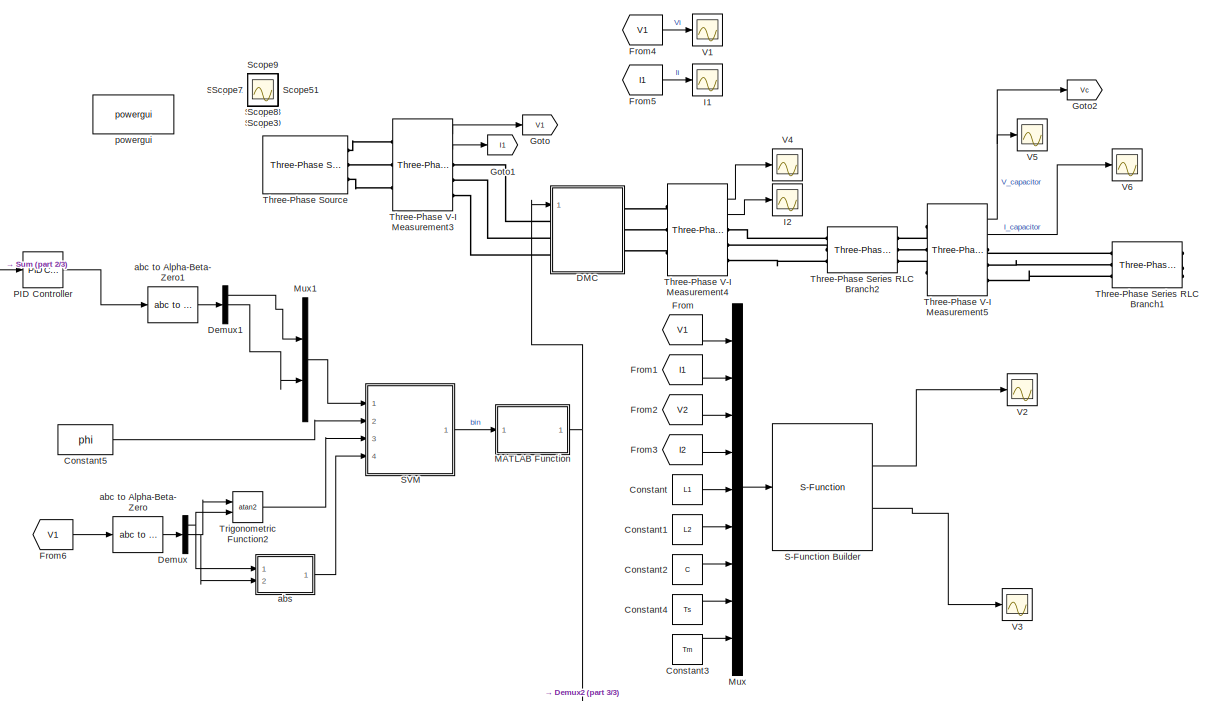
[diagram: root canvas - part 1/3, full width, middle band]
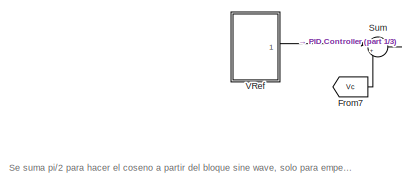
[diagram: root canvas - part 2/3, top left region]
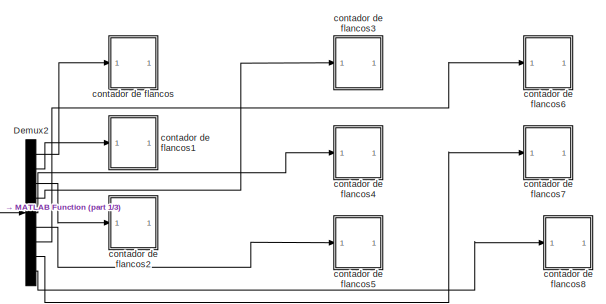
[diagram: root canvas - part 3/3, bottom right region]
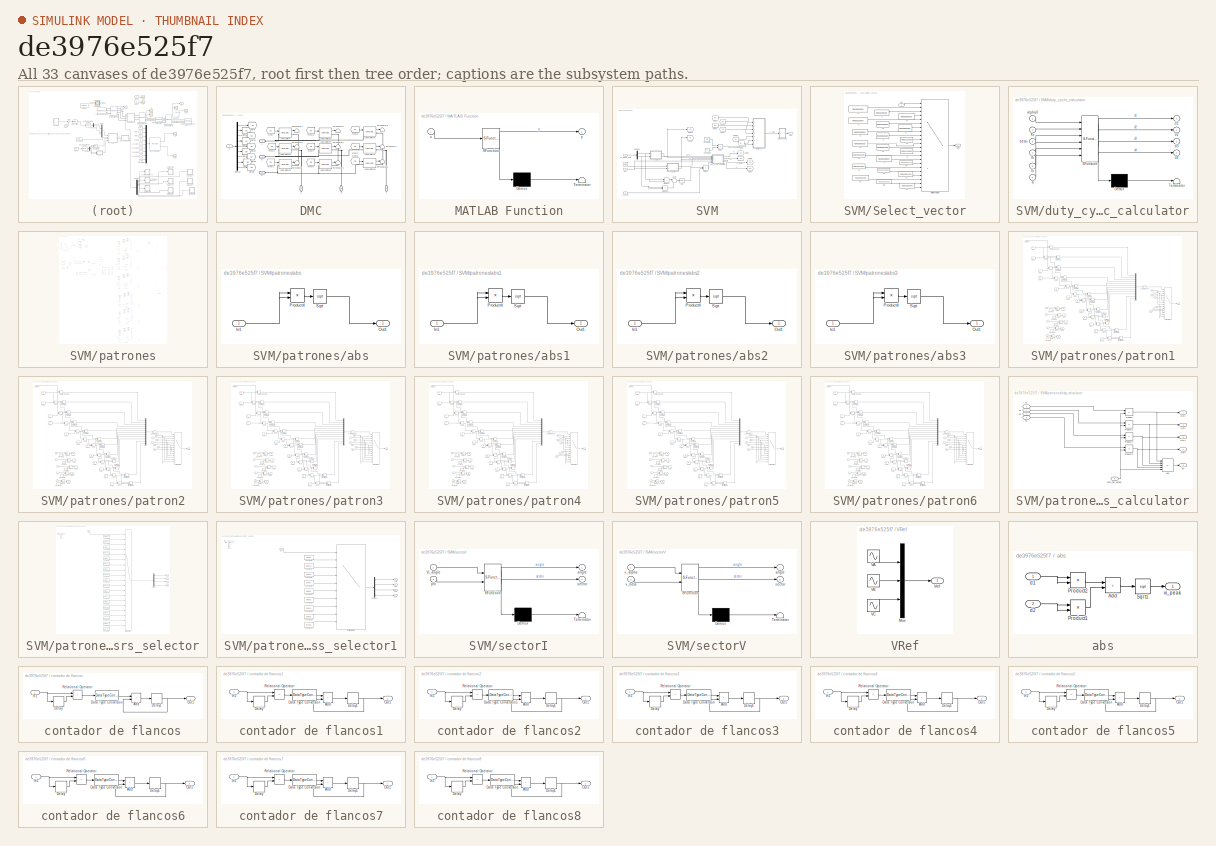
[diagram: thumbnail index - all 33 canvases of the model, root first then tree order]
MODEL slx_de3976e525f7
KIND model
CONFIG AbsTol = auto
CONFIG EnableMultiTasking = off
CONFIG FixedStep = Ts
CONFIG MaxStep = auto
CONFIG MinStep = auto
CONFIG RelTol = 1e-3
CONFIG SampleTimeConstraint = Unconstrained
CONFIG Solver = ode1
CONFIG SolverName = ode1
CONFIG StartTime = 0.0
CONFIG StopTime = t_sim
BLOCK [Constant] Constant
  Commented = on
  Value = L1
BLOCK [Constant] Constant1
  Commented = on
  Value = L2
BLOCK [Constant] Constant2
  Commented = on
  Value = C
BLOCK [Constant] Constant3
  Commented = on
  Value = Tm
BLOCK [Constant] Constant4
  Commented = on
  Value = Ts
BLOCK [Constant] Constant5
  Value = phi
BLOCK [SubSystem] DMC
  Ports = [1, 0, 0, 0, 0, 3, 3]
  RequestExecContextInheritance = off
BLOCK [PMIOPort] DMC/A
  Side = Left
BLOCK [PMIOPort] DMC/B
  Port = 2
  Side = Left
BLOCK [PMIOPort] DMC/C
  Port = 3
  Side = Left
BLOCK [Demux] DMC/Demux
  Outputs = 9
  Ports = [1, 9]
BLOCK [From] DMC/From
  GotoTag = S1
BLOCK [From] DMC/From1
  GotoTag = S2
BLOCK [From] DMC/From2
  GotoTag = S3
BLOCK [From] DMC/From3
  GotoTag = S4
BLOCK [From] DMC/From4
  GotoTag = S5
BLOCK [From] DMC/From5
  GotoTag = S6
BLOCK [From] DMC/From6
  GotoTag = S7
BLOCK [From] DMC/From7
  GotoTag = S8
BLOCK [From] DMC/From8
  GotoTag = S9
BLOCK [Goto] DMC/Goto
  GotoTag = S1
BLOCK [Goto] DMC/Goto1
  GotoTag = S2
BLOCK [Goto] DMC/Goto2
  GotoTag = S3
BLOCK [Goto] DMC/Goto3
  GotoTag = S4
BLOCK [Goto] DMC/Goto4
  GotoTag = S5
BLOCK [Goto] DMC/Goto5
  GotoTag = S6
BLOCK [Goto] DMC/Goto6
  GotoTag = S7
BLOCK [Goto] DMC/Goto7
  GotoTag = S8
BLOCK [Goto] DMC/Goto8
  GotoTag = S9
BLOCK [Reference] DMC/Ideal Switch  REF=powerlib/Power Electronics/Ideal Switch
  Ports = [1, 1, 0, 0, 0, 1, 1]
  SourceBlock = powerlib/Power Electronics/Ideal Switch
  SourceProductBaseCode = PS
  SourceType = Ideal Switch
BLOCK [Reference] DMC/Ideal Switch1  REF=powerlib/Power Electronics/Ideal Switch
  Ports = [1, 1, 0, 0, 0, 1, 1]
  SourceBlock = powerlib/Power Electronics/Ideal Switch
  SourceProductBaseCode = PS
  SourceType = Ideal Switch
BLOCK [Reference] DMC/Ideal Switch2  REF=powerlib/Power Electronics/Ideal Switch
  Ports = [1, 1, 0, 0, 0, 1, 1]
  SourceBlock = powerlib/Power Electronics/Ideal Switch
  SourceProductBaseCode = PS
  SourceType = Ideal Switch
BLOCK [Reference] DMC/Ideal Switch3  REF=powerlib/Power Electronics/Ideal Switch
  Ports = [1, 1, 0, 0, 0, 1, 1]
  SourceBlock = powerlib/Power Electronics/Ideal Switch
  SourceProductBaseCode = PS
  SourceType = Ideal Switch
BLOCK [Reference] DMC/Ideal Switch4  REF=powerlib/Power Electronics/Ideal Switch
  Ports = [1, 1, 0, 0, 0, 1, 1]
  SourceBlock = powerlib/Power Electronics/Ideal Switch
  SourceProductBaseCode = PS
  SourceType = Ideal Switch
BLOCK [Reference] DMC/Ideal Switch5  REF=powerlib/Power Electronics/Ideal Switch
  Ports = [1, 1, 0, 0, 0, 1, 1]
  SourceBlock = powerlib/Power Electronics/Ideal Switch
  SourceProductBaseCode = PS
  SourceType = Ideal Switch
BLOCK [Reference] DMC/Ideal Switch6  REF=powerlib/Power Electronics/Ideal Switch
  Ports = [1, 1, 0, 0, 0, 1, 1]
  SourceBlock = powerlib/Power Electronics/Ideal Switch
  SourceProductBaseCode = PS
  SourceType = Ideal Switch
BLOCK [Reference] DMC/Ideal Switch7  REF=powerlib/Power Electronics/Ideal Switch
  Ports = [1, 1, 0, 0, 0, 1, 1]
  SourceBlock = powerlib/Power Electronics/Ideal Switch
  SourceProductBaseCode = PS
  SourceType = Ideal Switch
BLOCK [Reference] DMC/Ideal Switch8  REF=powerlib/Power Electronics/Ideal Switch
  Ports = [1, 1, 0, 0, 0, 1, 1]
  SourceBlock = powerlib/Power Electronics/Ideal Switch
  SourceProductBaseCode = PS
  SourceType = Ideal Switch
BLOCK [Inport] DMC/S
BLOCK [Terminator] DMC/Terminator
BLOCK [Terminator] DMC/Terminator1
BLOCK [Terminator] DMC/Terminator2
BLOCK [Terminator] DMC/Terminator3
BLOCK [Terminator] DMC/Terminator4
BLOCK [Terminator] DMC/Terminator5
BLOCK [Terminator] DMC/Terminator6
BLOCK [Terminator] DMC/Terminator7
BLOCK [Terminator] DMC/Terminator8
BLOCK [PMIOPort] DMC/a
  Port = 4
  Side = Right
BLOCK [PMIOPort] DMC/b
  Port = 5
  Side = Right
BLOCK [PMIOPort] DMC/c
  Port = 6
  Side = Right
BLOCK [Demux] Demux
  Outputs = 3
  Ports = [1, 3]
BLOCK [Demux] Demux1
  Outputs = 3
  Ports = [1, 3]
BLOCK [Demux] Demux2
  Outputs = 9
  Ports = [1, 9]
BLOCK [From] From
  Commented = on
  GotoTag = V1
BLOCK [From] From1
  Commented = on
  GotoTag = I1
BLOCK [From] From2
  Commented = on
  GotoTag = V2
BLOCK [From] From3
  Commented = on
  GotoTag = I2
BLOCK [From] From4
  GotoTag = V1
BLOCK [From] From5
  GotoTag = I1
BLOCK [From] From6
  GotoTag = V1
BLOCK [From] From7
  GotoTag = Vc
BLOCK [Goto] Goto
  GotoTag = V1
BLOCK [Goto] Goto1
  GotoTag = I1
BLOCK [Goto] Goto2
  GotoTag = Vc
BLOCK [Scope] I1
  Floating = off
  NumInputPorts = 1
  Ports = [1]
  ScopeSpecificationString = Simulink.scopes.TimeScopeBlockCfg('CurrentConfiguration', extmgr.ConfigurationSet(extmgr.Configuration('Core','General UI',true),extmgr.Configuration('Core','Source UI',true),extmgr.Configuration('Sources','WiredSimulink',true,'DataLoggingVariableName','ScopeData2'),extmgr.Configuration('Visuals','Time Domain',true,'SerializedDisplays',{struct('MinYLimReal','-0.07222','MaxYLimReal','0.07546','YLab...<+1481ch>
BLOCK [Scope] I2
  Floating = off
  NumInputPorts = 1
  Ports = [1]
  ScopeSpecificationString = Simulink.scopes.TimeScopeBlockCfg('CurrentConfiguration', extmgr.ConfigurationSet(extmgr.Configuration('Core','General UI',true),extmgr.Configuration('Core','Source UI',true),extmgr.Configuration('Sources','WiredSimulink',true,'DataLoggingVariableName','ScopeData9'),extmgr.Configuration('Visuals','Time Domain',true,'SerializedDisplays',{struct('MinYLimReal','-0.03692','MaxYLimReal','0.03603','YLab...<+1576ch>
BLOCK [SubSystem] MATLAB Function
  ErrorFcn = Stateflow.Translate.translate
  PermitHierarchicalResolution = ExplicitOnly
  Ports = [1, 1]
  RequestExecContextInheritance = off
  SFBlockType = MATLAB Function
  TreatAsAtomicUnit = on
BLOCK [Demux] MATLAB Function/ Demux 
  Outputs = 1
  Ports = [1, 1]
BLOCK [S-Function] MATLAB Function/ SFunction 
  EnableBusSupport = off
  FunctionName = sf_sfun
  PortCounts = [1 2]
  Ports = [1, 2]
  SFcnIsStateOwnerBlock = off
  SFunctionDeploymentMode = off
  Tag = Stateflow S-Function micro2018b 4
BLOCK [Terminator] MATLAB Function/ Terminator 
BLOCK [Inport] MATLAB Function/u
BLOCK [Outport] MATLAB Function/y
BLOCK [Mux] Mux
  Commented = on
  DisplayOption = bar
  Inputs = 9
  Ports = [9, 1]
BLOCK [Mux] Mux1
  DisplayOption = bar
  Inputs = 2
  Ports = [2, 1]
BLOCK [Reference] PID Controller  REF=simulink/Continuous/PID Controller
  Ports = [1, 1]
  SourceBlock = simulink/Continuous/PID Controller
  SourceProductBaseCode = SL
  SourceType = PID 1dof
BLOCK [S-Function] S-Function Builder
  Commented = on
  CopyFcn = set_param(gcbh,'LinkStatus','none')
  EnableBusSupport = off
  FunctionName = control
  OpenFcn = sfunctionwizard(gcbh)
  Ports = [1, 2]
  SFcnIsStateOwnerBlock = off
  SFunctionDeploymentMode = off
  SFunctionModules = control_wrapper
BLOCK [SubSystem] SVM
  Ports = [4, 1]
  RequestExecContextInheritance = off
BLOCK [Constant] SVM/Constant5
  Value = Tm
BLOCK [Constant] SVM/Constant7
  Value = Ts
BLOCK [Demux] SVM/Demux2
  Outputs = 2
  Ports = [1, 2]
BLOCK [Product] SVM/Divide
  Inputs = */
  Ports = [2, 1]
BLOCK [Product] SVM/Divide2
  Inputs = */
  Ports = [2, 1]
BLOCK [From] SVM/From1
  GotoTag = d4
BLOCK [From] SVM/From10
  GotoTag = Kv
BLOCK [From] SVM/From2
  GotoTag = d3
BLOCK [From] SVM/From3
  GotoTag = d2
BLOCK [From] SVM/From4
  GotoTag = d1
BLOCK [From] SVM/From9
  GotoTag = Ki
BLOCK [Goto] SVM/Goto1
  GotoTag = d1
BLOCK [Goto] SVM/Goto10
  GotoTag = Kv
BLOCK [Goto] SVM/Goto2
  GotoTag = d2
BLOCK [Goto] SVM/Goto3
  GotoTag = d3
BLOCK [Goto] SVM/Goto4
  GotoTag = d4
BLOCK [Goto] SVM/Goto9
  GotoTag = Ki
BLOCK [Outport] SVM/Out1
BLOCK [Product] SVM/Product
  Ports = [2, 1]
BLOCK [Product] SVM/Product1
  Ports = [2, 1]
BLOCK [SubSystem] SVM/Select_vector
  Ports = [1, 1]
  RequestExecContextInheritance = off
BLOCK [Constant] SVM/Select_vector/+1
  Value = 0b100010010
BLOCK [Constant] SVM/Select_vector/+2
  Value = 0b010001001
BLOCK [Constant] SVM/Select_vector/+3
  Value = 0b001100100
BLOCK [Constant] SVM/Select_vector/+4
  Value = 0b010100010
BLOCK [Constant] SVM/Select_vector/+5
  Value = 0b001010001
BLOCK [Constant] SVM/Select_vector/+6
  Value = 0b100001100
BLOCK [Constant] SVM/Select_vector/+7
  Value = 0b010010100
BLOCK [Constant] SVM/Select_vector/+8
  Value = 0b001001010
BLOCK [Constant] SVM/Select_vector/+9
  Value = 0b100100001
BLOCK [Constant] SVM/Select_vector/-1
  Value = 0b010100100
BLOCK [Constant] SVM/Select_vector/-2
  Value = 0b001010010
BLOCK [Constant] SVM/Select_vector/-3
  Value = 0b100001001
BLOCK [Constant] SVM/Select_vector/-4
  Value = 0b100010100
BLOCK [Constant] SVM/Select_vector/-5
  Value = 0b010001010
BLOCK [Constant] SVM/Select_vector/-6
  Value = 0b001100001
BLOCK [Constant] SVM/Select_vector/-7
  Value = 0b100100010
BLOCK [Constant] SVM/Select_vector/-8
  Value = 0b010010001
BLOCK [Constant] SVM/Select_vector/-9
  Value = 0b001001100
BLOCK [Constant] SVM/Select_vector/0A
  Value = 0b100100100
BLOCK [Constant] SVM/Select_vector/0B
  Value = 0b010010010
BLOCK [Constant] SVM/Select_vector/0C
  Value = 0b001001001
BLOCK [Inport] SVM/Select_vector/In1
BLOCK [MultiPortSwitch] SVM/Select_vector/Multiport Switch
  DataPortIndices = {1,-1,2,-2,3,-3,4,-4,5,-5,6,-6,7,-7,8,-8,9,-9,19,20,21}
  DataPortOrder = Specify indices
  DiagnosticForDefault = Warning
  InputSameDT = off
  Inputs = 21
  Ports = [22, 1]
  SaturateOnIntegerOverflow = off
BLOCK [Outport] SVM/Select_vector/Out1
BLOCK [Sqrt] SVM/Sqrt
BLOCK [Sum] SVM/Sum1
  Inputs = |++
  Ports = [2, 1]
BLOCK [SubSystem] SVM/duty_cycle_calculator
  ErrorFcn = Stateflow.Translate.translate
  PermitHierarchicalResolution = ExplicitOnly
  Ports = [6, 4]
  RequestExecContextInheritance = off
  SFBlockType = MATLAB Function
  TreatAsAtomicUnit = on
BLOCK [Demux] SVM/duty_cycle_calculator/ Demux 
  Outputs = 1
  Ports = [1, 1]
BLOCK [S-Function] SVM/duty_cycle_calculator/ SFunction 
  EnableBusSupport = off
  FunctionName = sf_sfun
  PortCounts = [6 5]
  Ports = [6, 5]
  SFcnIsStateOwnerBlock = off
  SFunctionDeploymentMode = off
  Tag = Stateflow S-Function micro2018b 3
BLOCK [Terminator] SVM/duty_cycle_calculator/ Terminator 
BLOCK [Inport] SVM/duty_cycle_calculator/Ki
  Port = 4
BLOCK [Inport] SVM/duty_cycle_calculator/Kv
  Port = 2
BLOCK [Inport] SVM/duty_cycle_calculator/alpha0
BLOCK [Inport] SVM/duty_cycle_calculator/betai
  Port = 3
BLOCK [Outport] SVM/duty_cycle_calculator/d1
BLOCK [Outport] SVM/duty_cycle_calculator/d2
  Port = 2
BLOCK [Outport] SVM/duty_cycle_calculator/d3
  Port = 3
BLOCK [Outport] SVM/duty_cycle_calculator/d4
  Port = 4
BLOCK [Inport] SVM/duty_cycle_calculator/fii
  Port = 5
BLOCK [Inport] SVM/duty_cycle_calculator/q
  Port = 6
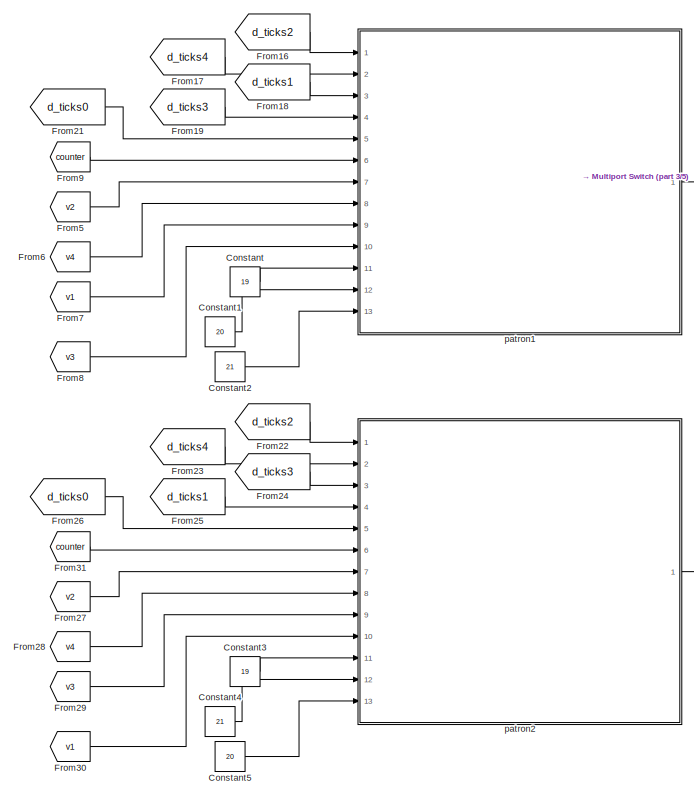
[diagram: SVM/patrones - part 1/5, top center region]
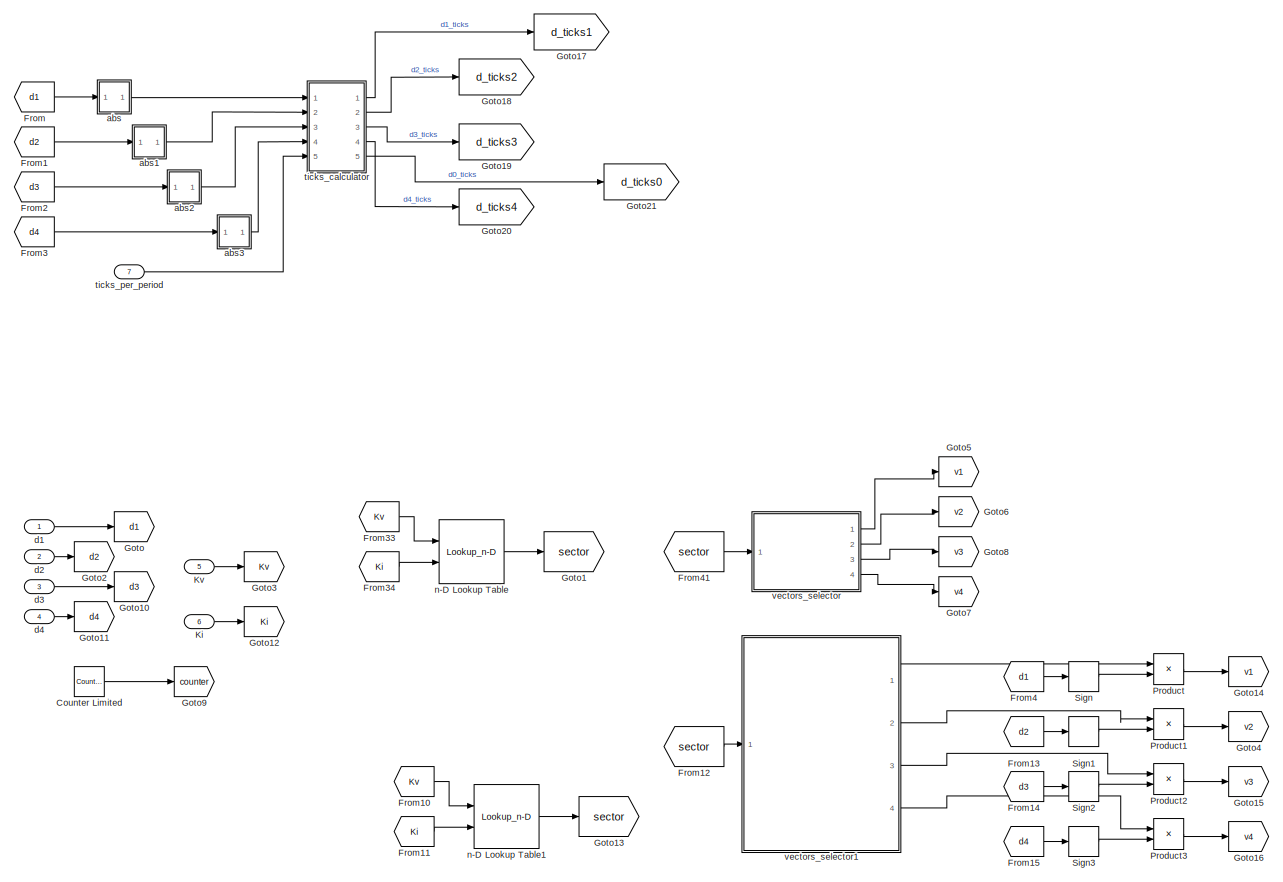
[diagram: SVM/patrones - part 2/5, top left region]
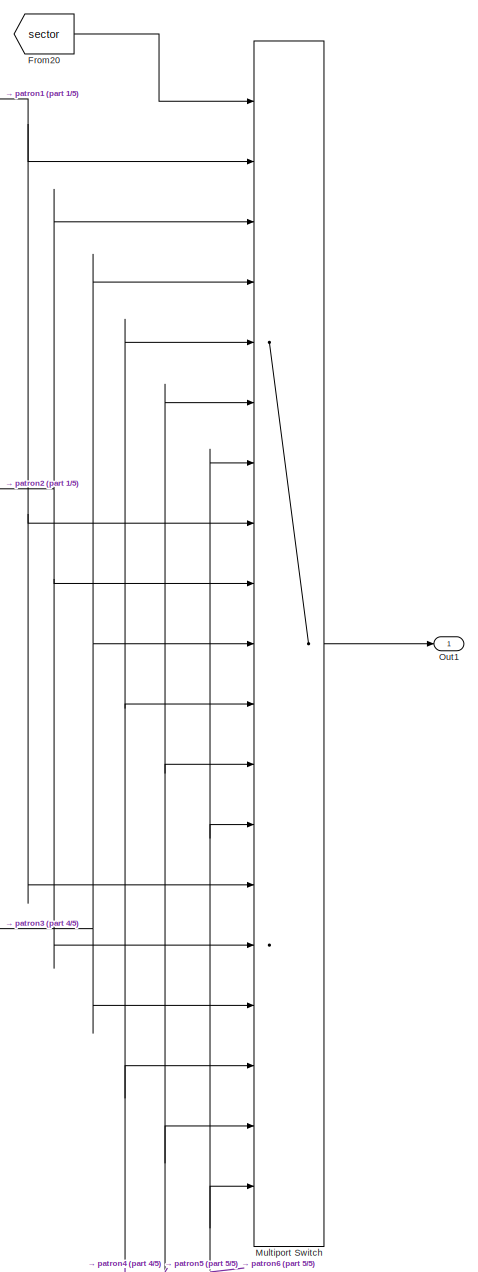
[diagram: SVM/patrones - part 3/5, top right region]
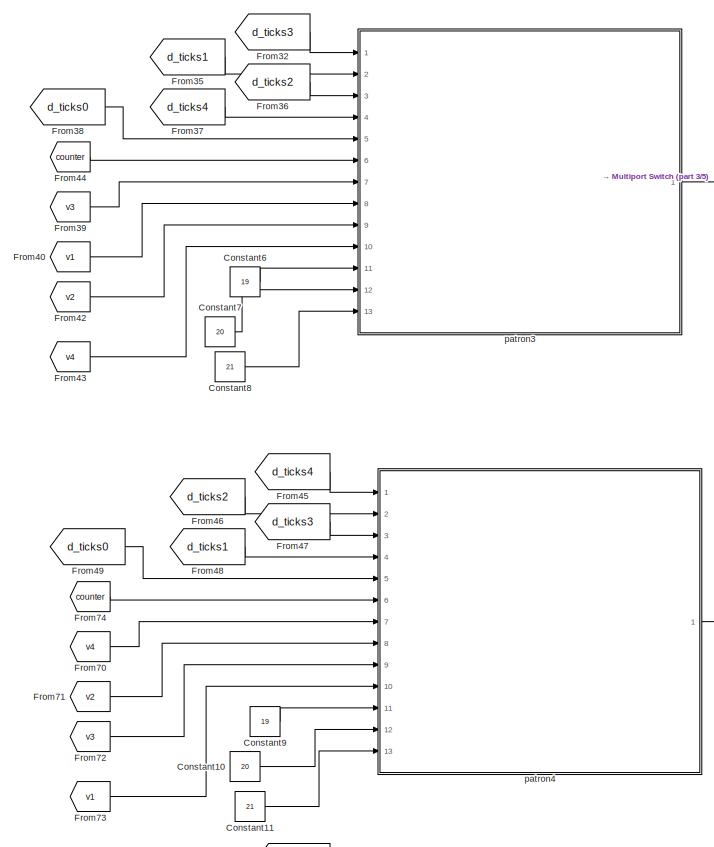
[diagram: SVM/patrones - part 4/5, central region]
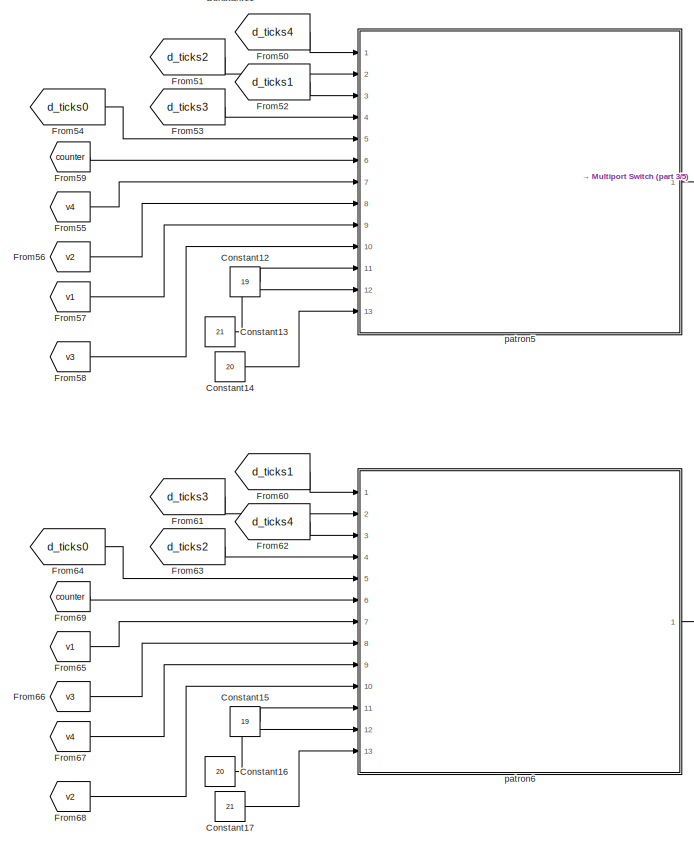
[diagram: SVM/patrones - part 5/5, bottom center region]
BLOCK [SubSystem] SVM/patrones
  Ports = [7, 1]
  RequestExecContextInheritance = off
BLOCK [Constant] SVM/patrones/Constant
  Value = 19
BLOCK [Constant] SVM/patrones/Constant1
  Value = 20
BLOCK [Constant] SVM/patrones/Constant10
  Value = 20
BLOCK [Constant] SVM/patrones/Constant11
  Value = 21
BLOCK [Constant] SVM/patrones/Constant12
  Value = 19
BLOCK [Constant] SVM/patrones/Constant13
  Value = 21
BLOCK [Constant] SVM/patrones/Constant14
  Value = 20
BLOCK [Constant] SVM/patrones/Constant15
  Value = 19
BLOCK [Constant] SVM/patrones/Constant16
  Value = 20
BLOCK [Constant] SVM/patrones/Constant17
  Value = 21
BLOCK [Constant] SVM/patrones/Constant2
  Value = 21
BLOCK [Constant] SVM/patrones/Constant3
  Value = 19
BLOCK [Constant] SVM/patrones/Constant4
  Value = 21
BLOCK [Constant] SVM/patrones/Constant5
  Value = 20
BLOCK [Constant] SVM/patrones/Constant6
  Value = 19
BLOCK [Constant] SVM/patrones/Constant7
  Value = 20
BLOCK [Constant] SVM/patrones/Constant8
  Value = 21
BLOCK [Constant] SVM/patrones/Constant9
  Value = 19
BLOCK [Reference] SVM/patrones/Counter Limited  REF=hdlsllib/Sources/Counter
Limited
  Ports = [0, 1]
  SourceBlock = hdlsllib/Sources/Counter\nLimited
  SourceProductBaseCode = SL
  SourceType = Counter Limited
BLOCK [From] SVM/patrones/From
  GotoTag = d1
BLOCK [From] SVM/patrones/From1
  GotoTag = d2
BLOCK [From] SVM/patrones/From10
  Commented = on
  GotoTag = Kv
BLOCK [From] SVM/patrones/From11
  Commented = on
  GotoTag = Ki
BLOCK [From] SVM/patrones/From12
  Commented = on
  GotoTag = sector
BLOCK [From] SVM/patrones/From13
  Commented = on
  GotoTag = d2
BLOCK [From] SVM/patrones/From14
  Commented = on
  GotoTag = d3
BLOCK [From] SVM/patrones/From15
  Commented = on
  GotoTag = d4
BLOCK [From] SVM/patrones/From16
  GotoTag = d_ticks2
BLOCK [From] SVM/patrones/From17
  GotoTag = d_ticks4
BLOCK [From] SVM/patrones/From18
  GotoTag = d_ticks1
BLOCK [From] SVM/patrones/From19
  GotoTag = d_ticks3
BLOCK [From] SVM/patrones/From2
  GotoTag = d3
BLOCK [From] SVM/patrones/From20
  GotoTag = sector
BLOCK [From] SVM/patrones/From21
  GotoTag = d_ticks0
BLOCK [From] SVM/patrones/From22
  GotoTag = d_ticks2
BLOCK [From] SVM/patrones/From23
  GotoTag = d_ticks4
BLOCK [From] SVM/patrones/From24
  GotoTag = d_ticks3
BLOCK [From] SVM/patrones/From25
  GotoTag = d_ticks1
BLOCK [From] SVM/patrones/From26
  GotoTag = d_ticks0
BLOCK [From] SVM/patrones/From27
  GotoTag = v2
BLOCK [From] SVM/patrones/From28
  GotoTag = v4
BLOCK [From] SVM/patrones/From29
  GotoTag = v3
BLOCK [From] SVM/patrones/From3
  GotoTag = d4
BLOCK [From] SVM/patrones/From30
  GotoTag = v1
BLOCK [From] SVM/patrones/From31
  GotoTag = counter
BLOCK [From] SVM/patrones/From32
  GotoTag = d_ticks3
BLOCK [From] SVM/patrones/From33
  GotoTag = Kv
BLOCK [From] SVM/patrones/From34
  GotoTag = Ki
BLOCK [From] SVM/patrones/From35
  GotoTag = d_ticks1
BLOCK [From] SVM/patrones/From36
  GotoTag = d_ticks2
BLOCK [From] SVM/patrones/From37
  GotoTag = d_ticks4
BLOCK [From] SVM/patrones/From38
  GotoTag = d_ticks0
BLOCK [From] SVM/patrones/From39
  GotoTag = v3
BLOCK [From] SVM/patrones/From4
  Commented = on
  GotoTag = d1
BLOCK [From] SVM/patrones/From40
  GotoTag = v1
BLOCK [From] SVM/patrones/From41
  GotoTag = sector
BLOCK [From] SVM/patrones/From42
  GotoTag = v2
BLOCK [From] SVM/patrones/From43
  GotoTag = v4
BLOCK [From] SVM/patrones/From44
  GotoTag = counter
BLOCK [From] SVM/patrones/From45
  GotoTag = d_ticks4
BLOCK [From] SVM/patrones/From46
  GotoTag = d_ticks2
BLOCK [From] SVM/patrones/From47
  GotoTag = d_ticks3
BLOCK [From] SVM/patrones/From48
  GotoTag = d_ticks1
BLOCK [From] SVM/patrones/From49
  GotoTag = d_ticks0
BLOCK [From] SVM/patrones/From5
  GotoTag = v2
BLOCK [From] SVM/patrones/From50
  GotoTag = d_ticks4
BLOCK [From] SVM/patrones/From51
  GotoTag = d_ticks2
BLOCK [From] SVM/patrones/From52
  GotoTag = d_ticks1
BLOCK [From] SVM/patrones/From53
  GotoTag = d_ticks3
BLOCK [From] SVM/patrones/From54
  GotoTag = d_ticks0
BLOCK [From] SVM/patrones/From55
  GotoTag = v4
BLOCK [From] SVM/patrones/From56
  GotoTag = v2
BLOCK [From] SVM/patrones/From57
  GotoTag = v1
BLOCK [From] SVM/patrones/From58
  GotoTag = v3
BLOCK [From] SVM/patrones/From59
  GotoTag = counter
BLOCK [From] SVM/patrones/From6
  GotoTag = v4
BLOCK [From] SVM/patrones/From60
  GotoTag = d_ticks1
BLOCK [From] SVM/patrones/From61
  GotoTag = d_ticks3
BLOCK [From] SVM/patrones/From62
  GotoTag = d_ticks4
BLOCK [From] SVM/patrones/From63
  GotoTag = d_ticks2
BLOCK [From] SVM/patrones/From64
  GotoTag = d_ticks0
BLOCK [From] SVM/patrones/From65
  GotoTag = v1
BLOCK [From] SVM/patrones/From66
  GotoTag = v3
BLOCK [From] SVM/patrones/From67
  GotoTag = v4
BLOCK [From] SVM/patrones/From68
  GotoTag = v2
BLOCK [From] SVM/patrones/From69
  GotoTag = counter
BLOCK [From] SVM/patrones/From7
  GotoTag = v1
BLOCK [From] SVM/patrones/From70
  GotoTag = v4
BLOCK [From] SVM/patrones/From71
  GotoTag = v2
BLOCK [From] SVM/patrones/From72
  GotoTag = v3
BLOCK [From] SVM/patrones/From73
  GotoTag = v1
BLOCK [From] SVM/patrones/From74
  GotoTag = counter
BLOCK [From] SVM/patrones/From8
  GotoTag = v3
BLOCK [From] SVM/patrones/From9
  GotoTag = counter
BLOCK [Goto] SVM/patrones/Goto
  GotoTag = d1
BLOCK [Goto] SVM/patrones/Goto1
  GotoTag = sector
BLOCK [Goto] SVM/patrones/Goto10
  GotoTag = d3
BLOCK [Goto] SVM/patrones/Goto11
  GotoTag = d4
BLOCK [Goto] SVM/patrones/Goto12
  GotoTag = Ki
BLOCK [Goto] SVM/patrones/Goto13
  Commented = on
  GotoTag = sector
BLOCK [Goto] SVM/patrones/Goto14
  Commented = on
  GotoTag = v1
BLOCK [Goto] SVM/patrones/Goto15
  Commented = on
  GotoTag = v3
BLOCK [Goto] SVM/patrones/Goto16
  Commented = on
  GotoTag = v4
BLOCK [Goto] SVM/patrones/Goto17
  GotoTag = d_ticks1
BLOCK [Goto] SVM/patrones/Goto18
  GotoTag = d_ticks2
BLOCK [Goto] SVM/patrones/Goto19
  GotoTag = d_ticks3
BLOCK [Goto] SVM/patrones/Goto2
  GotoTag = d2
BLOCK [Goto] SVM/patrones/Goto20
  GotoTag = d_ticks4
BLOCK [Goto] SVM/patrones/Goto21
  GotoTag = d_ticks0
BLOCK [Goto] SVM/patrones/Goto3
  GotoTag = Kv
BLOCK [Goto] SVM/patrones/Goto4
  Commented = on
  GotoTag = v2
BLOCK [Goto] SVM/patrones/Goto5
  GotoTag = v1
BLOCK [Goto] SVM/patrones/Goto6
  GotoTag = v2
BLOCK [Goto] SVM/patrones/Goto7
  GotoTag = v4
BLOCK [Goto] SVM/patrones/Goto8
  GotoTag = v3
BLOCK [Goto] SVM/patrones/Goto9
  GotoTag = counter
BLOCK [Inport] SVM/patrones/Ki
  Port = 6
BLOCK [Inport] SVM/patrones/Kv
  Port = 5
BLOCK [MultiPortSwitch] SVM/patrones/Multiport Switch
  InputSameDT = off
  Inputs = 18
  Ports = [19, 1]
  SaturateOnIntegerOverflow = off
BLOCK [Outport] SVM/patrones/Out1
BLOCK [Product] SVM/patrones/Product
  Commented = on
  Ports = [2, 1]
BLOCK [Product] SVM/patrones/Product1
  Commented = on
  Ports = [2, 1]
BLOCK [Product] SVM/patrones/Product2
  Commented = on
  Ports = [2, 1]
BLOCK [Product] SVM/patrones/Product3
  Commented = on
  Ports = [2, 1]
BLOCK [Signum] SVM/patrones/Sign
  Commented = on
BLOCK [Signum] SVM/patrones/Sign1
  Commented = on
BLOCK [Signum] SVM/patrones/Sign2
  Commented = on
BLOCK [Signum] SVM/patrones/Sign3
  Commented = on
BLOCK [SubSystem] SVM/patrones/abs
  Ports = [1, 1]
  RequestExecContextInheritance = off
BLOCK [Inport] SVM/patrones/abs/In1
BLOCK [Outport] SVM/patrones/abs/Out1
BLOCK [Product] SVM/patrones/abs/Product4
  Ports = [2, 1]
BLOCK [Sqrt] SVM/patrones/abs/Sqrt
BLOCK [SubSystem] SVM/patrones/abs1
  Ports = [1, 1]
  RequestExecContextInheritance = off
BLOCK [Inport] SVM/patrones/abs1/In1
BLOCK [Outport] SVM/patrones/abs1/Out1
BLOCK [Product] SVM/patrones/abs1/Product4
  Ports = [2, 1]
BLOCK [Sqrt] SVM/patrones/abs1/Sqrt
BLOCK [SubSystem] SVM/patrones/abs2
  Ports = [1, 1]
  RequestExecContextInheritance = off
BLOCK [Inport] SVM/patrones/abs2/In1
BLOCK [Outport] SVM/patrones/abs2/Out1
BLOCK [Product] SVM/patrones/abs2/Product4
  Ports = [2, 1]
BLOCK [Sqrt] SVM/patrones/abs2/Sqrt
BLOCK [SubSystem] SVM/patrones/abs3
  Ports = [1, 1]
  RequestExecContextInheritance = off
BLOCK [Inport] SVM/patrones/abs3/In1
BLOCK [Outport] SVM/patrones/abs3/Out1
BLOCK [Product] SVM/patrones/abs3/Product4
  Ports = [2, 1]
BLOCK [Sqrt] SVM/patrones/abs3/Sqrt
BLOCK [Inport] SVM/patrones/d1
BLOCK [Inport] SVM/patrones/d2
  Port = 2
BLOCK [Inport] SVM/patrones/d3
  Port = 3
BLOCK [Inport] SVM/patrones/d4
  Port = 4
BLOCK [Lookup_n-D] SVM/patrones/n-D Lookup Table
  BreakpointsForDimension1 = [1;2;3;4;5;6]
  BreakpointsForDimension1FirstPoint = 10
  BreakpointsForDimension1Spacing = 12
  BreakpointsForDimension2 = [1;2;3;4;5;6]
  BreakpointsForDimension2FirstPoint = 10
  BreakpointsForDimension2Spacing = 12
  BreakpointsForDimension3 = [5, 7]
  DiagnosticForOutOfRangeInput = Warning
  IndexSearchMethod = Evenly spaced points
  InternalRulePriority = Speed
  InterpMethod = Flat
  LookupTableObject = ''
  Ports = [2, 1]
  RndMeth = Simplest
  Table = [1 2 3 10 11 12;4 5 6 13 14 15;7 8 9 16 17 18;10 11 12 1 2 3;13 14 15 4 5 6;16 17 18 7 8 9]
BLOCK [Lookup_n-D] SVM/patrones/n-D Lookup Table1
  BreakpointsForDimension1 = [1;2;3;4;5;6]
  BreakpointsForDimension1FirstPoint = 10
  BreakpointsForDimension1Spacing = 12
  BreakpointsForDimension2 = [1;2;3;4;5;6]
  BreakpointsForDimension2FirstPoint = 10
  BreakpointsForDimension2Spacing = 12
  BreakpointsForDimension3 = [5, 7]
  Commented = on
  DiagnosticForOutOfRangeInput = Warning
  IndexSearchMethod = Evenly spaced points
  InternalRulePriority = Speed
  InterpMethod = Flat
  LookupTableObject = ''
  Ports = [2, 1]
  RndMeth = Simplest
  Table = [1 2 3 1 2 3;4 5 6 4 5 6;7 8 9 7 8 9;1 2 3 1 2 3;4 5 6 4 5 6;7 8 9 7 8 9]
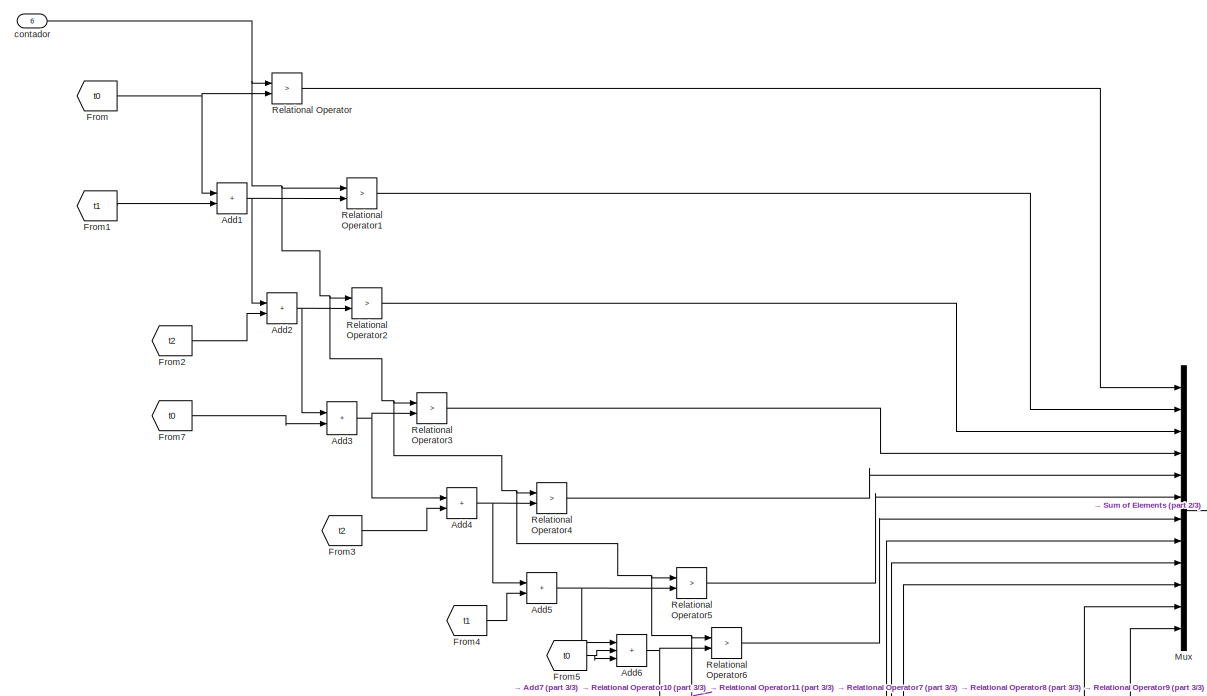
[diagram: SVM/patrones/patron1 - part 1/3, top center region]
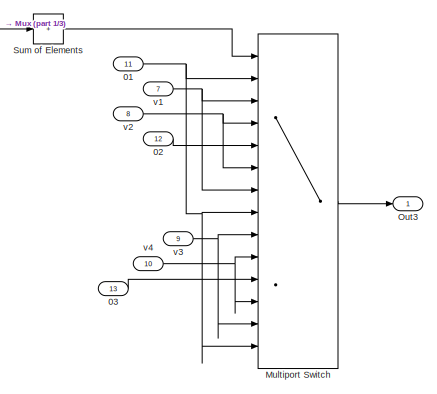
[diagram: SVM/patrones/patron1 - part 2/3, middle right region]
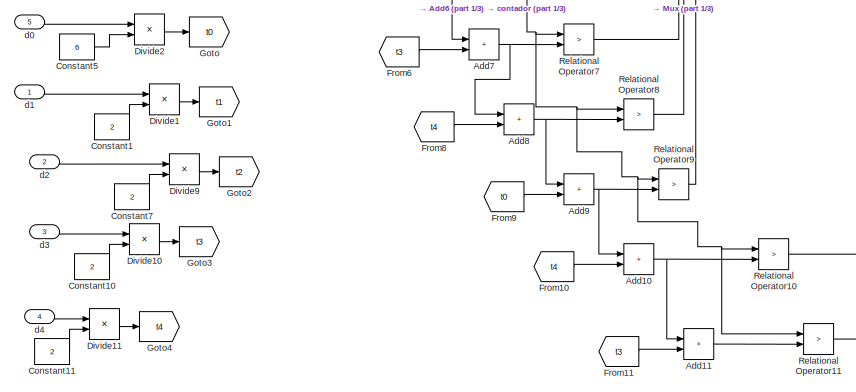
[diagram: SVM/patrones/patron1 - part 3/3, bottom center region]
BLOCK [SubSystem] SVM/patrones/patron1
  Ports = [13, 1]
  RequestExecContextInheritance = off
BLOCK [Inport] SVM/patrones/patron1/01
  Port = 11
BLOCK [Inport] SVM/patrones/patron1/02
  Port = 12
BLOCK [Inport] SVM/patrones/patron1/03
  Port = 13
BLOCK [Sum] SVM/patrones/patron1/Add1
  IconShape = rectangular
  Ports = [2, 1]
BLOCK [Sum] SVM/patrones/patron1/Add10
  IconShape = rectangular
  Ports = [2, 1]
BLOCK [Sum] SVM/patrones/patron1/Add11
  IconShape = rectangular
  Ports = [2, 1]
BLOCK [Sum] SVM/patrones/patron1/Add2
  IconShape = rectangular
  Ports = [2, 1]
BLOCK [Sum] SVM/patrones/patron1/Add3
  IconShape = rectangular
  Ports = [2, 1]
BLOCK [Sum] SVM/patrones/patron1/Add4
  IconShape = rectangular
  Ports = [2, 1]
BLOCK [Sum] SVM/patrones/patron1/Add5
  IconShape = rectangular
  Ports = [2, 1]
BLOCK [Sum] SVM/patrones/patron1/Add6
  IconShape = rectangular
  Inputs = +++
  Ports = [3, 1]
BLOCK [Sum] SVM/patrones/patron1/Add7
  IconShape = rectangular
  Ports = [2, 1]
BLOCK [Sum] SVM/patrones/patron1/Add8
  IconShape = rectangular
  Ports = [2, 1]
BLOCK [Sum] SVM/patrones/patron1/Add9
  IconShape = rectangular
  Ports = [2, 1]
BLOCK [Constant] SVM/patrones/patron1/Constant1
  Value = 2
BLOCK [Constant] SVM/patrones/patron1/Constant10
  Value = 2
BLOCK [Constant] SVM/patrones/patron1/Constant11
  Value = 2
BLOCK [Constant] SVM/patrones/patron1/Constant5
  Value = 6
BLOCK [Constant] SVM/patrones/patron1/Constant7
  Value = 2
BLOCK [Product] SVM/patrones/patron1/Divide1
  Inputs = */
  Ports = [2, 1]
BLOCK [Product] SVM/patrones/patron1/Divide10
  Inputs = */
  Ports = [2, 1]
BLOCK [Product] SVM/patrones/patron1/Divide11
  Inputs = */
  Ports = [2, 1]
BLOCK [Product] SVM/patrones/patron1/Divide2
  Inputs = */
  Ports = [2, 1]
BLOCK [Product] SVM/patrones/patron1/Divide9
  Inputs = */
  Ports = [2, 1]
BLOCK [From] SVM/patrones/patron1/From
  GotoTag = t0
BLOCK [From] SVM/patrones/patron1/From1
  GotoTag = t1
BLOCK [From] SVM/patrones/patron1/From10
  GotoTag = t4
BLOCK [From] SVM/patrones/patron1/From11
  GotoTag = t3
BLOCK [From] SVM/patrones/patron1/From2
  GotoTag = t2
BLOCK [From] SVM/patrones/patron1/From3
  GotoTag = t2
BLOCK [From] SVM/patrones/patron1/From4
  GotoTag = t1
BLOCK [From] SVM/patrones/patron1/From5
  GotoTag = t0
BLOCK [From] SVM/patrones/patron1/From6
  GotoTag = t3
BLOCK [From] SVM/patrones/patron1/From7
  GotoTag = t0
BLOCK [From] SVM/patrones/patron1/From8
  GotoTag = t4
BLOCK [From] SVM/patrones/patron1/From9
  GotoTag = t0
BLOCK [Goto] SVM/patrones/patron1/Goto
  GotoTag = t0
BLOCK [Goto] SVM/patrones/patron1/Goto1
  GotoTag = t1
BLOCK [Goto] SVM/patrones/patron1/Goto2
  GotoTag = t2
BLOCK [Goto] SVM/patrones/patron1/Goto3
  GotoTag = t3
BLOCK [Goto] SVM/patrones/patron1/Goto4
  GotoTag = t4
BLOCK [MultiPortSwitch] SVM/patrones/patron1/Multiport Switch
  DataPortOrder = Zero-based contiguous
  InputSameDT = off
  Inputs = 13
  Ports = [14, 1]
  SaturateOnIntegerOverflow = off
  zeroidx = on
BLOCK [Mux] SVM/patrones/patron1/Mux
  DisplayOption = bar
  Inputs = 12
  Ports = [12, 1]
BLOCK [Outport] SVM/patrones/patron1/Out3
BLOCK [RelationalOperator] SVM/patrones/patron1/Relational Operator
  InputSameDT = off
  Operator = >
  OutDataTypeStr = boolean
  Ports = [2, 1]
  RndMeth = Simplest
BLOCK [RelationalOperator] SVM/patrones/patron1/Relational Operator1
  InputSameDT = off
  Operator = >
  OutDataTypeStr = boolean
  Ports = [2, 1]
  RndMeth = Simplest
BLOCK [RelationalOperator] SVM/patrones/patron1/Relational Operator10
  InputSameDT = off
  Operator = >
  OutDataTypeStr = boolean
  Ports = [2, 1]
  RndMeth = Simplest
BLOCK [RelationalOperator] SVM/patrones/patron1/Relational Operator11
  InputSameDT = off
  Operator = >
  OutDataTypeStr = boolean
  Ports = [2, 1]
  RndMeth = Simplest
BLOCK [RelationalOperator] SVM/patrones/patron1/Relational Operator2
  InputSameDT = off
  Operator = >
  OutDataTypeStr = boolean
  Ports = [2, 1]
  RndMeth = Simplest
BLOCK [RelationalOperator] SVM/patrones/patron1/Relational Operator3
  InputSameDT = off
  Operator = >
  OutDataTypeStr = boolean
  Ports = [2, 1]
  RndMeth = Simplest
BLOCK [RelationalOperator] SVM/patrones/patron1/Relational Operator4
  InputSameDT = off
  Operator = >
  OutDataTypeStr = boolean
  Ports = [2, 1]
  RndMeth = Simplest
BLOCK [RelationalOperator] SVM/patrones/patron1/Relational Operator5
  InputSameDT = off
  Operator = >
  OutDataTypeStr = boolean
  Ports = [2, 1]
  RndMeth = Simplest
BLOCK [RelationalOperator] SVM/patrones/patron1/Relational Operator6
  InputSameDT = off
  Operator = >
  OutDataTypeStr = boolean
  Ports = [2, 1]
  RndMeth = Simplest
BLOCK [RelationalOperator] SVM/patrones/patron1/Relational Operator7
  InputSameDT = off
  Operator = >
  OutDataTypeStr = boolean
  Ports = [2, 1]
  RndMeth = Simplest
BLOCK [RelationalOperator] SVM/patrones/patron1/Relational Operator8
  InputSameDT = off
  Operator = >
  OutDataTypeStr = boolean
  Ports = [2, 1]
  RndMeth = Simplest
BLOCK [RelationalOperator] SVM/patrones/patron1/Relational Operator9
  InputSameDT = off
  Operator = >
  OutDataTypeStr = boolean
  Ports = [2, 1]
  RndMeth = Simplest
BLOCK [Sum] SVM/patrones/patron1/Sum of Elements
  IconShape = rectangular
  Inputs = +
  Ports = [1, 1]
BLOCK [Inport] SVM/patrones/patron1/contador
  Port = 6
BLOCK [Inport] SVM/patrones/patron1/d0
  Port = 5
BLOCK [Inport] SVM/patrones/patron1/d1
BLOCK [Inport] SVM/patrones/patron1/d2
  Port = 2
BLOCK [Inport] SVM/patrones/patron1/d3
  Port = 3
BLOCK [Inport] SVM/patrones/patron1/d4
  Port = 4
BLOCK [Inport] SVM/patrones/patron1/v1
  Port = 7
BLOCK [Inport] SVM/patrones/patron1/v2
  Port = 8
BLOCK [Inport] SVM/patrones/patron1/v3
  Port = 9
BLOCK [Inport] SVM/patrones/patron1/v4
  Port = 10
BLOCK [SubSystem] SVM/patrones/patron2
  Ports = [13, 1]
  RequestExecContextInheritance = off
BLOCK [Inport] SVM/patrones/patron2/01
  Port = 11
BLOCK [Inport] SVM/patrones/patron2/02
  Port = 12
BLOCK [Inport] SVM/patrones/patron2/03
  Port = 13
BLOCK [Sum] SVM/patrones/patron2/Add1
  IconShape = rectangular
  Ports = [2, 1]
BLOCK [Sum] SVM/patrones/patron2/Add10
  IconShape = rectangular
  Ports = [2, 1]
BLOCK [Sum] SVM/patrones/patron2/Add11
  IconShape = rectangular
  Ports = [2, 1]
BLOCK [Sum] SVM/patrones/patron2/Add2
  IconShape = rectangular
  Ports = [2, 1]
BLOCK [Sum] SVM/patrones/patron2/Add3
  IconShape = rectangular
  Ports = [2, 1]
BLOCK [Sum] SVM/patrones/patron2/Add4
  IconShape = rectangular
  Ports = [2, 1]
BLOCK [Sum] SVM/patrones/patron2/Add5
  IconShape = rectangular
  Ports = [2, 1]
BLOCK [Sum] SVM/patrones/patron2/Add6
  IconShape = rectangular
  Inputs = +++
  Ports = [3, 1]
BLOCK [Sum] SVM/patrones/patron2/Add7
  IconShape = rectangular
  Ports = [2, 1]
BLOCK [Sum] SVM/patrones/patron2/Add8
  IconShape = rectangular
  Ports = [2, 1]
BLOCK [Sum] SVM/patrones/patron2/Add9
  IconShape = rectangular
  Ports = [2, 1]
BLOCK [Constant] SVM/patrones/patron2/Constant1
  Value = 2
BLOCK [Constant] SVM/patrones/patron2/Constant10
  Value = 2
BLOCK [Constant] SVM/patrones/patron2/Constant11
  Value = 2
BLOCK [Constant] SVM/patrones/patron2/Constant5
  Value = 6
BLOCK [Constant] SVM/patrones/patron2/Constant7
  Value = 2
BLOCK [Product] SVM/patrones/patron2/Divide1
  Inputs = */
  Ports = [2, 1]
BLOCK [Product] SVM/patrones/patron2/Divide10
  Inputs = */
  Ports = [2, 1]
BLOCK [Product] SVM/patrones/patron2/Divide11
  Inputs = */
  Ports = [2, 1]
BLOCK [Product] SVM/patrones/patron2/Divide2
  Inputs = */
  Ports = [2, 1]
BLOCK [Product] SVM/patrones/patron2/Divide9
  Inputs = */
  Ports = [2, 1]
BLOCK [From] SVM/patrones/patron2/From
  GotoTag = t0
BLOCK [From] SVM/patrones/patron2/From1
  GotoTag = t1
BLOCK [From] SVM/patrones/patron2/From10
  GotoTag = t2
BLOCK [From] SVM/patrones/patron2/From11
  GotoTag = t1
BLOCK [From] SVM/patrones/patron2/From2
  GotoTag = t2
BLOCK [From] SVM/patrones/patron2/From3
  GotoTag = t3
BLOCK [From] SVM/patrones/patron2/From4
  GotoTag = t4
BLOCK [From] SVM/patrones/patron2/From5
  GotoTag = t0
BLOCK [From] SVM/patrones/patron2/From6
  GotoTag = t4
BLOCK [From] SVM/patrones/patron2/From7
  GotoTag = t0
BLOCK [From] SVM/patrones/patron2/From8
  GotoTag = t3
BLOCK [From] SVM/patrones/patron2/From9
  GotoTag = t0
BLOCK [Goto] SVM/patrones/patron2/Goto
  GotoTag = t0
BLOCK [Goto] SVM/patrones/patron2/Goto1
  GotoTag = t1
BLOCK [Goto] SVM/patrones/patron2/Goto2
  GotoTag = t2
BLOCK [Goto] SVM/patrones/patron2/Goto3
  GotoTag = t3
BLOCK [Goto] SVM/patrones/patron2/Goto4
  GotoTag = t4
BLOCK [MultiPortSwitch] SVM/patrones/patron2/Multiport Switch
  DataPortOrder = Zero-based contiguous
  InputSameDT = off
  Inputs = 13
  Ports = [14, 1]
  SaturateOnIntegerOverflow = off
  zeroidx = on
BLOCK [Mux] SVM/patrones/patron2/Mux
  DisplayOption = bar
  Inputs = 12
  Ports = [12, 1]
BLOCK [Outport] SVM/patrones/patron2/Out3
BLOCK [RelationalOperator] SVM/patrones/patron2/Relational Operator
  InputSameDT = off
  Operator = >
  OutDataTypeStr = boolean
  Ports = [2, 1]
  RndMeth = Simplest
BLOCK [RelationalOperator] SVM/patrones/patron2/Relational Operator1
  InputSameDT = off
  Operator = >
  OutDataTypeStr = boolean
  Ports = [2, 1]
  RndMeth = Simplest
BLOCK [RelationalOperator] SVM/patrones/patron2/Relational Operator10
  InputSameDT = off
  Operator = >
  OutDataTypeStr = boolean
  Ports = [2, 1]
  RndMeth = Simplest
BLOCK [RelationalOperator] SVM/patrones/patron2/Relational Operator11
  InputSameDT = off
  Operator = >
  OutDataTypeStr = boolean
  Ports = [2, 1]
  RndMeth = Simplest
BLOCK [RelationalOperator] SVM/patrones/patron2/Relational Operator2
  InputSameDT = off
  Operator = >
  OutDataTypeStr = boolean
  Ports = [2, 1]
  RndMeth = Simplest
BLOCK [RelationalOperator] SVM/patrones/patron2/Relational Operator3
  InputSameDT = off
  Operator = >
  OutDataTypeStr = boolean
  Ports = [2, 1]
  RndMeth = Simplest
BLOCK [RelationalOperator] SVM/patrones/patron2/Relational Operator4
  InputSameDT = off
  Operator = >
  OutDataTypeStr = boolean
  Ports = [2, 1]
  RndMeth = Simplest
BLOCK [RelationalOperator] SVM/patrones/patron2/Relational Operator5
  InputSameDT = off
  Operator = >
  OutDataTypeStr = boolean
  Ports = [2, 1]
  RndMeth = Simplest
BLOCK [RelationalOperator] SVM/patrones/patron2/Relational Operator6
  InputSameDT = off
  Operator = >
  OutDataTypeStr = boolean
  Ports = [2, 1]
  RndMeth = Simplest
BLOCK [RelationalOperator] SVM/patrones/patron2/Relational Operator7
  InputSameDT = off
  Operator = >
  OutDataTypeStr = boolean
  Ports = [2, 1]
  RndMeth = Simplest
BLOCK [RelationalOperator] SVM/patrones/patron2/Relational Operator8
  InputSameDT = off
  Operator = >
  OutDataTypeStr = boolean
  Ports = [2, 1]
  RndMeth = Simplest
BLOCK [RelationalOperator] SVM/patrones/patron2/Relational Operator9
  InputSameDT = off
  Operator = >
  OutDataTypeStr = boolean
  Ports = [2, 1]
  RndMeth = Simplest
BLOCK [Sum] SVM/patrones/patron2/Sum of Elements
  IconShape = rectangular
  Inputs = +
  Ports = [1, 1]
BLOCK [Inport] SVM/patrones/patron2/contador
  Port = 6
BLOCK [Inport] SVM/patrones/patron2/d0
  Port = 5
BLOCK [Inport] SVM/patrones/patron2/d1
BLOCK [Inport] SVM/patrones/patron2/d2
  Port = 2
BLOCK [Inport] SVM/patrones/patron2/d3
  Port = 3
BLOCK [Inport] SVM/patrones/patron2/d4
  Port = 4
BLOCK [Inport] SVM/patrones/patron2/v1
  Port = 7
BLOCK [Inport] SVM/patrones/patron2/v2
  Port = 8
BLOCK [Inport] SVM/patrones/patron2/v3
  Port = 9
BLOCK [Inport] SVM/patrones/patron2/v4
  Port = 10
BLOCK [SubSystem] SVM/patrones/patron3
  Ports = [13, 1]
  RequestExecContextInheritance = off
BLOCK [Inport] SVM/patrones/patron3/01
  Port = 11
BLOCK [Inport] SVM/patrones/patron3/02
  Port = 12
BLOCK [Inport] SVM/patrones/patron3/03
  Port = 13
BLOCK [Sum] SVM/patrones/patron3/Add1
  IconShape = rectangular
  Ports = [2, 1]
BLOCK [Sum] SVM/patrones/patron3/Add10
  IconShape = rectangular
  Ports = [2, 1]
BLOCK [Sum] SVM/patrones/patron3/Add11
  IconShape = rectangular
  Ports = [2, 1]
BLOCK [Sum] SVM/patrones/patron3/Add2
  IconShape = rectangular
  Ports = [2, 1]
BLOCK [Sum] SVM/patrones/patron3/Add3
  IconShape = rectangular
  Ports = [2, 1]
BLOCK [Sum] SVM/patrones/patron3/Add4
  IconShape = rectangular
  Ports = [2, 1]
BLOCK [Sum] SVM/patrones/patron3/Add5
  IconShape = rectangular
  Ports = [2, 1]
BLOCK [Sum] SVM/patrones/patron3/Add6
  IconShape = rectangular
  Inputs = +++
  Ports = [3, 1]
BLOCK [Sum] SVM/patrones/patron3/Add7
  IconShape = rectangular
  Ports = [2, 1]
BLOCK [Sum] SVM/patrones/patron3/Add8
  IconShape = rectangular
  Ports = [2, 1]
BLOCK [Sum] SVM/patrones/patron3/Add9
  IconShape = rectangular
  Ports = [2, 1]
BLOCK [Constant] SVM/patrones/patron3/Constant1
  Value = 2
BLOCK [Constant] SVM/patrones/patron3/Constant10
  Value = 2
BLOCK [Constant] SVM/patrones/patron3/Constant11
  Value = 2
BLOCK [Constant] SVM/patrones/patron3/Constant5
  Value = 6
BLOCK [Constant] SVM/patrones/patron3/Constant7
  Value = 2
BLOCK [Product] SVM/patrones/patron3/Divide1
  Inputs = */
  Ports = [2, 1]
BLOCK [Product] SVM/patrones/patron3/Divide10
  Inputs = */
  Ports = [2, 1]
BLOCK [Product] SVM/patrones/patron3/Divide11
  Inputs = */
  Ports = [2, 1]
BLOCK [Product] SVM/patrones/patron3/Divide2
  Inputs = */
  Ports = [2, 1]
BLOCK [Product] SVM/patrones/patron3/Divide9
  Inputs = */
  Ports = [2, 1]
BLOCK [From] SVM/patrones/patron3/From
  GotoTag = t0
BLOCK [From] SVM/patrones/patron3/From1
  GotoTag = t1
BLOCK [From] SVM/patrones/patron3/From10
  GotoTag = t2
BLOCK [From] SVM/patrones/patron3/From11
  GotoTag = t1
BLOCK [From] SVM/patrones/patron3/From2
  GotoTag = t2
BLOCK [From] SVM/patrones/patron3/From3
  GotoTag = t3
BLOCK [From] SVM/patrones/patron3/From4
  GotoTag = t4
BLOCK [From] SVM/patrones/patron3/From5
  GotoTag = t0
BLOCK [From] SVM/patrones/patron3/From6
  GotoTag = t4
BLOCK [From] SVM/patrones/patron3/From7
  GotoTag = t0
BLOCK [From] SVM/patrones/patron3/From8
  GotoTag = t3
BLOCK [From] SVM/patrones/patron3/From9
  GotoTag = t0
BLOCK [Goto] SVM/patrones/patron3/Goto
  GotoTag = t0
BLOCK [Goto] SVM/patrones/patron3/Goto1
  GotoTag = t1
BLOCK [Goto] SVM/patrones/patron3/Goto2
  GotoTag = t2
BLOCK [Goto] SVM/patrones/patron3/Goto3
  GotoTag = t3
BLOCK [Goto] SVM/patrones/patron3/Goto4
  GotoTag = t4
BLOCK [MultiPortSwitch] SVM/patrones/patron3/Multiport Switch
  DataPortOrder = Zero-based contiguous
  InputSameDT = off
  Inputs = 13
  Ports = [14, 1]
  SaturateOnIntegerOverflow = off
  zeroidx = on
BLOCK [Mux] SVM/patrones/patron3/Mux
  DisplayOption = bar
  Inputs = 12
  Ports = [12, 1]
BLOCK [Outport] SVM/patrones/patron3/Out3
BLOCK [RelationalOperator] SVM/patrones/patron3/Relational Operator
  InputSameDT = off
  Operator = >
  OutDataTypeStr = boolean
  Ports = [2, 1]
  RndMeth = Simplest
BLOCK [RelationalOperator] SVM/patrones/patron3/Relational Operator1
  InputSameDT = off
  Operator = >
  OutDataTypeStr = boolean
  Ports = [2, 1]
  RndMeth = Simplest
BLOCK [RelationalOperator] SVM/patrones/patron3/Relational Operator10
  InputSameDT = off
  Operator = >
  OutDataTypeStr = boolean
  Ports = [2, 1]
  RndMeth = Simplest
BLOCK [RelationalOperator] SVM/patrones/patron3/Relational Operator11
  InputSameDT = off
  Operator = >
  OutDataTypeStr = boolean
  Ports = [2, 1]
  RndMeth = Simplest
BLOCK [RelationalOperator] SVM/patrones/patron3/Relational Operator2
  InputSameDT = off
  Operator = >
  OutDataTypeStr = boolean
  Ports = [2, 1]
  RndMeth = Simplest
BLOCK [RelationalOperator] SVM/patrones/patron3/Relational Operator3
  InputSameDT = off
  Operator = >
  OutDataTypeStr = boolean
  Ports = [2, 1]
  RndMeth = Simplest
BLOCK [RelationalOperator] SVM/patrones/patron3/Relational Operator4
  InputSameDT = off
  Operator = >
  OutDataTypeStr = boolean
  Ports = [2, 1]
  RndMeth = Simplest
BLOCK [RelationalOperator] SVM/patrones/patron3/Relational Operator5
  InputSameDT = off
  Operator = >
  OutDataTypeStr = boolean
  Ports = [2, 1]
  RndMeth = Simplest
BLOCK [RelationalOperator] SVM/patrones/patron3/Relational Operator6
  InputSameDT = off
  Operator = >
  OutDataTypeStr = boolean
  Ports = [2, 1]
  RndMeth = Simplest
BLOCK [RelationalOperator] SVM/patrones/patron3/Relational Operator7
  InputSameDT = off
  Operator = >
  OutDataTypeStr = boolean
  Ports = [2, 1]
  RndMeth = Simplest
BLOCK [RelationalOperator] SVM/patrones/patron3/Relational Operator8
  InputSameDT = off
  Operator = >
  OutDataTypeStr = boolean
  Ports = [2, 1]
  RndMeth = Simplest
BLOCK [RelationalOperator] SVM/patrones/patron3/Relational Operator9
  InputSameDT = off
  Operator = >
  OutDataTypeStr = boolean
  Ports = [2, 1]
  RndMeth = Simplest
BLOCK [Sum] SVM/patrones/patron3/Sum of Elements
  IconShape = rectangular
  Inputs = +
  Ports = [1, 1]
BLOCK [Inport] SVM/patrones/patron3/contador
  Port = 6
BLOCK [Inport] SVM/patrones/patron3/d0
  Port = 5
BLOCK [Inport] SVM/patrones/patron3/d1
BLOCK [Inport] SVM/patrones/patron3/d2
  Port = 2
BLOCK [Inport] SVM/patrones/patron3/d3
  Port = 3
BLOCK [Inport] SVM/patrones/patron3/d4
  Port = 4
BLOCK [Inport] SVM/patrones/patron3/v1
  Port = 7
BLOCK [Inport] SVM/patrones/patron3/v2
  Port = 8
BLOCK [Inport] SVM/patrones/patron3/v3
  Port = 9
BLOCK [Inport] SVM/patrones/patron3/v4
  Port = 10
BLOCK [SubSystem] SVM/patrones/patron4
  Ports = [13, 1]
  RequestExecContextInheritance = off
BLOCK [Inport] SVM/patrones/patron4/01
  Port = 11
BLOCK [Inport] SVM/patrones/patron4/02
  Port = 12
BLOCK [Inport] SVM/patrones/patron4/03
  Port = 13
BLOCK [Sum] SVM/patrones/patron4/Add1
  IconShape = rectangular
  Ports = [2, 1]
BLOCK [Sum] SVM/patrones/patron4/Add10
  IconShape = rectangular
  Ports = [2, 1]
BLOCK [Sum] SVM/patrones/patron4/Add11
  IconShape = rectangular
  Ports = [2, 1]
BLOCK [Sum] SVM/patrones/patron4/Add2
  IconShape = rectangular
  Ports = [2, 1]
BLOCK [Sum] SVM/patrones/patron4/Add3
  IconShape = rectangular
  Ports = [2, 1]
BLOCK [Sum] SVM/patrones/patron4/Add4
  IconShape = rectangular
  Ports = [2, 1]
BLOCK [Sum] SVM/patrones/patron4/Add5
  IconShape = rectangular
  Ports = [2, 1]
BLOCK [Sum] SVM/patrones/patron4/Add6
  IconShape = rectangular
  Inputs = +++
  Ports = [3, 1]
BLOCK [Sum] SVM/patrones/patron4/Add7
  IconShape = rectangular
  Ports = [2, 1]
BLOCK [Sum] SVM/patrones/patron4/Add8
  IconShape = rectangular
  Ports = [2, 1]
BLOCK [Sum] SVM/patrones/patron4/Add9
  IconShape = rectangular
  Ports = [2, 1]
BLOCK [Constant] SVM/patrones/patron4/Constant1
  Value = 2
BLOCK [Constant] SVM/patrones/patron4/Constant10
  Value = 2
BLOCK [Constant] SVM/patrones/patron4/Constant11
  Value = 2
BLOCK [Constant] SVM/patrones/patron4/Constant5
  Value = 6
BLOCK [Constant] SVM/patrones/patron4/Constant7
  Value = 2
BLOCK [Product] SVM/patrones/patron4/Divide1
  Inputs = */
  Ports = [2, 1]
BLOCK [Product] SVM/patrones/patron4/Divide10
  Inputs = */
  Ports = [2, 1]
BLOCK [Product] SVM/patrones/patron4/Divide11
  Inputs = */
  Ports = [2, 1]
BLOCK [Product] SVM/patrones/patron4/Divide2
  Inputs = */
  Ports = [2, 1]
BLOCK [Product] SVM/patrones/patron4/Divide9
  Inputs = */
  Ports = [2, 1]
BLOCK [From] SVM/patrones/patron4/From
  GotoTag = t0
BLOCK [From] SVM/patrones/patron4/From1
  GotoTag = t1
BLOCK [From] SVM/patrones/patron4/From10
  GotoTag = t4
BLOCK [From] SVM/patrones/patron4/From11
  GotoTag = t3
BLOCK [From] SVM/patrones/patron4/From2
  GotoTag = t2
BLOCK [From] SVM/patrones/patron4/From3
  GotoTag = t2
BLOCK [From] SVM/patrones/patron4/From4
  GotoTag = t1
BLOCK [From] SVM/patrones/patron4/From5
  GotoTag = t0
BLOCK [From] SVM/patrones/patron4/From6
  GotoTag = t3
BLOCK [From] SVM/patrones/patron4/From7
  GotoTag = t0
BLOCK [From] SVM/patrones/patron4/From8
  GotoTag = t4
BLOCK [From] SVM/patrones/patron4/From9
  GotoTag = t0
BLOCK [Goto] SVM/patrones/patron4/Goto
  GotoTag = t0
BLOCK [Goto] SVM/patrones/patron4/Goto1
  GotoTag = t1
BLOCK [Goto] SVM/patrones/patron4/Goto2
  GotoTag = t2
BLOCK [Goto] SVM/patrones/patron4/Goto3
  GotoTag = t3
BLOCK [Goto] SVM/patrones/patron4/Goto4
  GotoTag = t4
BLOCK [MultiPortSwitch] SVM/patrones/patron4/Multiport Switch
  DataPortOrder = Zero-based contiguous
  InputSameDT = off
  Inputs = 13
  Ports = [14, 1]
  SaturateOnIntegerOverflow = off
  zeroidx = on
BLOCK [Mux] SVM/patrones/patron4/Mux
  DisplayOption = bar
  Inputs = 12
  Ports = [12, 1]
BLOCK [Outport] SVM/patrones/patron4/Out3
BLOCK [RelationalOperator] SVM/patrones/patron4/Relational Operator
  InputSameDT = off
  Operator = >
  OutDataTypeStr = boolean
  Ports = [2, 1]
  RndMeth = Simplest
BLOCK [RelationalOperator] SVM/patrones/patron4/Relational Operator1
  InputSameDT = off
  Operator = >
  OutDataTypeStr = boolean
  Ports = [2, 1]
  RndMeth = Simplest
BLOCK [RelationalOperator] SVM/patrones/patron4/Relational Operator10
  InputSameDT = off
  Operator = >
  OutDataTypeStr = boolean
  Ports = [2, 1]
  RndMeth = Simplest
BLOCK [RelationalOperator] SVM/patrones/patron4/Relational Operator11
  InputSameDT = off
  Operator = >
  OutDataTypeStr = boolean
  Ports = [2, 1]
  RndMeth = Simplest
BLOCK [RelationalOperator] SVM/patrones/patron4/Relational Operator2
  InputSameDT = off
  Operator = >
  OutDataTypeStr = boolean
  Ports = [2, 1]
  RndMeth = Simplest
BLOCK [RelationalOperator] SVM/patrones/patron4/Relational Operator3
  InputSameDT = off
  Operator = >
  OutDataTypeStr = boolean
  Ports = [2, 1]
  RndMeth = Simplest
BLOCK [RelationalOperator] SVM/patrones/patron4/Relational Operator4
  InputSameDT = off
  Operator = >
  OutDataTypeStr = boolean
  Ports = [2, 1]
  RndMeth = Simplest
BLOCK [RelationalOperator] SVM/patrones/patron4/Relational Operator5
  InputSameDT = off
  Operator = >
  OutDataTypeStr = boolean
  Ports = [2, 1]
  RndMeth = Simplest
BLOCK [RelationalOperator] SVM/patrones/patron4/Relational Operator6
  InputSameDT = off
  Operator = >
  OutDataTypeStr = boolean
  Ports = [2, 1]
  RndMeth = Simplest
BLOCK [RelationalOperator] SVM/patrones/patron4/Relational Operator7
  InputSameDT = off
  Operator = >
  OutDataTypeStr = boolean
  Ports = [2, 1]
  RndMeth = Simplest
BLOCK [RelationalOperator] SVM/patrones/patron4/Relational Operator8
  InputSameDT = off
  Operator = >
  OutDataTypeStr = boolean
  Ports = [2, 1]
  RndMeth = Simplest
BLOCK [RelationalOperator] SVM/patrones/patron4/Relational Operator9
  InputSameDT = off
  Operator = >
  OutDataTypeStr = boolean
  Ports = [2, 1]
  RndMeth = Simplest
BLOCK [Sum] SVM/patrones/patron4/Sum of Elements
  IconShape = rectangular
  Inputs = +
  Ports = [1, 1]
BLOCK [Inport] SVM/patrones/patron4/contador
  Port = 6
BLOCK [Inport] SVM/patrones/patron4/d0
  Port = 5
BLOCK [Inport] SVM/patrones/patron4/d1
BLOCK [Inport] SVM/patrones/patron4/d2
  Port = 2
BLOCK [Inport] SVM/patrones/patron4/d3
  Port = 3
BLOCK [Inport] SVM/patrones/patron4/d4
  Port = 4
BLOCK [Inport] SVM/patrones/patron4/v1
  Port = 7
BLOCK [Inport] SVM/patrones/patron4/v2
  Port = 8
BLOCK [Inport] SVM/patrones/patron4/v3
  Port = 9
BLOCK [Inport] SVM/patrones/patron4/v4
  Port = 10
BLOCK [SubSystem] SVM/patrones/patron5
  Ports = [13, 1]
  RequestExecContextInheritance = off
BLOCK [Inport] SVM/patrones/patron5/01
  Port = 11
BLOCK [Inport] SVM/patrones/patron5/02
  Port = 12
BLOCK [Inport] SVM/patrones/patron5/03
  Port = 13
BLOCK [Sum] SVM/patrones/patron5/Add1
  IconShape = rectangular
  Ports = [2, 1]
BLOCK [Sum] SVM/patrones/patron5/Add10
  IconShape = rectangular
  Ports = [2, 1]
BLOCK [Sum] SVM/patrones/patron5/Add11
  IconShape = rectangular
  Ports = [2, 1]
BLOCK [Sum] SVM/patrones/patron5/Add2
  IconShape = rectangular
  Ports = [2, 1]
BLOCK [Sum] SVM/patrones/patron5/Add3
  IconShape = rectangular
  Ports = [2, 1]
BLOCK [Sum] SVM/patrones/patron5/Add4
  IconShape = rectangular
  Ports = [2, 1]
BLOCK [Sum] SVM/patrones/patron5/Add5
  IconShape = rectangular
  Ports = [2, 1]
BLOCK [Sum] SVM/patrones/patron5/Add6
  IconShape = rectangular
  Inputs = +++
  Ports = [3, 1]
BLOCK [Sum] SVM/patrones/patron5/Add7
  IconShape = rectangular
  Ports = [2, 1]
BLOCK [Sum] SVM/patrones/patron5/Add8
  IconShape = rectangular
  Ports = [2, 1]
BLOCK [Sum] SVM/patrones/patron5/Add9
  IconShape = rectangular
  Ports = [2, 1]
BLOCK [Constant] SVM/patrones/patron5/Constant1
  Value = 2
BLOCK [Constant] SVM/patrones/patron5/Constant10
  Value = 2
BLOCK [Constant] SVM/patrones/patron5/Constant11
  Value = 2
BLOCK [Constant] SVM/patrones/patron5/Constant5
  Value = 6
BLOCK [Constant] SVM/patrones/patron5/Constant7
  Value = 2
BLOCK [Product] SVM/patrones/patron5/Divide1
  Inputs = */
  Ports = [2, 1]
BLOCK [Product] SVM/patrones/patron5/Divide10
  Inputs = */
  Ports = [2, 1]
BLOCK [Product] SVM/patrones/patron5/Divide11
  Inputs = */
  Ports = [2, 1]
BLOCK [Product] SVM/patrones/patron5/Divide2
  Inputs = */
  Ports = [2, 1]
BLOCK [Product] SVM/patrones/patron5/Divide9
  Inputs = */
  Ports = [2, 1]
BLOCK [From] SVM/patrones/patron5/From
  GotoTag = t0
BLOCK [From] SVM/patrones/patron5/From1
  GotoTag = t1
BLOCK [From] SVM/patrones/patron5/From10
  GotoTag = t2
BLOCK [From] SVM/patrones/patron5/From11
  GotoTag = t1
BLOCK [From] SVM/patrones/patron5/From2
  GotoTag = t2
BLOCK [From] SVM/patrones/patron5/From3
  GotoTag = t3
BLOCK [From] SVM/patrones/patron5/From4
  GotoTag = t4
BLOCK [From] SVM/patrones/patron5/From5
  GotoTag = t0
BLOCK [From] SVM/patrones/patron5/From6
  GotoTag = t4
BLOCK [From] SVM/patrones/patron5/From7
  GotoTag = t0
BLOCK [From] SVM/patrones/patron5/From8
  GotoTag = t3
BLOCK [From] SVM/patrones/patron5/From9
  GotoTag = t0
BLOCK [Goto] SVM/patrones/patron5/Goto
  GotoTag = t0
BLOCK [Goto] SVM/patrones/patron5/Goto1
  GotoTag = t1
BLOCK [Goto] SVM/patrones/patron5/Goto2
  GotoTag = t2
BLOCK [Goto] SVM/patrones/patron5/Goto3
  GotoTag = t3
BLOCK [Goto] SVM/patrones/patron5/Goto4
  GotoTag = t4
BLOCK [MultiPortSwitch] SVM/patrones/patron5/Multiport Switch
  DataPortOrder = Zero-based contiguous
  InputSameDT = off
  Inputs = 13
  Ports = [14, 1]
  SaturateOnIntegerOverflow = off
  zeroidx = on
BLOCK [Mux] SVM/patrones/patron5/Mux
  DisplayOption = bar
  Inputs = 12
  Ports = [12, 1]
BLOCK [Outport] SVM/patrones/patron5/Out3
BLOCK [RelationalOperator] SVM/patrones/patron5/Relational Operator
  InputSameDT = off
  Operator = >
  OutDataTypeStr = boolean
  Ports = [2, 1]
  RndMeth = Simplest
BLOCK [RelationalOperator] SVM/patrones/patron5/Relational Operator1
  InputSameDT = off
  Operator = >
  OutDataTypeStr = boolean
  Ports = [2, 1]
  RndMeth = Simplest
BLOCK [RelationalOperator] SVM/patrones/patron5/Relational Operator10
  InputSameDT = off
  Operator = >
  OutDataTypeStr = boolean
  Ports = [2, 1]
  RndMeth = Simplest
BLOCK [RelationalOperator] SVM/patrones/patron5/Relational Operator11
  InputSameDT = off
  Operator = >
  OutDataTypeStr = boolean
  Ports = [2, 1]
  RndMeth = Simplest
BLOCK [RelationalOperator] SVM/patrones/patron5/Relational Operator2
  InputSameDT = off
  Operator = >
  OutDataTypeStr = boolean
  Ports = [2, 1]
  RndMeth = Simplest
BLOCK [RelationalOperator] SVM/patrones/patron5/Relational Operator3
  InputSameDT = off
  Operator = >
  OutDataTypeStr = boolean
  Ports = [2, 1]
  RndMeth = Simplest
BLOCK [RelationalOperator] SVM/patrones/patron5/Relational Operator4
  InputSameDT = off
  Operator = >
  OutDataTypeStr = boolean
  Ports = [2, 1]
  RndMeth = Simplest
BLOCK [RelationalOperator] SVM/patrones/patron5/Relational Operator5
  InputSameDT = off
  Operator = >
  OutDataTypeStr = boolean
  Ports = [2, 1]
  RndMeth = Simplest
BLOCK [RelationalOperator] SVM/patrones/patron5/Relational Operator6
  InputSameDT = off
  Operator = >
  OutDataTypeStr = boolean
  Ports = [2, 1]
  RndMeth = Simplest
BLOCK [RelationalOperator] SVM/patrones/patron5/Relational Operator7
  InputSameDT = off
  Operator = >
  OutDataTypeStr = boolean
  Ports = [2, 1]
  RndMeth = Simplest
BLOCK [RelationalOperator] SVM/patrones/patron5/Relational Operator8
  InputSameDT = off
  Operator = >
  OutDataTypeStr = boolean
  Ports = [2, 1]
  RndMeth = Simplest
BLOCK [RelationalOperator] SVM/patrones/patron5/Relational Operator9
  InputSameDT = off
  Operator = >
  OutDataTypeStr = boolean
  Ports = [2, 1]
  RndMeth = Simplest
BLOCK [Sum] SVM/patrones/patron5/Sum of Elements
  IconShape = rectangular
  Inputs = +
  Ports = [1, 1]
BLOCK [Inport] SVM/patrones/patron5/contador
  Port = 6
BLOCK [Inport] SVM/patrones/patron5/d0
  Port = 5
BLOCK [Inport] SVM/patrones/patron5/d1
BLOCK [Inport] SVM/patrones/patron5/d2
  Port = 2
BLOCK [Inport] SVM/patrones/patron5/d3
  Port = 3
BLOCK [Inport] SVM/patrones/patron5/d4
  Port = 4
BLOCK [Inport] SVM/patrones/patron5/v1
  Port = 7
BLOCK [Inport] SVM/patrones/patron5/v2
  Port = 8
BLOCK [Inport] SVM/patrones/patron5/v3
  Port = 9
BLOCK [Inport] SVM/patrones/patron5/v4
  Port = 10
BLOCK [SubSystem] SVM/patrones/patron6
  Ports = [13, 1]
  RequestExecContextInheritance = off
BLOCK [Inport] SVM/patrones/patron6/01
  Port = 11
BLOCK [Inport] SVM/patrones/patron6/02
  Port = 12
BLOCK [Inport] SVM/patrones/patron6/03
  Port = 13
BLOCK [Sum] SVM/patrones/patron6/Add1
  IconShape = rectangular
  Ports = [2, 1]
BLOCK [Sum] SVM/patrones/patron6/Add10
  IconShape = rectangular
  Ports = [2, 1]
BLOCK [Sum] SVM/patrones/patron6/Add11
  IconShape = rectangular
  Ports = [2, 1]
BLOCK [Sum] SVM/patrones/patron6/Add2
  IconShape = rectangular
  Ports = [2, 1]
BLOCK [Sum] SVM/patrones/patron6/Add3
  IconShape = rectangular
  Ports = [2, 1]
BLOCK [Sum] SVM/patrones/patron6/Add4
  IconShape = rectangular
  Ports = [2, 1]
BLOCK [Sum] SVM/patrones/patron6/Add5
  IconShape = rectangular
  Ports = [2, 1]
BLOCK [Sum] SVM/patrones/patron6/Add6
  IconShape = rectangular
  Inputs = +++
  Ports = [3, 1]
BLOCK [Sum] SVM/patrones/patron6/Add7
  IconShape = rectangular
  Ports = [2, 1]
BLOCK [Sum] SVM/patrones/patron6/Add8
  IconShape = rectangular
  Ports = [2, 1]
BLOCK [Sum] SVM/patrones/patron6/Add9
  IconShape = rectangular
  Ports = [2, 1]
BLOCK [Constant] SVM/patrones/patron6/Constant1
  Value = 2
BLOCK [Constant] SVM/patrones/patron6/Constant10
  Value = 2
BLOCK [Constant] SVM/patrones/patron6/Constant11
  Value = 2
BLOCK [Constant] SVM/patrones/patron6/Constant5
  Value = 6
BLOCK [Constant] SVM/patrones/patron6/Constant7
  Value = 2
BLOCK [Product] SVM/patrones/patron6/Divide1
  Inputs = */
  Ports = [2, 1]
BLOCK [Product] SVM/patrones/patron6/Divide10
  Inputs = */
  Ports = [2, 1]
BLOCK [Product] SVM/patrones/patron6/Divide11
  Inputs = */
  Ports = [2, 1]
BLOCK [Product] SVM/patrones/patron6/Divide2
  Inputs = */
  Ports = [2, 1]
BLOCK [Product] SVM/patrones/patron6/Divide9
  Inputs = */
  Ports = [2, 1]
BLOCK [From] SVM/patrones/patron6/From
  GotoTag = t0
BLOCK [From] SVM/patrones/patron6/From1
  GotoTag = t1
BLOCK [From] SVM/patrones/patron6/From10
  GotoTag = t2
BLOCK [From] SVM/patrones/patron6/From11
  GotoTag = t1
BLOCK [From] SVM/patrones/patron6/From2
  GotoTag = t2
BLOCK [From] SVM/patrones/patron6/From3
  GotoTag = t3
BLOCK [From] SVM/patrones/patron6/From4
  GotoTag = t4
BLOCK [From] SVM/patrones/patron6/From5
  GotoTag = t0
BLOCK [From] SVM/patrones/patron6/From6
  GotoTag = t4
BLOCK [From] SVM/patrones/patron6/From7
  GotoTag = t0
BLOCK [From] SVM/patrones/patron6/From8
  GotoTag = t3
BLOCK [From] SVM/patrones/patron6/From9
  GotoTag = t0
BLOCK [Goto] SVM/patrones/patron6/Goto
  GotoTag = t0
BLOCK [Goto] SVM/patrones/patron6/Goto1
  GotoTag = t1
BLOCK [Goto] SVM/patrones/patron6/Goto2
  GotoTag = t2
BLOCK [Goto] SVM/patrones/patron6/Goto3
  GotoTag = t3
BLOCK [Goto] SVM/patrones/patron6/Goto4
  GotoTag = t4
BLOCK [MultiPortSwitch] SVM/patrones/patron6/Multiport Switch
  DataPortOrder = Zero-based contiguous
  InputSameDT = off
  Inputs = 13
  Ports = [14, 1]
  SaturateOnIntegerOverflow = off
  zeroidx = on
BLOCK [Mux] SVM/patrones/patron6/Mux
  DisplayOption = bar
  Inputs = 12
  Ports = [12, 1]
BLOCK [Outport] SVM/patrones/patron6/Out3
BLOCK [RelationalOperator] SVM/patrones/patron6/Relational Operator
  InputSameDT = off
  Operator = >
  OutDataTypeStr = boolean
  Ports = [2, 1]
  RndMeth = Simplest
BLOCK [RelationalOperator] SVM/patrones/patron6/Relational Operator1
  InputSameDT = off
  Operator = >
  OutDataTypeStr = boolean
  Ports = [2, 1]
  RndMeth = Simplest
BLOCK [RelationalOperator] SVM/patrones/patron6/Relational Operator10
  InputSameDT = off
  Operator = >
  OutDataTypeStr = boolean
  Ports = [2, 1]
  RndMeth = Simplest
BLOCK [RelationalOperator] SVM/patrones/patron6/Relational Operator11
  InputSameDT = off
  Operator = >
  OutDataTypeStr = boolean
  Ports = [2, 1]
  RndMeth = Simplest
BLOCK [RelationalOperator] SVM/patrones/patron6/Relational Operator2
  InputSameDT = off
  Operator = >
  OutDataTypeStr = boolean
  Ports = [2, 1]
  RndMeth = Simplest
BLOCK [RelationalOperator] SVM/patrones/patron6/Relational Operator3
  InputSameDT = off
  Operator = >
  OutDataTypeStr = boolean
  Ports = [2, 1]
  RndMeth = Simplest
BLOCK [RelationalOperator] SVM/patrones/patron6/Relational Operator4
  InputSameDT = off
  Operator = >
  OutDataTypeStr = boolean
  Ports = [2, 1]
  RndMeth = Simplest
BLOCK [RelationalOperator] SVM/patrones/patron6/Relational Operator5
  InputSameDT = off
  Operator = >
  OutDataTypeStr = boolean
  Ports = [2, 1]
  RndMeth = Simplest
BLOCK [RelationalOperator] SVM/patrones/patron6/Relational Operator6
  InputSameDT = off
  Operator = >
  OutDataTypeStr = boolean
  Ports = [2, 1]
  RndMeth = Simplest
BLOCK [RelationalOperator] SVM/patrones/patron6/Relational Operator7
  InputSameDT = off
  Operator = >
  OutDataTypeStr = boolean
  Ports = [2, 1]
  RndMeth = Simplest
BLOCK [RelationalOperator] SVM/patrones/patron6/Relational Operator8
  InputSameDT = off
  Operator = >
  OutDataTypeStr = boolean
  Ports = [2, 1]
  RndMeth = Simplest
BLOCK [RelationalOperator] SVM/patrones/patron6/Relational Operator9
  InputSameDT = off
  Operator = >
  OutDataTypeStr = boolean
  Ports = [2, 1]
  RndMeth = Simplest
BLOCK [Sum] SVM/patrones/patron6/Sum of Elements
  IconShape = rectangular
  Inputs = +
  Ports = [1, 1]
BLOCK [Inport] SVM/patrones/patron6/contador
  Port = 6
BLOCK [Inport] SVM/patrones/patron6/d0
  Port = 5
BLOCK [Inport] SVM/patrones/patron6/d1
BLOCK [Inport] SVM/patrones/patron6/d2
  Port = 2
BLOCK [Inport] SVM/patrones/patron6/d3
  Port = 3
BLOCK [Inport] SVM/patrones/patron6/d4
  Port = 4
BLOCK [Inport] SVM/patrones/patron6/v1
  Port = 7
BLOCK [Inport] SVM/patrones/patron6/v2
  Port = 8
BLOCK [Inport] SVM/patrones/patron6/v3
  Port = 9
BLOCK [Inport] SVM/patrones/patron6/v4
  Port = 10
BLOCK [SubSystem] SVM/patrones/ticks_calculator
  Ports = [5, 5]
  RequestExecContextInheritance = off
BLOCK [Sum] SVM/patrones/ticks_calculator/Add
  IconShape = rectangular
  Inputs = ----+
  Ports = [5, 1]
BLOCK [Outport] SVM/patrones/ticks_calculator/Out1
BLOCK [Outport] SVM/patrones/ticks_calculator/Out2
  Port = 2
BLOCK [Outport] SVM/patrones/ticks_calculator/Out3
  Port = 3
BLOCK [Outport] SVM/patrones/ticks_calculator/Out4
  Port = 4
BLOCK [Product] SVM/patrones/ticks_calculator/Product
  Ports = [2, 1]
BLOCK [Product] SVM/patrones/ticks_calculator/Product1
  Ports = [2, 1]
BLOCK [Product] SVM/patrones/ticks_calculator/Product2
  Ports = [2, 1]
BLOCK [Product] SVM/patrones/ticks_calculator/Product3
  Ports = [2, 1]
BLOCK [Outport] SVM/patrones/ticks_calculator/d0
  Port = 5
BLOCK [Inport] SVM/patrones/ticks_calculator/d1
BLOCK [Inport] SVM/patrones/ticks_calculator/d2
  Port = 2
BLOCK [Inport] SVM/patrones/ticks_calculator/d3
  Port = 3
BLOCK [Inport] SVM/patrones/ticks_calculator/d4
  Port = 4
BLOCK [Inport] SVM/patrones/ticks_calculator/ticks_per_period
  Port = 5
BLOCK [Inport] SVM/patrones/ticks_per_period
  Port = 7
BLOCK [SubSystem] SVM/patrones/vectors_selector
  Ports = [1, 4]
  RequestExecContextInheritance = off
BLOCK [Constant] SVM/patrones/vectors_selector/Constant10
  Value = [-2 +3 +5 -6 ]
  VectorParams1D = off
BLOCK [Constant] SVM/patrones/vectors_selector/Constant11
  Value = [+1 -2 -4 +5]
  VectorParams1D = off
BLOCK [Constant] SVM/patrones/vectors_selector/Constant12
  Value = [-1 +2 +4 -5]
BLOCK [Constant] SVM/patrones/vectors_selector/Constant13
  Value = [-7 +8 +1 -2]
BLOCK [Constant] SVM/patrones/vectors_selector/Constant14
  Value = [+6 -4 -9 +7]
BLOCK [Constant] SVM/patrones/vectors_selector/Constant15
  Value = [-5 +6 +8 -9]
BLOCK [Constant] SVM/patrones/vectors_selector/Constant16
  Value = [+4 -5 -7 +8]
  VectorParams1D = off
BLOCK [Constant] SVM/patrones/vectors_selector/Constant17
  Value = [-3 +1 +6 -4]
  VectorParams1D = off
BLOCK [Constant] SVM/patrones/vectors_selector/Constant18
  Value = [+5 -6 -8 +9]
BLOCK [Constant] SVM/patrones/vectors_selector/Constant19
  Value = [-9 +7 +3 -1]
BLOCK [Constant] SVM/patrones/vectors_selector/Constant20
  Value = [+8 -9 -2 +3]
BLOCK [Constant] SVM/patrones/vectors_selector/Constant21
  Value = [+2 -3 -5 +6]
BLOCK [Constant] SVM/patrones/vectors_selector/Constant22
  Value = [-4 +5 +7 -8]
BLOCK [Constant] SVM/patrones/vectors_selector/Constant23
  Value = [+3 -1 -6 +4]
  VectorParams1D = off
BLOCK [Constant] SVM/patrones/vectors_selector/Constant6
  Value = [+9 -7 -3 +1]
  VectorParams1D = off
BLOCK [Constant] SVM/patrones/vectors_selector/Constant7
  Value = [-8 +9 +2 -3]
BLOCK [Constant] SVM/patrones/vectors_selector/Constant8
  Value = [+7 -8 -1 +2]
BLOCK [Constant] SVM/patrones/vectors_selector/Constant9
  Value = [-6 +4 +9 -7]
BLOCK [Demux] SVM/patrones/vectors_selector/Demux4
  Ports = [1, 4]
BLOCK [Inport] SVM/patrones/vectors_selector/In1
BLOCK [MultiPortSwitch] SVM/patrones/vectors_selector/Multiport Switch
  InputSameDT = off
  Inputs = 18
  Ports = [19, 1]
  SaturateOnIntegerOverflow = off
BLOCK [Outport] SVM/patrones/vectors_selector/Out1
BLOCK [Outport] SVM/patrones/vectors_selector/Out2
  Port = 2
BLOCK [Outport] SVM/patrones/vectors_selector/Out3
  Port = 3
BLOCK [Outport] SVM/patrones/vectors_selector/Out4
  Port = 4
BLOCK [SubSystem] SVM/patrones/vectors_selector1
  Commented = on
  Ports = [1, 4]
  RequestExecContextInheritance = off
BLOCK [Constant] SVM/patrones/vectors_selector1/Constant10
  Value = [2 3 5 6 ]
  VectorParams1D = off
BLOCK [Constant] SVM/patrones/vectors_selector1/Constant11
  Value = [1 2 4 5]
  VectorParams1D = off
BLOCK [Constant] SVM/patrones/vectors_selector1/Constant18
  Value = [5 6 8 9]
BLOCK [Constant] SVM/patrones/vectors_selector1/Constant22
  Value = [4 5 7 8]
BLOCK [Constant] SVM/patrones/vectors_selector1/Constant23
  Value = [3 1 6 4]
BLOCK [Constant] SVM/patrones/vectors_selector1/Constant6
  Value = [9 7 3 1]
  VectorParams1D = off
BLOCK [Constant] SVM/patrones/vectors_selector1/Constant7
  Value = [8 9 2 3]
BLOCK [Constant] SVM/patrones/vectors_selector1/Constant8
  Value = [7 8 1 2]
BLOCK [Constant] SVM/patrones/vectors_selector1/Constant9
  Value = [6 4 9 7]
BLOCK [Demux] SVM/patrones/vectors_selector1/Demux4
  Ports = [1, 4]
BLOCK [Inport] SVM/patrones/vectors_selector1/In1
BLOCK [MultiPortSwitch] SVM/patrones/vectors_selector1/Multiport Switch
  InputSameDT = off
  Inputs = 9
  Ports = [10, 1]
  SaturateOnIntegerOverflow = off
BLOCK [Outport] SVM/patrones/vectors_selector1/Out1
BLOCK [Outport] SVM/patrones/vectors_selector1/Out2
  Port = 2
BLOCK [Outport] SVM/patrones/vectors_selector1/Out3
  Port = 3
BLOCK [Outport] SVM/patrones/vectors_selector1/Out4
  Port = 4
BLOCK [Inport] SVM/phi
  Port = 2
BLOCK [SubSystem] SVM/sectorI
  ErrorFcn = Stateflow.Translate.translate
  PermitHierarchicalResolution = ExplicitOnly
  Ports = [2, 2]
  RequestExecContextInheritance = off
  SFBlockType = MATLAB Function
  TreatAsAtomicUnit = on
BLOCK [Demux] SVM/sectorI/ Demux 
  Outputs = 1
  Ports = [1, 1]
BLOCK [S-Function] SVM/sectorI/ SFunction 
  EnableBusSupport = off
  FunctionName = sf_sfun
  PortCounts = [2 3]
  Ports = [2, 3]
  SFcnIsStateOwnerBlock = off
  SFunctionDeploymentMode = off
  Tag = Stateflow S-Function micro2018b 1
BLOCK [Terminator] SVM/sectorI/ Terminator 
BLOCK [Inport] SVM/sectorI/Vi_angle
BLOCK [Outport] SVM/sectorI/angle
  VectorParamsAs1DForOutWhenUnconnected = off
BLOCK [Inport] SVM/sectorI/phi
  Port = 2
BLOCK [Outport] SVM/sectorI/sector
  Port = 2
BLOCK [SubSystem] SVM/sectorV
  ErrorFcn = Stateflow.Translate.translate
  PermitHierarchicalResolution = ExplicitOnly
  Ports = [2, 2]
  RequestExecContextInheritance = off
  SFBlockType = MATLAB Function
  TreatAsAtomicUnit = on
BLOCK [Demux] SVM/sectorV/ Demux 
  Outputs = 1
  Ports = [1, 1]
BLOCK [S-Function] SVM/sectorV/ SFunction 
  EnableBusSupport = off
  FunctionName = sf_sfun
  PortCounts = [2 3]
  Ports = [2, 3]
  SFcnIsStateOwnerBlock = off
  SFunctionDeploymentMode = off
  Tag = Stateflow S-Function micro2018b 2
BLOCK [Terminator] SVM/sectorV/ Terminator 
BLOCK [Outport] SVM/sectorV/angle
  VectorParamsAs1DForOutWhenUnconnected = off
BLOCK [Outport] SVM/sectorV/sector
  Port = 2
BLOCK [Inport] SVM/sectorV/v_alpha
BLOCK [Inport] SVM/sectorV/v_beta
  Port = 2
BLOCK [Inport] SVM/vi_angle
  Port = 3
BLOCK [Inport] SVM/vi_peak
  Port = 4
BLOCK [Inport] SVM/vo_alpha_beta
BLOCK [Scope] Scope
  Floating = off
  IOType = viewer
  NumInputPorts = 1
  Ports = []
  ScopeSpecificationString = Simulink.scopes.TimeScopeBlockCfg('CurrentConfiguration', extmgr.ConfigurationSet(extmgr.Configuration('Core','General UI',true),extmgr.Configuration('Core','Source UI',true),extmgr.Configuration('Sources','WiredSimulink',true,'DataLoggingVariableName','ScopeData1'),extmgr.Configuration('Visuals','Time Domain',true,'SerializedDisplays',{struct('MinYLimReal','-0.44636','MaxYLimReal','0.52002','YLab...<+1459ch>
BLOCK [Scope] Scope1
  Floating = off
  IOType = viewer
  NumInputPorts = 1
  Ports = []
  ScopeSpecificationString = Simulink.scopes.TimeScopeBlockCfg('CurrentConfiguration', extmgr.ConfigurationSet(extmgr.Configuration('Core','General UI',true),extmgr.Configuration('Core','Source UI',true),extmgr.Configuration('Sources','WiredSimulink',true,'DataLoggingVariableName','ScopeData2'),extmgr.Configuration('Visuals','Time Domain',true,'SerializedDisplays',{struct('MinYLimReal','-10.00000','MaxYLimReal','10.00000','YL...<+1365ch>
BLOCK [Scope] Scope10
  Floating = off
  IOType = viewer
  NumInputPorts = 1
  Ports = []
  ScopeSpecificationString = Simulink.scopes.TimeScopeBlockCfg('CurrentConfiguration', extmgr.ConfigurationSet(extmgr.Configuration('Core','General UI',true),extmgr.Configuration('Core','Source UI',true),extmgr.Configuration('Sources','WiredSimulink',true,'DataLoggingVariableName','ScopeData12'),extmgr.Configuration('Visuals','Time Domain',true,'SerializedDisplays',{struct('MinYLimReal','-388.90873','MaxYLimReal','388.90873',...<+1374ch>
BLOCK [Scope] Scope11
  Floating = off
  IOType = viewer
  NumInputPorts = 1
  Ports = []
  ScopeSpecificationString = Simulink.scopes.TimeScopeBlockCfg('CurrentConfiguration', extmgr.ConfigurationSet(extmgr.Configuration('Core','General UI',true),extmgr.Configuration('Core','Source UI',true),extmgr.Configuration('Sources','WiredSimulink',true,'DataLoggingVariableName','ScopeData13'),extmgr.Configuration('Visuals','Time Domain',true,'SerializedDisplays',{struct('MinYLimReal','-388.90873','MaxYLimReal','388.90873',...<+1428ch>
BLOCK [Scope] Scope12
  Floating = off
  IOType = viewer
  NumInputPorts = 1
  Ports = []
  ScopeSpecificationString = Simulink.scopes.TimeScopeBlockCfg('CurrentConfiguration', extmgr.ConfigurationSet(extmgr.Configuration('Core','General UI',true),extmgr.Configuration('Core','Source UI',true),extmgr.Configuration('Sources','WiredSimulink',true,'DataLoggingVariableName','ScopeData6'),extmgr.Configuration('Visuals','Time Domain',true,'SerializedDisplays',{struct('MinYLimReal','-1.5','MaxYLimReal','13.5','YLabelReal'...<+1410ch>
BLOCK [Scope] Scope13
  Floating = off
  IOType = viewer
  NumInputPorts = 1
  Ports = []
  ScopeSpecificationString = Simulink.scopes.TimeScopeBlockCfg('CurrentConfiguration', extmgr.ConfigurationSet(extmgr.Configuration('Core','General UI',true),extmgr.Configuration('Core','Source UI',true),extmgr.Configuration('Sources','WiredSimulink',true,'DataLoggingVariableName','ScopeData14'),extmgr.Configuration('Visuals','Time Domain',true,'SerializedDisplays',{struct('MinYLimReal','-1.00000','MaxYLimReal','19.00000','YL...<+1462ch>
BLOCK [Scope] Scope2
  Floating = off
  IOType = viewer
  NumInputPorts = 1
  Ports = []
  ScopeSpecificationString = Simulink.scopes.TimeScopeBlockCfg('CurrentConfiguration', extmgr.ConfigurationSet(extmgr.Configuration('Core','General UI',true),extmgr.Configuration('Core','Source UI',true),extmgr.Configuration('Sources','WiredSimulink',true,'DataLoggingVariableName','ScopeData4'),extmgr.Configuration('Visuals','Time Domain',true,'SerializedDisplays',{struct('MinYLimReal','-0.69036','MaxYLimReal','6.21323','YLab...<+1430ch>
BLOCK [Scope] Scope3
  Floating = off
  IOType = viewer
  NumInputPorts = 1
  Ports = []
  ScopeSpecificationString = Simulink.scopes.TimeScopeBlockCfg('CurrentConfiguration', extmgr.ConfigurationSet(extmgr.Configuration('Core','General UI',true),extmgr.Configuration('Core','Source UI',true),extmgr.Configuration('Sources','WiredSimulink',true,'DataLoggingVariableName','ScopeData3'),extmgr.Configuration('Visuals','Time Domain',true,'SerializedDisplays',{struct('MinYLimReal','-511.875','MaxYLimReal','4606.875','YLa...<+1436ch>
BLOCK [Scope] Scope5
  Floating = off
  IOType = viewer
  NumInputPorts = 1
  Ports = []
  ScopeSpecificationString = Simulink.scopes.TimeScopeBlockCfg('CurrentConfiguration', extmgr.ConfigurationSet(extmgr.Configuration('Core','General UI',true),extmgr.Configuration('Core','Source UI',true),extmgr.Configuration('Sources','WiredSimulink',true,'DataLoggingVariableName','ScopeData7'),extmgr.Configuration('Visuals','Time Domain',true,'SerializedDisplays',{struct('MinYLimReal','-0.875','MaxYLimReal','17.875','YLabelR...<+1351ch>
BLOCK [Scope] Scope7
  Floating = off
  IOType = viewer
  NumInputPorts = 1
  Ports = []
  ScopeSpecificationString = Simulink.scopes.TimeScopeBlockCfg('CurrentConfiguration', extmgr.ConfigurationSet(extmgr.Configuration('Core','General UI',true),extmgr.Configuration('Core','Source UI',true),extmgr.Configuration('Sources','WiredSimulink',true,'DataLoggingVariableName','ScopeData9'),extmgr.Configuration('Visuals','Time Domain',true,'SerializedDisplays',{struct('MinYLimReal','-1.33905','MaxYLimReal','6.81545','YLab...<+1413ch>
BLOCK [Scope] Scope8
  Floating = off
  IOType = viewer
  NumInputPorts = 1
  Ports = []
  ScopeSpecificationString = Simulink.scopes.TimeScopeBlockCfg('CurrentConfiguration', extmgr.ConfigurationSet(extmgr.Configuration('Core','General UI',true),extmgr.Configuration('Core','Source UI',true),extmgr.Configuration('Sources','WiredSimulink',true,'DataLoggingVariableName','ScopeData10'),extmgr.Configuration('Visuals','Time Domain',true,'SerializedDisplays',{struct('MinYLimReal','-0.6545','MaxYLimReal','0.6545','YLabe...<+1354ch>
BLOCK [Scope] Scope9
  Floating = off
  IOType = viewer
  NumInputPorts = 1
  Ports = []
  ScopeSpecificationString = Simulink.scopes.TimeScopeBlockCfg('CurrentConfiguration', extmgr.ConfigurationSet(extmgr.Configuration('Core','General UI',true),extmgr.Configuration('Core','Source UI',true),extmgr.Configuration('Sources','WiredSimulink',true,'DataLoggingVariableName','ScopeData11'),extmgr.Configuration('Visuals','Time Domain',true,'SerializedDisplays',{struct('MinYLimReal','-388.90873','MaxYLimReal','388.90873',...<+1430ch>
BLOCK [Sum] Sum
  Inputs = |+-
  Ports = [2, 1]
BLOCK [Reference] Three-Phase Series RLC Branch1  REF=powerlib/Elements/Three-Phase Series RLC Branch
  AttributesFormatString = \n
  Ports = [0, 0, 0, 0, 0, 3, 3]
  SourceBlock = powerlib/Elements/Three-Phase Series RLC Branch
  SourceProductBaseCode = PS
  SourceType = Three-Phase Series RLC Branch
BLOCK [Reference] Three-Phase Series RLC Branch2  REF=powerlib/Elements/Three-Phase Series RLC Branch
  AttributesFormatString = \n
  Ports = [0, 0, 0, 0, 0, 3, 3]
  SourceBlock = powerlib/Elements/Three-Phase Series RLC Branch
  SourceProductBaseCode = PS
  SourceType = Three-Phase Series RLC Branch
BLOCK [Reference] Three-Phase Source  REF=powerlib/Electrical Sources/Three-Phase Source
  Ports = [0, 0, 0, 0, 0, 0, 3]
  SourceBlock = powerlib/Electrical Sources/Three-Phase Source
  SourceProductBaseCode = PS
  SourceType = Three-Phase Source
BLOCK [Reference] Three-Phase V-I Measurement3  REF=powerlib/Measurements/Three-Phase V-I Measurement
  Ports = [0, 2, 0, 0, 0, 3, 3]
  SourceBlock = powerlib/Measurements/Three-Phase V-I Measurement
  SourceProductBaseCode = PS
  SourceType = Three-Phase VI Measurement
BLOCK [Reference] Three-Phase V-I Measurement4  REF=powerlib/Measurements/Three-Phase V-I Measurement
  Ports = [0, 2, 0, 0, 0, 3, 3]
  SourceBlock = powerlib/Measurements/Three-Phase V-I Measurement
  SourceProductBaseCode = PS
  SourceType = Three-Phase VI Measurement
BLOCK [Reference] Three-Phase V-I Measurement5  REF=powerlib/Measurements/Three-Phase V-I Measurement
  Ports = [0, 2, 0, 0, 0, 3, 3]
  SourceBlock = powerlib/Measurements/Three-Phase V-I Measurement
  SourceProductBaseCode = PS
  SourceType = Three-Phase VI Measurement
BLOCK [Trigonometry] Trigonometric Function2
  Operator = atan2
  Ports = [2, 1]
BLOCK [Scope] V1
  Floating = off
  NumInputPorts = 1
  Ports = [1]
  ScopeSpecificationString = Simulink.scopes.TimeScopeBlockCfg('CurrentConfiguration', extmgr.ConfigurationSet(extmgr.Configuration('Core','General UI',true),extmgr.Configuration('Core','Source UI',true),extmgr.Configuration('Sources','WiredSimulink',true,'DataLoggingVariableName','ScopeData1'),extmgr.Configuration('Visuals','Time Domain',true,'SerializedDisplays',{struct('MinYLimReal','-1632.53736','MaxYLimReal','1436.91793'...<+1503ch>
BLOCK [Scope] V2
  Commented = on
  Floating = off
  NumInputPorts = 1
  Ports = [1]
  ScopeSpecificationString = Simulink.scopes.TimeScopeBlockCfg('CurrentConfiguration', extmgr.ConfigurationSet(extmgr.Configuration('Core','General UI',true),extmgr.Configuration('Core','Source UI',true),extmgr.Configuration('Sources','WiredSimulink',true,'DataLoggingVariableName','ScopeData1'),extmgr.Configuration('Visuals','Time Domain',true,'SerializedDisplays',{struct('MinYLimReal','-610.11626','MaxYLimReal','610.11627','...<+1491ch>
BLOCK [Scope] V3
  Commented = on
  Floating = off
  NumInputPorts = 1
  Ports = [1]
  ScopeSpecificationString = Simulink.scopes.TimeScopeBlockCfg('CurrentConfiguration', extmgr.ConfigurationSet(extmgr.Configuration('Core','General UI',true),extmgr.Configuration('Core','Source UI',true),extmgr.Configuration('Sources','WiredSimulink',true,'DataLoggingVariableName','ScopeData2'),extmgr.Configuration('Visuals','Time Domain',true,'SerializedDisplays',{struct('MinYLimReal','-610.11626','MaxYLimReal','610.11627','...<+1491ch>
BLOCK [Scope] V4
  Floating = off
  NumInputPorts = 1
  Ports = [1]
  ScopeSpecificationString = Simulink.scopes.TimeScopeBlockCfg('CurrentConfiguration', extmgr.ConfigurationSet(extmgr.Configuration('Core','General UI',true),extmgr.Configuration('Core','Source UI',true),extmgr.Configuration('Sources','WiredSimulink',true,'DataLoggingVariableName','ScopeData8'),extmgr.Configuration('Visuals','Time Domain',true,'SerializedDisplays',{struct('MinYLimReal','-541.12621','MaxYLimReal','482.11204','...<+1593ch>
BLOCK [Scope] V5
  Floating = off
  NumInputPorts = 1
  Ports = [1]
  ScopeSpecificationString = Simulink.scopes.TimeScopeBlockCfg('CurrentConfiguration', extmgr.ConfigurationSet(extmgr.Configuration('Core','General UI',true),extmgr.Configuration('Core','Source UI',true),extmgr.Configuration('Sources','WiredSimulink',true,'DataLoggingVariableName','ScopeData1'),extmgr.Configuration('Visuals','Time Domain',true,'SerializedDisplays',{struct('MinYLimReal','-685.91714','MaxYLimReal','659.42421','...<+1521ch>
BLOCK [Scope] V6
  Floating = off
  NumInputPorts = 1
  Ports = [1]
  ScopeSpecificationString = Simulink.scopes.TimeScopeBlockCfg('CurrentConfiguration', extmgr.ConfigurationSet(extmgr.Configuration('Core','General UI',true),extmgr.Configuration('Core','Source UI',true),extmgr.Configuration('Sources','WiredSimulink',true,'DataLoggingVariableName','ScopeData2'),extmgr.Configuration('Visuals','Time Domain',true,'SerializedDisplays',{struct('MinYLimReal','-0.02795','MaxYLimReal','0.02725','YLab...<+1504ch>
BLOCK [SubSystem] VRef
  Ports = [0, 1]
  RequestExecContextInheritance = off
BLOCK [Mux] VRef/Mux
  DisplayOption = bar
  Inputs = 3
  Ports = [3, 1]
BLOCK [Sin] VRef/VA
  Amplitude = Vo
  Frequency = 2*pi*fo
  Ports = [0, 1]
  SampleTime = 0
BLOCK [Sin] VRef/VB
  Amplitude = Vo
  Frequency = 2*pi*fo
  Phase = -2*pi/3
  Ports = [0, 1]
  SampleTime = 0
BLOCK [Sin] VRef/VC
  Amplitude = Vo
  Frequency = 2*pi*fo
  Phase = -4*pi/3
  Ports = [0, 1]
  SampleTime = 0
BLOCK [Outport] VRef/Vref
  VectorParamsAs1DForOutWhenUnconnected = off
BLOCK [Reference] abc to Alpha-Beta-Zero  REF=powerlib_meascontrol/Transformations/abc to Alpha-Beta-Zero
  Ports = [1, 1]
  SourceBlock = powerlib_meascontrol/Transformations/abc to Alpha-Beta-Zero
  SourceProductBaseCode = PS
  SourceType = abc to Alpha-Beta-Zero Transformation
BLOCK [Reference] abc to Alpha-Beta-Zero1  REF=powerlib_meascontrol/Transformations/abc to Alpha-Beta-Zero
  Ports = [1, 1]
  SourceBlock = powerlib_meascontrol/Transformations/abc to Alpha-Beta-Zero
  SourceProductBaseCode = PS
  SourceType = abc to Alpha-Beta-Zero Transformation
BLOCK [SubSystem] abs
  Ports = [2, 1]
  RequestExecContextInheritance = off
BLOCK [Sum] abs/Add
  IconShape = rectangular
  Ports = [2, 1]
BLOCK [Product] abs/Product1
  Ports = [2, 1]
BLOCK [Product] abs/Product2
  Ports = [2, 1]
BLOCK [Sqrt] abs/Sqrt1
BLOCK [Inport] abs/d1
BLOCK [Inport] abs/d2
  Port = 2
BLOCK [Outport] abs/vi_peak
BLOCK [SubSystem] contador de flancos
  Ports = [1, 1]
  RequestExecContextInheritance = off
BLOCK [Sum] contador de flancos/Add
  IconShape = rectangular
  Ports = [2, 1]
BLOCK [DataTypeConversion] contador de flancos/Data Type Conversion
  RndMeth = Floor
  SaturateOnIntegerOverflow = off
BLOCK [Delay] contador de flancos/Delay
  DelayLength = 1
  InputPortMap = u0
  Ports = [1, 1]
BLOCK [Delay] contador de flancos/Delay1
  DelayLength = 1
  InputPortMap = u0
  Ports = [1, 1]
BLOCK [Inport] contador de flancos/In1
BLOCK [Outport] contador de flancos/Out1
BLOCK [RelationalOperator] contador de flancos/Relational Operator
  InputSameDT = off
  Operator = >
  OutDataTypeStr = boolean
  Ports = [2, 1]
  RndMeth = Simplest
BLOCK [SubSystem] contador de flancos1
  Ports = [1, 1]
  RequestExecContextInheritance = off
BLOCK [Sum] contador de flancos1/Add
  IconShape = rectangular
  Ports = [2, 1]
BLOCK [DataTypeConversion] contador de flancos1/Data Type Conversion
  RndMeth = Floor
  SaturateOnIntegerOverflow = off
BLOCK [Delay] contador de flancos1/Delay
  DelayLength = 1
  InputPortMap = u0
  Ports = [1, 1]
BLOCK [Delay] contador de flancos1/Delay1
  DelayLength = 1
  InputPortMap = u0
  Ports = [1, 1]
BLOCK [Inport] contador de flancos1/In1
BLOCK [Outport] contador de flancos1/Out1
BLOCK [RelationalOperator] contador de flancos1/Relational Operator
  InputSameDT = off
  Operator = >
  OutDataTypeStr = boolean
  Ports = [2, 1]
  RndMeth = Simplest
BLOCK [SubSystem] contador de flancos2
  Ports = [1, 1]
  RequestExecContextInheritance = off
BLOCK [Sum] contador de flancos2/Add
  IconShape = rectangular
  Ports = [2, 1]
BLOCK [DataTypeConversion] contador de flancos2/Data Type Conversion1
  RndMeth = Floor
  SaturateOnIntegerOverflow = off
BLOCK [Delay] contador de flancos2/Delay
  DelayLength = 1
  InputPortMap = u0
  Ports = [1, 1]
BLOCK [Delay] contador de flancos2/Delay1
  DelayLength = 1
  InputPortMap = u0
  Ports = [1, 1]
BLOCK [Inport] contador de flancos2/In1
BLOCK [Outport] contador de flancos2/Out1
BLOCK [RelationalOperator] contador de flancos2/Relational Operator
  InputSameDT = off
  Operator = >
  OutDataTypeStr = boolean
  Ports = [2, 1]
  RndMeth = Simplest
BLOCK [SubSystem] contador de flancos3
  Ports = [1, 1]
  RequestExecContextInheritance = off
BLOCK [Sum] contador de flancos3/Add
  IconShape = rectangular
  Ports = [2, 1]
BLOCK [DataTypeConversion] contador de flancos3/Data Type Conversion
  RndMeth = Floor
  SaturateOnIntegerOverflow = off
BLOCK [Delay] contador de flancos3/Delay
  DelayLength = 1
  InputPortMap = u0
  Ports = [1, 1]
BLOCK [Delay] contador de flancos3/Delay1
  DelayLength = 1
  InputPortMap = u0
  Ports = [1, 1]
BLOCK [Inport] contador de flancos3/In1
BLOCK [Outport] contador de flancos3/Out1
BLOCK [RelationalOperator] contador de flancos3/Relational Operator
  InputSameDT = off
  Operator = >
  OutDataTypeStr = boolean
  Ports = [2, 1]
  RndMeth = Simplest
BLOCK [SubSystem] contador de flancos4
  Ports = [1, 1]
  RequestExecContextInheritance = off
BLOCK [Sum] contador de flancos4/Add
  IconShape = rectangular
  Ports = [2, 1]
BLOCK [DataTypeConversion] contador de flancos4/Data Type Conversion
  RndMeth = Floor
  SaturateOnIntegerOverflow = off
BLOCK [Delay] contador de flancos4/Delay
  DelayLength = 1
  InputPortMap = u0
  Ports = [1, 1]
BLOCK [Delay] contador de flancos4/Delay1
  DelayLength = 1
  InputPortMap = u0
  Ports = [1, 1]
BLOCK [Inport] contador de flancos4/In1
BLOCK [Outport] contador de flancos4/Out1
BLOCK [RelationalOperator] contador de flancos4/Relational Operator
  InputSameDT = off
  Operator = >
  OutDataTypeStr = boolean
  Ports = [2, 1]
  RndMeth = Simplest
BLOCK [SubSystem] contador de flancos5
  Ports = [1, 1]
  RequestExecContextInheritance = off
BLOCK [Sum] contador de flancos5/Add
  IconShape = rectangular
  Ports = [2, 1]
BLOCK [DataTypeConversion] contador de flancos5/Data Type Conversion
  RndMeth = Floor
  SaturateOnIntegerOverflow = off
BLOCK [Delay] contador de flancos5/Delay
  DelayLength = 1
  InputPortMap = u0
  Ports = [1, 1]
BLOCK [Delay] contador de flancos5/Delay1
  DelayLength = 1
  InputPortMap = u0
  Ports = [1, 1]
BLOCK [Inport] contador de flancos5/In1
BLOCK [Outport] contador de flancos5/Out1
BLOCK [RelationalOperator] contador de flancos5/Relational Operator
  InputSameDT = off
  Operator = >
  OutDataTypeStr = boolean
  Ports = [2, 1]
  RndMeth = Simplest
BLOCK [SubSystem] contador de flancos6
  Ports = [1, 1]
  RequestExecContextInheritance = off
BLOCK [Sum] contador de flancos6/Add
  IconShape = rectangular
  Ports = [2, 1]
BLOCK [DataTypeConversion] contador de flancos6/Data Type Conversion
  RndMeth = Floor
  SaturateOnIntegerOverflow = off
BLOCK [Delay] contador de flancos6/Delay
  DelayLength = 1
  InputPortMap = u0
  Ports = [1, 1]
BLOCK [Delay] contador de flancos6/Delay1
  DelayLength = 1
  InputPortMap = u0
  Ports = [1, 1]
BLOCK [Inport] contador de flancos6/In1
BLOCK [Outport] contador de flancos6/Out1
BLOCK [RelationalOperator] contador de flancos6/Relational Operator
  InputSameDT = off
  Operator = >
  OutDataTypeStr = boolean
  Ports = [2, 1]
  RndMeth = Simplest
BLOCK [SubSystem] contador de flancos7
  Ports = [1, 1]
  RequestExecContextInheritance = off
BLOCK [Sum] contador de flancos7/Add
  IconShape = rectangular
  Ports = [2, 1]
BLOCK [DataTypeConversion] contador de flancos7/Data Type Conversion
  RndMeth = Floor
  SaturateOnIntegerOverflow = off
BLOCK [Delay] contador de flancos7/Delay
  DelayLength = 1
  InputPortMap = u0
  Ports = [1, 1]
BLOCK [Delay] contador de flancos7/Delay1
  DelayLength = 1
  InputPortMap = u0
  Ports = [1, 1]
BLOCK [Inport] contador de flancos7/In1
BLOCK [Outport] contador de flancos7/Out1
BLOCK [RelationalOperator] contador de flancos7/Relational Operator
  InputSameDT = off
  Operator = >
  OutDataTypeStr = boolean
  Ports = [2, 1]
  RndMeth = Simplest
BLOCK [SubSystem] contador de flancos8
  Ports = [1, 1]
  RequestExecContextInheritance = off
BLOCK [Sum] contador de flancos8/Add
  IconShape = rectangular
  Ports = [2, 1]
BLOCK [DataTypeConversion] contador de flancos8/Data Type Conversion
  RndMeth = Floor
  SaturateOnIntegerOverflow = off
BLOCK [Delay] contador de flancos8/Delay
  DelayLength = 1
  InputPortMap = u0
  Ports = [1, 1]
BLOCK [Delay] contador de flancos8/Delay1
  DelayLength = 1
  InputPortMap = u0
  Ports = [1, 1]
BLOCK [Inport] contador de flancos8/In1
BLOCK [Outport] contador de flancos8/Out1
BLOCK [RelationalOperator] contador de flancos8/Relational Operator
  InputSameDT = off
  Operator = >
  OutDataTypeStr = boolean
  Ports = [2, 1]
  RndMeth = Simplest
BLOCK [Reference] powergui  REF=powerlib/powergui
  Ports = []
  Priority = 1
  SourceBlock = powerlib/powergui
  SourceProductBaseCode = PS
  SourceType = PSB option menu block
ANNOTATION (root): Se suma pi/2 para hacer el coseno a partir del bloque sine wave, solo para empezar en el sector 1 de tension en las simulaciones
ANNOTATION SVM/patrones/vectors_selector: if (Kv == 1 || Kv == 4) if (Ki == 1 || Ki == 4) I = 9; II = 7; III = 3; IV = 1; elseif (Ki == 2 || Ki == 5) I = 8; II = 9; III = 2; IV = 3; else I = 7; II = 8; III = 1; IV = 2; end elseif (Kv == 2 || Kv == 5) if (Ki == 1 || Ki == 4) I = 6; II = 4; III = 9; IV = 7; elseif (Ki == 2 || Ki == 5) I = 5; II = 6; III = 8; IV = 9; else I = 4; II = 5; III = 7; IV = 8; end elseif (Kv == 3 || Kv == 6) if (Ki...<+177ch>
ANNOTATION SVM/patrones/vectors_selector1: if (Kv == 1 || Kv == 4) if (Ki == 1 || Ki == 4) I = 9; II = 7; III = 3; IV = 1; elseif (Ki == 2 || Ki == 5) I = 8; II = 9; III = 2; IV = 3; else I = 7; II = 8; III = 1; IV = 2; end elseif (Kv == 2 || Kv == 5) if (Ki == 1 || Ki == 4) I = 6; II = 4; III = 9; IV = 7; elseif (Ki == 2 || Ki == 5) I = 5; II = 6; III = 8; IV = 9; else I = 4; II = 5; III = 7; IV = 8; end elseif (Kv == 3 || Kv == 6) if (Ki...<+177ch>
LINE Constant1:1 -> Mux:6
LINE Constant2:1 -> Mux:7
LINE Constant3:1 -> Mux:9
LINE Constant4:1 -> Mux:8
LINE Constant5:1 -> SVM:2
LINE Constant:1 -> Mux:5
LINE DMC/Demux:1 -> DMC/Goto:1
LINE DMC/Demux:2 -> DMC/Goto1:1
LINE DMC/Demux:3 -> DMC/Goto2:1
LINE DMC/Demux:4 -> DMC/Goto3:1
LINE DMC/Demux:5 -> DMC/Goto4:1
LINE DMC/Demux:6 -> DMC/Goto5:1
LINE DMC/Demux:7 -> DMC/Goto6:1
LINE DMC/Demux:8 -> DMC/Goto7:1
LINE DMC/Demux:9 -> DMC/Goto8:1
LINE DMC/From1:1 -> DMC/Ideal Switch1:1
LINE DMC/From2:1 -> DMC/Ideal Switch2:1
LINE DMC/From3:1 -> DMC/Ideal Switch3:1
LINE DMC/From4:1 -> DMC/Ideal Switch4:1
LINE DMC/From5:1 -> DMC/Ideal Switch5:1
LINE DMC/From6:1 -> DMC/Ideal Switch6:1
LINE DMC/From7:1 -> DMC/Ideal Switch7:1
LINE DMC/From8:1 -> DMC/Ideal Switch8:1
LINE DMC/From:1 -> DMC/Ideal Switch:1
LINE DMC/Ideal Switch1:1 -> DMC/Terminator1:1
LINE DMC/Ideal Switch2:1 -> DMC/Terminator:1
LINE DMC/Ideal Switch3:1 -> DMC/Terminator5:1
LINE DMC/Ideal Switch4:1 -> DMC/Terminator4:1
LINE DMC/Ideal Switch5:1 -> DMC/Terminator3:1
LINE DMC/Ideal Switch6:1 -> DMC/Terminator8:1
LINE DMC/Ideal Switch7:1 -> DMC/Terminator7:1
LINE DMC/Ideal Switch8:1 -> DMC/Terminator6:1
LINE DMC/Ideal Switch:1 -> DMC/Terminator2:1
LINE DMC/S:1 -> DMC/Demux:1
LINE Demux1:1 -> Mux1:1
LINE Demux1:2 -> Mux1:2
LINE Demux2:1 -> contador de flancos:1
LINE Demux2:2 -> contador de flancos1:1
LINE Demux2:3 -> contador de flancos2:1
LINE Demux2:4 -> contador de flancos3:1
LINE Demux2:5 -> contador de flancos4:1
LINE Demux2:6 -> contador de flancos5:1
LINE Demux2:7 -> contador de flancos6:1
LINE Demux2:8 -> contador de flancos7:1
LINE Demux2:9 -> contador de flancos8:1
NET Demux:1 -> Trigonometric Function2:2, abs:1
NET Demux:2 -> Trigonometric Function2:1, abs:2
LINE From1:1 -> Mux:2
LINE From2:1 -> Mux:3
LINE From3:1 -> Mux:4
LINE From4:1 -> V1:1
LINE From5:1 -> I1:1
LINE From6:1 -> abc to Alpha-Beta-Zero:1
LINE From7:1 -> Sum:2
LINE From:1 -> Mux:1
NET MATLAB Function:1 -> DMC:1, Demux2:1
LINE Mux1:1 -> SVM:1
LINE Mux:1 -> S-Function Builder:1
LINE PID Controller:1 -> abc to Alpha-Beta-Zero1:1
LINE S-Function Builder:1 -> V2:1
LINE S-Function Builder:2 -> V3:1
LINE SVM/Constant5:1 -> SVM/Divide:1
LINE SVM/Constant7:1 -> SVM/Divide:2
NET SVM/Demux2:1 -> SVM/Product:1, SVM/Product:2, SVM/sectorV:1
NET SVM/Demux2:2 -> SVM/Product1:1, SVM/Product1:2, SVM/sectorV:2
LINE SVM/Divide2:1 -> SVM/duty_cycle_calculator:6
LINE SVM/Divide:1 -> SVM/patrones:7
LINE SVM/From10:1 -> SVM/patrones:5
LINE SVM/From1:1 -> SVM/patrones:4
LINE SVM/From2:1 -> SVM/patrones:3
LINE SVM/From3:1 -> SVM/patrones:2
LINE SVM/From4:1 -> SVM/patrones:1
LINE SVM/From9:1 -> SVM/patrones:6
LINE SVM/Product1:1 -> SVM/Sum1:2
LINE SVM/Product:1 -> SVM/Sum1:1
LINE SVM/Select_vector/+1:1 -> SVM/Select_vector/Multiport Switch:2
LINE SVM/Select_vector/+2:1 -> SVM/Select_vector/Multiport Switch:4
LINE SVM/Select_vector/+3:1 -> SVM/Select_vector/Multiport Switch:6
LINE SVM/Select_vector/+4:1 -> SVM/Select_vector/Multiport Switch:8
LINE SVM/Select_vector/+5:1 -> SVM/Select_vector/Multiport Switch:10
LINE SVM/Select_vector/+6:1 -> SVM/Select_vector/Multiport Switch:12
LINE SVM/Select_vector/+7:1 -> SVM/Select_vector/Multiport Switch:14
LINE SVM/Select_vector/+8:1 -> SVM/Select_vector/Multiport Switch:16
LINE SVM/Select_vector/+9:1 -> SVM/Select_vector/Multiport Switch:18
LINE SVM/Select_vector/-1:1 -> SVM/Select_vector/Multiport Switch:3
LINE SVM/Select_vector/-2:1 -> SVM/Select_vector/Multiport Switch:5
LINE SVM/Select_vector/-3:1 -> SVM/Select_vector/Multiport Switch:7
LINE SVM/Select_vector/-4:1 -> SVM/Select_vector/Multiport Switch:9
LINE SVM/Select_vector/-5:1 -> SVM/Select_vector/Multiport Switch:11
LINE SVM/Select_vector/-6:1 -> SVM/Select_vector/Multiport Switch:13
LINE SVM/Select_vector/-7:1 -> SVM/Select_vector/Multiport Switch:15
LINE SVM/Select_vector/-8:1 -> SVM/Select_vector/Multiport Switch:17
LINE SVM/Select_vector/-9:1 -> SVM/Select_vector/Multiport Switch:19
LINE SVM/Select_vector/0A:1 -> SVM/Select_vector/Multiport Switch:20
LINE SVM/Select_vector/0B:1 -> SVM/Select_vector/Multiport Switch:21
LINE SVM/Select_vector/0C:1 -> SVM/Select_vector/Multiport Switch:22
LINE SVM/Select_vector/In1:1 -> SVM/Select_vector/Multiport Switch:1
LINE SVM/Select_vector/Multiport Switch:1 -> SVM/Select_vector/Out1:1
LINE SVM/Select_vector:1 -> SVM/Out1:1
LINE SVM/Sqrt:1 -> SVM/Divide2:1
LINE SVM/Sum1:1 -> SVM/Sqrt:1
LINE SVM/duty_cycle_calculator:1 -> SVM/Goto1:1
LINE SVM/duty_cycle_calculator:2 -> SVM/Goto2:1
LINE SVM/duty_cycle_calculator:3 -> SVM/Goto3:1
LINE SVM/duty_cycle_calculator:4 -> SVM/Goto4:1
LINE SVM/patrones/Constant10:1 -> SVM/patrones/patron4:12
LINE SVM/patrones/Constant11:1 -> SVM/patrones/patron4:13
LINE SVM/patrones/Constant12:1 -> SVM/patrones/patron5:11
LINE SVM/patrones/Constant13:1 -> SVM/patrones/patron5:12
LINE SVM/patrones/Constant14:1 -> SVM/patrones/patron5:13
LINE SVM/patrones/Constant15:1 -> SVM/patrones/patron6:11
LINE SVM/patrones/Constant16:1 -> SVM/patrones/patron6:12
LINE SVM/patrones/Constant17:1 -> SVM/patrones/patron6:13
LINE SVM/patrones/Constant1:1 -> SVM/patrones/patron1:12
LINE SVM/patrones/Constant2:1 -> SVM/patrones/patron1:13
LINE SVM/patrones/Constant3:1 -> SVM/patrones/patron2:11
LINE SVM/patrones/Constant4:1 -> SVM/patrones/patron2:12
LINE SVM/patrones/Constant5:1 -> SVM/patrones/patron2:13
LINE SVM/patrones/Constant6:1 -> SVM/patrones/patron3:11
LINE SVM/patrones/Constant7:1 -> SVM/patrones/patron3:12
LINE SVM/patrones/Constant8:1 -> SVM/patrones/patron3:13
LINE SVM/patrones/Constant9:1 -> SVM/patrones/patron4:11
LINE SVM/patrones/Constant:1 -> SVM/patrones/patron1:11
LINE SVM/patrones/Counter Limited:1 -> SVM/patrones/Goto9:1
LINE SVM/patrones/From10:1 -> SVM/patrones/n-D Lookup Table1:1
LINE SVM/patrones/From11:1 -> SVM/patrones/n-D Lookup Table1:2
LINE SVM/patrones/From12:1 -> SVM/patrones/vectors_selector1:1
LINE SVM/patrones/From13:1 -> SVM/patrones/Sign1:1
LINE SVM/patrones/From14:1 -> SVM/patrones/Sign2:1
LINE SVM/patrones/From15:1 -> SVM/patrones/Sign3:1
LINE SVM/patrones/From16:1 -> SVM/patrones/patron1:1
LINE SVM/patrones/From17:1 -> SVM/patrones/patron1:2
LINE SVM/patrones/From18:1 -> SVM/patrones/patron1:3
LINE SVM/patrones/From19:1 -> SVM/patrones/patron1:4
LINE SVM/patrones/From1:1 -> SVM/patrones/abs1:1
LINE SVM/patrones/From20:1 -> SVM/patrones/Multiport Switch:1
LINE SVM/patrones/From21:1 -> SVM/patrones/patron1:5
LINE SVM/patrones/From22:1 -> SVM/patrones/patron2:1
LINE SVM/patrones/From23:1 -> SVM/patrones/patron2:2
LINE SVM/patrones/From24:1 -> SVM/patrones/patron2:3
LINE SVM/patrones/From25:1 -> SVM/patrones/patron2:4
LINE SVM/patrones/From26:1 -> SVM/patrones/patron2:5
LINE SVM/patrones/From27:1 -> SVM/patrones/patron2:7
LINE SVM/patrones/From28:1 -> SVM/patrones/patron2:8
LINE SVM/patrones/From29:1 -> SVM/patrones/patron2:9
LINE SVM/patrones/From2:1 -> SVM/patrones/abs2:1
LINE SVM/patrones/From30:1 -> SVM/patrones/patron2:10
LINE SVM/patrones/From31:1 -> SVM/patrones/patron2:6
LINE SVM/patrones/From32:1 -> SVM/patrones/patron3:1
LINE SVM/patrones/From33:1 -> SVM/patrones/n-D Lookup Table:1
LINE SVM/patrones/From34:1 -> SVM/patrones/n-D Lookup Table:2
LINE SVM/patrones/From35:1 -> SVM/patrones/patron3:2
LINE SVM/patrones/From36:1 -> SVM/patrones/patron3:3
LINE SVM/patrones/From37:1 -> SVM/patrones/patron3:4
LINE SVM/patrones/From38:1 -> SVM/patrones/patron3:5
LINE SVM/patrones/From39:1 -> SVM/patrones/patron3:7
LINE SVM/patrones/From3:1 -> SVM/patrones/abs3:1
LINE SVM/patrones/From40:1 -> SVM/patrones/patron3:8
LINE SVM/patrones/From41:1 -> SVM/patrones/vectors_selector:1
LINE SVM/patrones/From42:1 -> SVM/patrones/patron3:9
LINE SVM/patrones/From43:1 -> SVM/patrones/patron3:10
LINE SVM/patrones/From44:1 -> SVM/patrones/patron3:6
LINE SVM/patrones/From45:1 -> SVM/patrones/patron4:1
LINE SVM/patrones/From46:1 -> SVM/patrones/patron4:2
LINE SVM/patrones/From47:1 -> SVM/patrones/patron4:3
LINE SVM/patrones/From48:1 -> SVM/patrones/patron4:4
LINE SVM/patrones/From49:1 -> SVM/patrones/patron4:5
LINE SVM/patrones/From4:1 -> SVM/patrones/Sign:1
LINE SVM/patrones/From50:1 -> SVM/patrones/patron5:1
LINE SVM/patrones/From51:1 -> SVM/patrones/patron5:2
LINE SVM/patrones/From52:1 -> SVM/patrones/patron5:3
LINE SVM/patrones/From53:1 -> SVM/patrones/patron5:4
LINE SVM/patrones/From54:1 -> SVM/patrones/patron5:5
LINE SVM/patrones/From55:1 -> SVM/patrones/patron5:7
LINE SVM/patrones/From56:1 -> SVM/patrones/patron5:8
LINE SVM/patrones/From57:1 -> SVM/patrones/patron5:9
LINE SVM/patrones/From58:1 -> SVM/patrones/patron5:10
LINE SVM/patrones/From59:1 -> SVM/patrones/patron5:6
LINE SVM/patrones/From5:1 -> SVM/patrones/patron1:7
LINE SVM/patrones/From60:1 -> SVM/patrones/patron6:1
LINE SVM/patrones/From61:1 -> SVM/patrones/patron6:2
LINE SVM/patrones/From62:1 -> SVM/patrones/patron6:3
LINE SVM/patrones/From63:1 -> SVM/patrones/patron6:4
LINE SVM/patrones/From64:1 -> SVM/patrones/patron6:5
LINE SVM/patrones/From65:1 -> SVM/patrones/patron6:7
LINE SVM/patrones/From66:1 -> SVM/patrones/patron6:8
LINE SVM/patrones/From67:1 -> SVM/patrones/patron6:9
LINE SVM/patrones/From68:1 -> SVM/patrones/patron6:10
LINE SVM/patrones/From69:1 -> SVM/patrones/patron6:6
LINE SVM/patrones/From6:1 -> SVM/patrones/patron1:8
LINE SVM/patrones/From70:1 -> SVM/patrones/patron4:7
LINE SVM/patrones/From71:1 -> SVM/patrones/patron4:8
LINE SVM/patrones/From72:1 -> SVM/patrones/patron4:9
LINE SVM/patrones/From73:1 -> SVM/patrones/patron4:10
LINE SVM/patrones/From74:1 -> SVM/patrones/patron4:6
LINE SVM/patrones/From7:1 -> SVM/patrones/patron1:9
LINE SVM/patrones/From8:1 -> SVM/patrones/patron1:10
LINE SVM/patrones/From9:1 -> SVM/patrones/patron1:6
LINE SVM/patrones/From:1 -> SVM/patrones/abs:1
LINE SVM/patrones/Ki:1 -> SVM/patrones/Goto12:1
LINE SVM/patrones/Kv:1 -> SVM/patrones/Goto3:1
LINE SVM/patrones/Multiport Switch:1 -> SVM/patrones/Out1:1
LINE SVM/patrones/Product1:1 -> SVM/patrones/Goto4:1
LINE SVM/patrones/Product2:1 -> SVM/patrones/Goto15:1
LINE SVM/patrones/Product3:1 -> SVM/patrones/Goto16:1
LINE SVM/patrones/Product:1 -> SVM/patrones/Goto14:1
LINE SVM/patrones/Sign1:1 -> SVM/patrones/Product1:2
LINE SVM/patrones/Sign2:1 -> SVM/patrones/Product2:2
LINE SVM/patrones/Sign3:1 -> SVM/patrones/Product3:2
LINE SVM/patrones/Sign:1 -> SVM/patrones/Product:2
NET SVM/patrones/abs/In1:1 -> SVM/patrones/abs/Product4:1, SVM/patrones/abs/Product4:2
LINE SVM/patrones/abs/Product4:1 -> SVM/patrones/abs/Sqrt:1
LINE SVM/patrones/abs/Sqrt:1 -> SVM/patrones/abs/Out1:1
NET SVM/patrones/abs1/In1:1 -> SVM/patrones/abs1/Product4:1, SVM/patrones/abs1/Product4:2
LINE SVM/patrones/abs1/Product4:1 -> SVM/patrones/abs1/Sqrt:1
LINE SVM/patrones/abs1/Sqrt:1 -> SVM/patrones/abs1/Out1:1
LINE SVM/patrones/abs1:1 -> SVM/patrones/ticks_calculator:2
NET SVM/patrones/abs2/In1:1 -> SVM/patrones/abs2/Product4:1, SVM/patrones/abs2/Product4:2
LINE SVM/patrones/abs2/Product4:1 -> SVM/patrones/abs2/Sqrt:1
LINE SVM/patrones/abs2/Sqrt:1 -> SVM/patrones/abs2/Out1:1
LINE SVM/patrones/abs2:1 -> SVM/patrones/ticks_calculator:3
NET SVM/patrones/abs3/In1:1 -> SVM/patrones/abs3/Product4:1, SVM/patrones/abs3/Product4:2
LINE SVM/patrones/abs3/Product4:1 -> SVM/patrones/abs3/Sqrt:1
LINE SVM/patrones/abs3/Sqrt:1 -> SVM/patrones/abs3/Out1:1
LINE SVM/patrones/abs3:1 -> SVM/patrones/ticks_calculator:4
LINE SVM/patrones/abs:1 -> SVM/patrones/ticks_calculator:1
LINE SVM/patrones/d1:1 -> SVM/patrones/Goto:1
LINE SVM/patrones/d2:1 -> SVM/patrones/Goto2:1
LINE SVM/patrones/d3:1 -> SVM/patrones/Goto10:1
LINE SVM/patrones/d4:1 -> SVM/patrones/Goto11:1
LINE SVM/patrones/n-D Lookup Table1:1 -> SVM/patrones/Goto13:1
LINE SVM/patrones/n-D Lookup Table:1 -> SVM/patrones/Goto1:1
NET SVM/patrones/patron1/01:1 -> SVM/patrones/patron1/Multiport Switch:14, SVM/patrones/patron1/Multiport Switch:2, SVM/patrones/patron1/Multiport Switch:8
LINE SVM/patrones/patron1/02:1 -> SVM/patrones/patron1/Multiport Switch:5
LINE SVM/patrones/patron1/03:1 -> SVM/patrones/patron1/Multiport Switch:11
NET SVM/patrones/patron1/Add10:1 -> SVM/patrones/patron1/Add11:1, SVM/patrones/patron1/Relational Operator10:2
LINE SVM/patrones/patron1/Add11:1 -> SVM/patrones/patron1/Relational Operator11:2
NET SVM/patrones/patron1/Add1:1 -> SVM/patrones/patron1/Add2:1, SVM/patrones/patron1/Relational Operator1:2
NET SVM/patrones/patron1/Add2:1 -> SVM/patrones/patron1/Add3:1, SVM/patrones/patron1/Relational Operator2:2
NET SVM/patrones/patron1/Add3:1 -> SVM/patrones/patron1/Add4:1, SVM/patrones/patron1/Relational Operator3:2
NET SVM/patrones/patron1/Add4:1 -> SVM/patrones/patron1/Add5:1, SVM/patrones/patron1/Relational Operator4:2
NET SVM/patrones/patron1/Add5:1 -> SVM/patrones/patron1/Add6:1, SVM/patrones/patron1/Relational Operator5:2
NET SVM/patrones/patron1/Add6:1 -> SVM/patrones/patron1/Add7:1, SVM/patrones/patron1/Relational Operator6:2
NET SVM/patrones/patron1/Add7:1 -> SVM/patrones/patron1/Add8:1, SVM/patrones/patron1/Relational Operator7:2
NET SVM/patrones/patron1/Add8:1 -> SVM/patrones/patron1/Add9:1, SVM/patrones/patron1/Relational Operator8:2
NET SVM/patrones/patron1/Add9:1 -> SVM/patrones/patron1/Add10:1, SVM/patrones/patron1/Relational Operator9:2
LINE SVM/patrones/patron1/Constant10:1 -> SVM/patrones/patron1/Divide10:2
LINE SVM/patrones/patron1/Constant11:1 -> SVM/patrones/patron1/Divide11:2
LINE SVM/patrones/patron1/Constant1:1 -> SVM/patrones/patron1/Divide1:2
LINE SVM/patrones/patron1/Constant5:1 -> SVM/patrones/patron1/Divide2:2
LINE SVM/patrones/patron1/Constant7:1 -> SVM/patrones/patron1/Divide9:2
LINE SVM/patrones/patron1/Divide10:1 -> SVM/patrones/patron1/Goto3:1
LINE SVM/patrones/patron1/Divide11:1 -> SVM/patrones/patron1/Goto4:1
LINE SVM/patrones/patron1/Divide1:1 -> SVM/patrones/patron1/Goto1:1
LINE SVM/patrones/patron1/Divide2:1 -> SVM/patrones/patron1/Goto:1
LINE SVM/patrones/patron1/Divide9:1 -> SVM/patrones/patron1/Goto2:1
LINE SVM/patrones/patron1/From10:1 -> SVM/patrones/patron1/Add10:2
LINE SVM/patrones/patron1/From11:1 -> SVM/patrones/patron1/Add11:2
LINE SVM/patrones/patron1/From1:1 -> SVM/patrones/patron1/Add1:2
LINE SVM/patrones/patron1/From2:1 -> SVM/patrones/patron1/Add2:2
LINE SVM/patrones/patron1/From3:1 -> SVM/patrones/patron1/Add4:2
LINE SVM/patrones/patron1/From4:1 -> SVM/patrones/patron1/Add5:2
NET SVM/patrones/patron1/From5:1 -> SVM/patrones/patron1/Add6:2, SVM/patrones/patron1/Add6:3
LINE SVM/patrones/patron1/From6:1 -> SVM/patrones/patron1/Add7:2
LINE SVM/patrones/patron1/From7:1 -> SVM/patrones/patron1/Add3:2
LINE SVM/patrones/patron1/From8:1 -> SVM/patrones/patron1/Add8:2
LINE SVM/patrones/patron1/From9:1 -> SVM/patrones/patron1/Add9:2
NET SVM/patrones/patron1/From:1 -> SVM/patrones/patron1/Add1:1, SVM/patrones/patron1/Relational Operator:2
LINE SVM/patrones/patron1/Multiport Switch:1 -> SVM/patrones/patron1/Out3:1
LINE SVM/patrones/patron1/Mux:1 -> SVM/patrones/patron1/Sum of Elements:1
LINE SVM/patrones/patron1/Relational Operator10:1 -> SVM/patrones/patron1/Mux:11
LINE SVM/patrones/patron1/Relational Operator11:1 -> SVM/patrones/patron1/Mux:12
LINE SVM/patrones/patron1/Relational Operator1:1 -> SVM/patrones/patron1/Mux:2
LINE SVM/patrones/patron1/Relational Operator2:1 -> SVM/patrones/patron1/Mux:3
LINE SVM/patrones/patron1/Relational Operator3:1 -> SVM/patrones/patron1/Mux:4
LINE SVM/patrones/patron1/Relational Operator4:1 -> SVM/patrones/patron1/Mux:5
LINE SVM/patrones/patron1/Relational Operator5:1 -> SVM/patrones/patron1/Mux:6
LINE SVM/patrones/patron1/Relational Operator6:1 -> SVM/patrones/patron1/Mux:7
LINE SVM/patrones/patron1/Relational Operator7:1 -> SVM/patrones/patron1/Mux:8
LINE SVM/patrones/patron1/Relational Operator8:1 -> SVM/patrones/patron1/Mux:9
LINE SVM/patrones/patron1/Relational Operator9:1 -> SVM/patrones/patron1/Mux:10
LINE SVM/patrones/patron1/Relational Operator:1 -> SVM/patrones/patron1/Mux:1
LINE SVM/patrones/patron1/Sum of Elements:1 -> SVM/patrones/patron1/Multiport Switch:1
NET SVM/patrones/patron1/contador:1 -> SVM/patrones/patron1/Relational Operator10:1, SVM/patrones/patron1/Relational Operator11:1, SVM/patrones/patron1/Relational Operator1:1, SVM/patrones/patron1/Relational Operator2:1, SVM/patrones/patron1/Relational Operator3:1, SVM/patrones/patron1/Relational Operator4:1, SVM/patrones/patron1/Relational Operator5:1, SVM/patrones/patron1/Relational Operator6:1, SVM/patrones/patron1/Relational Operator7:1, SVM/patrones/patron1/Relational Operator8:1, SVM/patrones/patron1/Relational Operator9:1, SVM/patrones/patron1/Relational Operator:1
LINE SVM/patrones/patron1/d0:1 -> SVM/patrones/patron1/Divide2:1
LINE SVM/patrones/patron1/d1:1 -> SVM/patrones/patron1/Divide1:1
LINE SVM/patrones/patron1/d2:1 -> SVM/patrones/patron1/Divide9:1
LINE SVM/patrones/patron1/d3:1 -> SVM/patrones/patron1/Divide10:1
LINE SVM/patrones/patron1/d4:1 -> SVM/patrones/patron1/Divide11:1
NET SVM/patrones/patron1/v1:1 -> SVM/patrones/patron1/Multiport Switch:3, SVM/patrones/patron1/Multiport Switch:7
NET SVM/patrones/patron1/v2:1 -> SVM/patrones/patron1/Multiport Switch:4, SVM/patrones/patron1/Multiport Switch:6
NET SVM/patrones/patron1/v3:1 -> SVM/patrones/patron1/Multiport Switch:13, SVM/patrones/patron1/Multiport Switch:9
NET SVM/patrones/patron1/v4:1 -> SVM/patrones/patron1/Multiport Switch:10, SVM/patrones/patron1/Multiport Switch:12
NET SVM/patrones/patron1:1 -> SVM/patrones/Multiport Switch:14, SVM/patrones/Multiport Switch:2, SVM/patrones/Multiport Switch:8
NET SVM/patrones/patron2/01:1 -> SVM/patrones/patron2/Multiport Switch:14, SVM/patrones/patron2/Multiport Switch:2
NET SVM/patrones/patron2/02:1 -> SVM/patrones/patron2/Multiport Switch:11, SVM/patrones/patron2/Multiport Switch:5
LINE SVM/patrones/patron2/03:1 -> SVM/patrones/patron2/Multiport Switch:8
NET SVM/patrones/patron2/Add10:1 -> SVM/patrones/patron2/Add11:1, SVM/patrones/patron2/Relational Operator10:2
LINE SVM/patrones/patron2/Add11:1 -> SVM/patrones/patron2/Relational Operator11:2
NET SVM/patrones/patron2/Add1:1 -> SVM/patrones/patron2/Add2:1, SVM/patrones/patron2/Relational Operator1:2
NET SVM/patrones/patron2/Add2:1 -> SVM/patrones/patron2/Add3:1, SVM/patrones/patron2/Relational Operator2:2
NET SVM/patrones/patron2/Add3:1 -> SVM/patrones/patron2/Add4:1, SVM/patrones/patron2/Relational Operator3:2
NET SVM/patrones/patron2/Add4:1 -> SVM/patrones/patron2/Add5:1, SVM/patrones/patron2/Relational Operator4:2
NET SVM/patrones/patron2/Add5:1 -> SVM/patrones/patron2/Add6:1, SVM/patrones/patron2/Relational Operator5:2
NET SVM/patrones/patron2/Add6:1 -> SVM/patrones/patron2/Add7:1, SVM/patrones/patron2/Relational Operator6:2
NET SVM/patrones/patron2/Add7:1 -> SVM/patrones/patron2/Add8:1, SVM/patrones/patron2/Relational Operator7:2
NET SVM/patrones/patron2/Add8:1 -> SVM/patrones/patron2/Add9:1, SVM/patrones/patron2/Relational Operator8:2
NET SVM/patrones/patron2/Add9:1 -> SVM/patrones/patron2/Add10:1, SVM/patrones/patron2/Relational Operator9:2
LINE SVM/patrones/patron2/Constant10:1 -> SVM/patrones/patron2/Divide10:2
LINE SVM/patrones/patron2/Constant11:1 -> SVM/patrones/patron2/Divide11:2
LINE SVM/patrones/patron2/Constant1:1 -> SVM/patrones/patron2/Divide1:2
LINE SVM/patrones/patron2/Constant5:1 -> SVM/patrones/patron2/Divide2:2
LINE SVM/patrones/patron2/Constant7:1 -> SVM/patrones/patron2/Divide9:2
LINE SVM/patrones/patron2/Divide10:1 -> SVM/patrones/patron2/Goto3:1
LINE SVM/patrones/patron2/Divide11:1 -> SVM/patrones/patron2/Goto4:1
LINE SVM/patrones/patron2/Divide1:1 -> SVM/patrones/patron2/Goto1:1
LINE SVM/patrones/patron2/Divide2:1 -> SVM/patrones/patron2/Goto:1
LINE SVM/patrones/patron2/Divide9:1 -> SVM/patrones/patron2/Goto2:1
LINE SVM/patrones/patron2/From10:1 -> SVM/patrones/patron2/Add10:2
LINE SVM/patrones/patron2/From11:1 -> SVM/patrones/patron2/Add11:2
LINE SVM/patrones/patron2/From1:1 -> SVM/patrones/patron2/Add1:2
LINE SVM/patrones/patron2/From2:1 -> SVM/patrones/patron2/Add2:2
LINE SVM/patrones/patron2/From3:1 -> SVM/patrones/patron2/Add4:2
LINE SVM/patrones/patron2/From4:1 -> SVM/patrones/patron2/Add5:2
NET SVM/patrones/patron2/From5:1 -> SVM/patrones/patron2/Add6:2, SVM/patrones/patron2/Add6:3
LINE SVM/patrones/patron2/From6:1 -> SVM/patrones/patron2/Add7:2
LINE SVM/patrones/patron2/From7:1 -> SVM/patrones/patron2/Add3:2
LINE SVM/patrones/patron2/From8:1 -> SVM/patrones/patron2/Add8:2
LINE SVM/patrones/patron2/From9:1 -> SVM/patrones/patron2/Add9:2
NET SVM/patrones/patron2/From:1 -> SVM/patrones/patron2/Add1:1, SVM/patrones/patron2/Relational Operator:2
LINE SVM/patrones/patron2/Multiport Switch:1 -> SVM/patrones/patron2/Out3:1
LINE SVM/patrones/patron2/Mux:1 -> SVM/patrones/patron2/Sum of Elements:1
LINE SVM/patrones/patron2/Relational Operator10:1 -> SVM/patrones/patron2/Mux:11
LINE SVM/patrones/patron2/Relational Operator11:1 -> SVM/patrones/patron2/Mux:12
LINE SVM/patrones/patron2/Relational Operator1:1 -> SVM/patrones/patron2/Mux:2
LINE SVM/patrones/patron2/Relational Operator2:1 -> SVM/patrones/patron2/Mux:3
LINE SVM/patrones/patron2/Relational Operator3:1 -> SVM/patrones/patron2/Mux:4
LINE SVM/patrones/patron2/Relational Operator4:1 -> SVM/patrones/patron2/Mux:5
LINE SVM/patrones/patron2/Relational Operator5:1 -> SVM/patrones/patron2/Mux:6
LINE SVM/patrones/patron2/Relational Operator6:1 -> SVM/patrones/patron2/Mux:7
LINE SVM/patrones/patron2/Relational Operator7:1 -> SVM/patrones/patron2/Mux:8
LINE SVM/patrones/patron2/Relational Operator8:1 -> SVM/patrones/patron2/Mux:9
LINE SVM/patrones/patron2/Relational Operator9:1 -> SVM/patrones/patron2/Mux:10
LINE SVM/patrones/patron2/Relational Operator:1 -> SVM/patrones/patron2/Mux:1
LINE SVM/patrones/patron2/Sum of Elements:1 -> SVM/patrones/patron2/Multiport Switch:1
NET SVM/patrones/patron2/contador:1 -> SVM/patrones/patron2/Relational Operator10:1, SVM/patrones/patron2/Relational Operator11:1, SVM/patrones/patron2/Relational Operator1:1, SVM/patrones/patron2/Relational Operator2:1, SVM/patrones/patron2/Relational Operator3:1, SVM/patrones/patron2/Relational Operator4:1, SVM/patrones/patron2/Relational Operator5:1, SVM/patrones/patron2/Relational Operator6:1, SVM/patrones/patron2/Relational Operator7:1, SVM/patrones/patron2/Relational Operator8:1, SVM/patrones/patron2/Relational Operator9:1, SVM/patrones/patron2/Relational Operator:1
LINE SVM/patrones/patron2/d0:1 -> SVM/patrones/patron2/Divide2:1
LINE SVM/patrones/patron2/d1:1 -> SVM/patrones/patron2/Divide1:1
LINE SVM/patrones/patron2/d2:1 -> SVM/patrones/patron2/Divide9:1
LINE SVM/patrones/patron2/d3:1 -> SVM/patrones/patron2/Divide10:1
LINE SVM/patrones/patron2/d4:1 -> SVM/patrones/patron2/Divide11:1
NET SVM/patrones/patron2/v1:1 -> SVM/patrones/patron2/Multiport Switch:13, SVM/patrones/patron2/Multiport Switch:3
NET SVM/patrones/patron2/v2:1 -> SVM/patrones/patron2/Multiport Switch:12, SVM/patrones/patron2/Multiport Switch:4
NET SVM/patrones/patron2/v3:1 -> SVM/patrones/patron2/Multiport Switch:10, SVM/patrones/patron2/Multiport Switch:6
NET SVM/patrones/patron2/v4:1 -> SVM/patrones/patron2/Multiport Switch:7, SVM/patrones/patron2/Multiport Switch:9
NET SVM/patrones/patron2:1 -> SVM/patrones/Multiport Switch:15, SVM/patrones/Multiport Switch:3, SVM/patrones/Multiport Switch:9
NET SVM/patrones/patron3/01:1 -> SVM/patrones/patron3/Multiport Switch:14, SVM/patrones/patron3/Multiport Switch:2
NET SVM/patrones/patron3/02:1 -> SVM/patrones/patron3/Multiport Switch:11, SVM/patrones/patron3/Multiport Switch:5
LINE SVM/patrones/patron3/03:1 -> SVM/patrones/patron3/Multiport Switch:8
NET SVM/patrones/patron3/Add10:1 -> SVM/patrones/patron3/Add11:1, SVM/patrones/patron3/Relational Operator10:2
LINE SVM/patrones/patron3/Add11:1 -> SVM/patrones/patron3/Relational Operator11:2
NET SVM/patrones/patron3/Add1:1 -> SVM/patrones/patron3/Add2:1, SVM/patrones/patron3/Relational Operator1:2
NET SVM/patrones/patron3/Add2:1 -> SVM/patrones/patron3/Add3:1, SVM/patrones/patron3/Relational Operator2:2
NET SVM/patrones/patron3/Add3:1 -> SVM/patrones/patron3/Add4:1, SVM/patrones/patron3/Relational Operator3:2
NET SVM/patrones/patron3/Add4:1 -> SVM/patrones/patron3/Add5:1, SVM/patrones/patron3/Relational Operator4:2
NET SVM/patrones/patron3/Add5:1 -> SVM/patrones/patron3/Add6:1, SVM/patrones/patron3/Relational Operator5:2
NET SVM/patrones/patron3/Add6:1 -> SVM/patrones/patron3/Add7:1, SVM/patrones/patron3/Relational Operator6:2
NET SVM/patrones/patron3/Add7:1 -> SVM/patrones/patron3/Add8:1, SVM/patrones/patron3/Relational Operator7:2
NET SVM/patrones/patron3/Add8:1 -> SVM/patrones/patron3/Add9:1, SVM/patrones/patron3/Relational Operator8:2
NET SVM/patrones/patron3/Add9:1 -> SVM/patrones/patron3/Add10:1, SVM/patrones/patron3/Relational Operator9:2
LINE SVM/patrones/patron3/Constant10:1 -> SVM/patrones/patron3/Divide10:2
LINE SVM/patrones/patron3/Constant11:1 -> SVM/patrones/patron3/Divide11:2
LINE SVM/patrones/patron3/Constant1:1 -> SVM/patrones/patron3/Divide1:2
LINE SVM/patrones/patron3/Constant5:1 -> SVM/patrones/patron3/Divide2:2
LINE SVM/patrones/patron3/Constant7:1 -> SVM/patrones/patron3/Divide9:2
LINE SVM/patrones/patron3/Divide10:1 -> SVM/patrones/patron3/Goto3:1
LINE SVM/patrones/patron3/Divide11:1 -> SVM/patrones/patron3/Goto4:1
LINE SVM/patrones/patron3/Divide1:1 -> SVM/patrones/patron3/Goto1:1
LINE SVM/patrones/patron3/Divide2:1 -> SVM/patrones/patron3/Goto:1
LINE SVM/patrones/patron3/Divide9:1 -> SVM/patrones/patron3/Goto2:1
LINE SVM/patrones/patron3/From10:1 -> SVM/patrones/patron3/Add10:2
LINE SVM/patrones/patron3/From11:1 -> SVM/patrones/patron3/Add11:2
LINE SVM/patrones/patron3/From1:1 -> SVM/patrones/patron3/Add1:2
LINE SVM/patrones/patron3/From2:1 -> SVM/patrones/patron3/Add2:2
LINE SVM/patrones/patron3/From3:1 -> SVM/patrones/patron3/Add4:2
LINE SVM/patrones/patron3/From4:1 -> SVM/patrones/patron3/Add5:2
NET SVM/patrones/patron3/From5:1 -> SVM/patrones/patron3/Add6:2, SVM/patrones/patron3/Add6:3
LINE SVM/patrones/patron3/From6:1 -> SVM/patrones/patron3/Add7:2
LINE SVM/patrones/patron3/From7:1 -> SVM/patrones/patron3/Add3:2
LINE SVM/patrones/patron3/From8:1 -> SVM/patrones/patron3/Add8:2
LINE SVM/patrones/patron3/From9:1 -> SVM/patrones/patron3/Add9:2
NET SVM/patrones/patron3/From:1 -> SVM/patrones/patron3/Add1:1, SVM/patrones/patron3/Relational Operator:2
LINE SVM/patrones/patron3/Multiport Switch:1 -> SVM/patrones/patron3/Out3:1
LINE SVM/patrones/patron3/Mux:1 -> SVM/patrones/patron3/Sum of Elements:1
LINE SVM/patrones/patron3/Relational Operator10:1 -> SVM/patrones/patron3/Mux:11
LINE SVM/patrones/patron3/Relational Operator11:1 -> SVM/patrones/patron3/Mux:12
LINE SVM/patrones/patron3/Relational Operator1:1 -> SVM/patrones/patron3/Mux:2
LINE SVM/patrones/patron3/Relational Operator2:1 -> SVM/patrones/patron3/Mux:3
LINE SVM/patrones/patron3/Relational Operator3:1 -> SVM/patrones/patron3/Mux:4
LINE SVM/patrones/patron3/Relational Operator4:1 -> SVM/patrones/patron3/Mux:5
LINE SVM/patrones/patron3/Relational Operator5:1 -> SVM/patrones/patron3/Mux:6
LINE SVM/patrones/patron3/Relational Operator6:1 -> SVM/patrones/patron3/Mux:7
LINE SVM/patrones/patron3/Relational Operator7:1 -> SVM/patrones/patron3/Mux:8
LINE SVM/patrones/patron3/Relational Operator8:1 -> SVM/patrones/patron3/Mux:9
LINE SVM/patrones/patron3/Relational Operator9:1 -> SVM/patrones/patron3/Mux:10
LINE SVM/patrones/patron3/Relational Operator:1 -> SVM/patrones/patron3/Mux:1
LINE SVM/patrones/patron3/Sum of Elements:1 -> SVM/patrones/patron3/Multiport Switch:1
NET SVM/patrones/patron3/contador:1 -> SVM/patrones/patron3/Relational Operator10:1, SVM/patrones/patron3/Relational Operator11:1, SVM/patrones/patron3/Relational Operator1:1, SVM/patrones/patron3/Relational Operator2:1, SVM/patrones/patron3/Relational Operator3:1, SVM/patrones/patron3/Relational Operator4:1, SVM/patrones/patron3/Relational Operator5:1, SVM/patrones/patron3/Relational Operator6:1, SVM/patrones/patron3/Relational Operator7:1, SVM/patrones/patron3/Relational Operator8:1, SVM/patrones/patron3/Relational Operator9:1, SVM/patrones/patron3/Relational Operator:1
LINE SVM/patrones/patron3/d0:1 -> SVM/patrones/patron3/Divide2:1
LINE SVM/patrones/patron3/d1:1 -> SVM/patrones/patron3/Divide1:1
LINE SVM/patrones/patron3/d2:1 -> SVM/patrones/patron3/Divide9:1
LINE SVM/patrones/patron3/d3:1 -> SVM/patrones/patron3/Divide10:1
LINE SVM/patrones/patron3/d4:1 -> SVM/patrones/patron3/Divide11:1
NET SVM/patrones/patron3/v1:1 -> SVM/patrones/patron3/Multiport Switch:13, SVM/patrones/patron3/Multiport Switch:3
NET SVM/patrones/patron3/v2:1 -> SVM/patrones/patron3/Multiport Switch:12, SVM/patrones/patron3/Multiport Switch:4
NET SVM/patrones/patron3/v3:1 -> SVM/patrones/patron3/Multiport Switch:10, SVM/patrones/patron3/Multiport Switch:6
NET SVM/patrones/patron3/v4:1 -> SVM/patrones/patron3/Multiport Switch:7, SVM/patrones/patron3/Multiport Switch:9
NET SVM/patrones/patron3:1 -> SVM/patrones/Multiport Switch:10, SVM/patrones/Multiport Switch:16, SVM/patrones/Multiport Switch:4
NET SVM/patrones/patron4/01:1 -> SVM/patrones/patron4/Multiport Switch:14, SVM/patrones/patron4/Multiport Switch:2, SVM/patrones/patron4/Multiport Switch:8
LINE SVM/patrones/patron4/02:1 -> SVM/patrones/patron4/Multiport Switch:5
LINE SVM/patrones/patron4/03:1 -> SVM/patrones/patron4/Multiport Switch:11
NET SVM/patrones/patron4/Add10:1 -> SVM/patrones/patron4/Add11:1, SVM/patrones/patron4/Relational Operator10:2
LINE SVM/patrones/patron4/Add11:1 -> SVM/patrones/patron4/Relational Operator11:2
NET SVM/patrones/patron4/Add1:1 -> SVM/patrones/patron4/Add2:1, SVM/patrones/patron4/Relational Operator1:2
NET SVM/patrones/patron4/Add2:1 -> SVM/patrones/patron4/Add3:1, SVM/patrones/patron4/Relational Operator2:2
NET SVM/patrones/patron4/Add3:1 -> SVM/patrones/patron4/Add4:1, SVM/patrones/patron4/Relational Operator3:2
NET SVM/patrones/patron4/Add4:1 -> SVM/patrones/patron4/Add5:1, SVM/patrones/patron4/Relational Operator4:2
NET SVM/patrones/patron4/Add5:1 -> SVM/patrones/patron4/Add6:1, SVM/patrones/patron4/Relational Operator5:2
NET SVM/patrones/patron4/Add6:1 -> SVM/patrones/patron4/Add7:1, SVM/patrones/patron4/Relational Operator6:2
NET SVM/patrones/patron4/Add7:1 -> SVM/patrones/patron4/Add8:1, SVM/patrones/patron4/Relational Operator7:2
NET SVM/patrones/patron4/Add8:1 -> SVM/patrones/patron4/Add9:1, SVM/patrones/patron4/Relational Operator8:2
NET SVM/patrones/patron4/Add9:1 -> SVM/patrones/patron4/Add10:1, SVM/patrones/patron4/Relational Operator9:2
LINE SVM/patrones/patron4/Constant10:1 -> SVM/patrones/patron4/Divide10:2
LINE SVM/patrones/patron4/Constant11:1 -> SVM/patrones/patron4/Divide11:2
LINE SVM/patrones/patron4/Constant1:1 -> SVM/patrones/patron4/Divide1:2
LINE SVM/patrones/patron4/Constant5:1 -> SVM/patrones/patron4/Divide2:2
LINE SVM/patrones/patron4/Constant7:1 -> SVM/patrones/patron4/Divide9:2
LINE SVM/patrones/patron4/Divide10:1 -> SVM/patrones/patron4/Goto3:1
LINE SVM/patrones/patron4/Divide11:1 -> SVM/patrones/patron4/Goto4:1
LINE SVM/patrones/patron4/Divide1:1 -> SVM/patrones/patron4/Goto1:1
LINE SVM/patrones/patron4/Divide2:1 -> SVM/patrones/patron4/Goto:1
LINE SVM/patrones/patron4/Divide9:1 -> SVM/patrones/patron4/Goto2:1
LINE SVM/patrones/patron4/From10:1 -> SVM/patrones/patron4/Add10:2
LINE SVM/patrones/patron4/From11:1 -> SVM/patrones/patron4/Add11:2
LINE SVM/patrones/patron4/From1:1 -> SVM/patrones/patron4/Add1:2
LINE SVM/patrones/patron4/From2:1 -> SVM/patrones/patron4/Add2:2
LINE SVM/patrones/patron4/From3:1 -> SVM/patrones/patron4/Add4:2
LINE SVM/patrones/patron4/From4:1 -> SVM/patrones/patron4/Add5:2
NET SVM/patrones/patron4/From5:1 -> SVM/patrones/patron4/Add6:2, SVM/patrones/patron4/Add6:3
LINE SVM/patrones/patron4/From6:1 -> SVM/patrones/patron4/Add7:2
LINE SVM/patrones/patron4/From7:1 -> SVM/patrones/patron4/Add3:2
LINE SVM/patrones/patron4/From8:1 -> SVM/patrones/patron4/Add8:2
LINE SVM/patrones/patron4/From9:1 -> SVM/patrones/patron4/Add9:2
NET SVM/patrones/patron4/From:1 -> SVM/patrones/patron4/Add1:1, SVM/patrones/patron4/Relational Operator:2
LINE SVM/patrones/patron4/Multiport Switch:1 -> SVM/patrones/patron4/Out3:1
LINE SVM/patrones/patron4/Mux:1 -> SVM/patrones/patron4/Sum of Elements:1
LINE SVM/patrones/patron4/Relational Operator10:1 -> SVM/patrones/patron4/Mux:11
LINE SVM/patrones/patron4/Relational Operator11:1 -> SVM/patrones/patron4/Mux:12
LINE SVM/patrones/patron4/Relational Operator1:1 -> SVM/patrones/patron4/Mux:2
LINE SVM/patrones/patron4/Relational Operator2:1 -> SVM/patrones/patron4/Mux:3
LINE SVM/patrones/patron4/Relational Operator3:1 -> SVM/patrones/patron4/Mux:4
LINE SVM/patrones/patron4/Relational Operator4:1 -> SVM/patrones/patron4/Mux:5
LINE SVM/patrones/patron4/Relational Operator5:1 -> SVM/patrones/patron4/Mux:6
LINE SVM/patrones/patron4/Relational Operator6:1 -> SVM/patrones/patron4/Mux:7
LINE SVM/patrones/patron4/Relational Operator7:1 -> SVM/patrones/patron4/Mux:8
LINE SVM/patrones/patron4/Relational Operator8:1 -> SVM/patrones/patron4/Mux:9
LINE SVM/patrones/patron4/Relational Operator9:1 -> SVM/patrones/patron4/Mux:10
LINE SVM/patrones/patron4/Relational Operator:1 -> SVM/patrones/patron4/Mux:1
LINE SVM/patrones/patron4/Sum of Elements:1 -> SVM/patrones/patron4/Multiport Switch:1
NET SVM/patrones/patron4/contador:1 -> SVM/patrones/patron4/Relational Operator10:1, SVM/patrones/patron4/Relational Operator11:1, SVM/patrones/patron4/Relational Operator1:1, SVM/patrones/patron4/Relational Operator2:1, SVM/patrones/patron4/Relational Operator3:1, SVM/patrones/patron4/Relational Operator4:1, SVM/patrones/patron4/Relational Operator5:1, SVM/patrones/patron4/Relational Operator6:1, SVM/patrones/patron4/Relational Operator7:1, SVM/patrones/patron4/Relational Operator8:1, SVM/patrones/patron4/Relational Operator9:1, SVM/patrones/patron4/Relational Operator:1
LINE SVM/patrones/patron4/d0:1 -> SVM/patrones/patron4/Divide2:1
LINE SVM/patrones/patron4/d1:1 -> SVM/patrones/patron4/Divide1:1
LINE SVM/patrones/patron4/d2:1 -> SVM/patrones/patron4/Divide9:1
LINE SVM/patrones/patron4/d3:1 -> SVM/patrones/patron4/Divide10:1
LINE SVM/patrones/patron4/d4:1 -> SVM/patrones/patron4/Divide11:1
NET SVM/patrones/patron4/v1:1 -> SVM/patrones/patron4/Multiport Switch:3, SVM/patrones/patron4/Multiport Switch:7
NET SVM/patrones/patron4/v2:1 -> SVM/patrones/patron4/Multiport Switch:4, SVM/patrones/patron4/Multiport Switch:6
NET SVM/patrones/patron4/v3:1 -> SVM/patrones/patron4/Multiport Switch:13, SVM/patrones/patron4/Multiport Switch:9
NET SVM/patrones/patron4/v4:1 -> SVM/patrones/patron4/Multiport Switch:10, SVM/patrones/patron4/Multiport Switch:12
NET SVM/patrones/patron4:1 -> SVM/patrones/Multiport Switch:11, SVM/patrones/Multiport Switch:17, SVM/patrones/Multiport Switch:5
NET SVM/patrones/patron5/01:1 -> SVM/patrones/patron5/Multiport Switch:14, SVM/patrones/patron5/Multiport Switch:2
NET SVM/patrones/patron5/02:1 -> SVM/patrones/patron5/Multiport Switch:11, SVM/patrones/patron5/Multiport Switch:5
LINE SVM/patrones/patron5/03:1 -> SVM/patrones/patron5/Multiport Switch:8
NET SVM/patrones/patron5/Add10:1 -> SVM/patrones/patron5/Add11:1, SVM/patrones/patron5/Relational Operator10:2
LINE SVM/patrones/patron5/Add11:1 -> SVM/patrones/patron5/Relational Operator11:2
NET SVM/patrones/patron5/Add1:1 -> SVM/patrones/patron5/Add2:1, SVM/patrones/patron5/Relational Operator1:2
NET SVM/patrones/patron5/Add2:1 -> SVM/patrones/patron5/Add3:1, SVM/patrones/patron5/Relational Operator2:2
NET SVM/patrones/patron5/Add3:1 -> SVM/patrones/patron5/Add4:1, SVM/patrones/patron5/Relational Operator3:2
NET SVM/patrones/patron5/Add4:1 -> SVM/patrones/patron5/Add5:1, SVM/patrones/patron5/Relational Operator4:2
NET SVM/patrones/patron5/Add5:1 -> SVM/patrones/patron5/Add6:1, SVM/patrones/patron5/Relational Operator5:2
NET SVM/patrones/patron5/Add6:1 -> SVM/patrones/patron5/Add7:1, SVM/patrones/patron5/Relational Operator6:2
NET SVM/patrones/patron5/Add7:1 -> SVM/patrones/patron5/Add8:1, SVM/patrones/patron5/Relational Operator7:2
NET SVM/patrones/patron5/Add8:1 -> SVM/patrones/patron5/Add9:1, SVM/patrones/patron5/Relational Operator8:2
NET SVM/patrones/patron5/Add9:1 -> SVM/patrones/patron5/Add10:1, SVM/patrones/patron5/Relational Operator9:2
LINE SVM/patrones/patron5/Constant10:1 -> SVM/patrones/patron5/Divide10:2
LINE SVM/patrones/patron5/Constant11:1 -> SVM/patrones/patron5/Divide11:2
LINE SVM/patrones/patron5/Constant1:1 -> SVM/patrones/patron5/Divide1:2
LINE SVM/patrones/patron5/Constant5:1 -> SVM/patrones/patron5/Divide2:2
LINE SVM/patrones/patron5/Constant7:1 -> SVM/patrones/patron5/Divide9:2
LINE SVM/patrones/patron5/Divide10:1 -> SVM/patrones/patron5/Goto3:1
LINE SVM/patrones/patron5/Divide11:1 -> SVM/patrones/patron5/Goto4:1
LINE SVM/patrones/patron5/Divide1:1 -> SVM/patrones/patron5/Goto1:1
LINE SVM/patrones/patron5/Divide2:1 -> SVM/patrones/patron5/Goto:1
LINE SVM/patrones/patron5/Divide9:1 -> SVM/patrones/patron5/Goto2:1
LINE SVM/patrones/patron5/From10:1 -> SVM/patrones/patron5/Add10:2
LINE SVM/patrones/patron5/From11:1 -> SVM/patrones/patron5/Add11:2
LINE SVM/patrones/patron5/From1:1 -> SVM/patrones/patron5/Add1:2
LINE SVM/patrones/patron5/From2:1 -> SVM/patrones/patron5/Add2:2
LINE SVM/patrones/patron5/From3:1 -> SVM/patrones/patron5/Add4:2
LINE SVM/patrones/patron5/From4:1 -> SVM/patrones/patron5/Add5:2
NET SVM/patrones/patron5/From5:1 -> SVM/patrones/patron5/Add6:2, SVM/patrones/patron5/Add6:3
LINE SVM/patrones/patron5/From6:1 -> SVM/patrones/patron5/Add7:2
LINE SVM/patrones/patron5/From7:1 -> SVM/patrones/patron5/Add3:2
LINE SVM/patrones/patron5/From8:1 -> SVM/patrones/patron5/Add8:2
LINE SVM/patrones/patron5/From9:1 -> SVM/patrones/patron5/Add9:2
NET SVM/patrones/patron5/From:1 -> SVM/patrones/patron5/Add1:1, SVM/patrones/patron5/Relational Operator:2
LINE SVM/patrones/patron5/Multiport Switch:1 -> SVM/patrones/patron5/Out3:1
LINE SVM/patrones/patron5/Mux:1 -> SVM/patrones/patron5/Sum of Elements:1
LINE SVM/patrones/patron5/Relational Operator10:1 -> SVM/patrones/patron5/Mux:11
LINE SVM/patrones/patron5/Relational Operator11:1 -> SVM/patrones/patron5/Mux:12
LINE SVM/patrones/patron5/Relational Operator1:1 -> SVM/patrones/patron5/Mux:2
LINE SVM/patrones/patron5/Relational Operator2:1 -> SVM/patrones/patron5/Mux:3
LINE SVM/patrones/patron5/Relational Operator3:1 -> SVM/patrones/patron5/Mux:4
LINE SVM/patrones/patron5/Relational Operator4:1 -> SVM/patrones/patron5/Mux:5
LINE SVM/patrones/patron5/Relational Operator5:1 -> SVM/patrones/patron5/Mux:6
LINE SVM/patrones/patron5/Relational Operator6:1 -> SVM/patrones/patron5/Mux:7
LINE SVM/patrones/patron5/Relational Operator7:1 -> SVM/patrones/patron5/Mux:8
LINE SVM/patrones/patron5/Relational Operator8:1 -> SVM/patrones/patron5/Mux:9
LINE SVM/patrones/patron5/Relational Operator9:1 -> SVM/patrones/patron5/Mux:10
LINE SVM/patrones/patron5/Relational Operator:1 -> SVM/patrones/patron5/Mux:1
LINE SVM/patrones/patron5/Sum of Elements:1 -> SVM/patrones/patron5/Multiport Switch:1
NET SVM/patrones/patron5/contador:1 -> SVM/patrones/patron5/Relational Operator10:1, SVM/patrones/patron5/Relational Operator11:1, SVM/patrones/patron5/Relational Operator1:1, SVM/patrones/patron5/Relational Operator2:1, SVM/patrones/patron5/Relational Operator3:1, SVM/patrones/patron5/Relational Operator4:1, SVM/patrones/patron5/Relational Operator5:1, SVM/patrones/patron5/Relational Operator6:1, SVM/patrones/patron5/Relational Operator7:1, SVM/patrones/patron5/Relational Operator8:1, SVM/patrones/patron5/Relational Operator9:1, SVM/patrones/patron5/Relational Operator:1
LINE SVM/patrones/patron5/d0:1 -> SVM/patrones/patron5/Divide2:1
LINE SVM/patrones/patron5/d1:1 -> SVM/patrones/patron5/Divide1:1
LINE SVM/patrones/patron5/d2:1 -> SVM/patrones/patron5/Divide9:1
LINE SVM/patrones/patron5/d3:1 -> SVM/patrones/patron5/Divide10:1
LINE SVM/patrones/patron5/d4:1 -> SVM/patrones/patron5/Divide11:1
NET SVM/patrones/patron5/v1:1 -> SVM/patrones/patron5/Multiport Switch:13, SVM/patrones/patron5/Multiport Switch:3
NET SVM/patrones/patron5/v2:1 -> SVM/patrones/patron5/Multiport Switch:12, SVM/patrones/patron5/Multiport Switch:4
NET SVM/patrones/patron5/v3:1 -> SVM/patrones/patron5/Multiport Switch:10, SVM/patrones/patron5/Multiport Switch:6
NET SVM/patrones/patron5/v4:1 -> SVM/patrones/patron5/Multiport Switch:7, SVM/patrones/patron5/Multiport Switch:9
NET SVM/patrones/patron5:1 -> SVM/patrones/Multiport Switch:12, SVM/patrones/Multiport Switch:18, SVM/patrones/Multiport Switch:6
NET SVM/patrones/patron6/01:1 -> SVM/patrones/patron6/Multiport Switch:14, SVM/patrones/patron6/Multiport Switch:2
NET SVM/patrones/patron6/02:1 -> SVM/patrones/patron6/Multiport Switch:11, SVM/patrones/patron6/Multiport Switch:5
LINE SVM/patrones/patron6/03:1 -> SVM/patrones/patron6/Multiport Switch:8
NET SVM/patrones/patron6/Add10:1 -> SVM/patrones/patron6/Add11:1, SVM/patrones/patron6/Relational Operator10:2
LINE SVM/patrones/patron6/Add11:1 -> SVM/patrones/patron6/Relational Operator11:2
NET SVM/patrones/patron6/Add1:1 -> SVM/patrones/patron6/Add2:1, SVM/patrones/patron6/Relational Operator1:2
NET SVM/patrones/patron6/Add2:1 -> SVM/patrones/patron6/Add3:1, SVM/patrones/patron6/Relational Operator2:2
NET SVM/patrones/patron6/Add3:1 -> SVM/patrones/patron6/Add4:1, SVM/patrones/patron6/Relational Operator3:2
NET SVM/patrones/patron6/Add4:1 -> SVM/patrones/patron6/Add5:1, SVM/patrones/patron6/Relational Operator4:2
NET SVM/patrones/patron6/Add5:1 -> SVM/patrones/patron6/Add6:1, SVM/patrones/patron6/Relational Operator5:2
NET SVM/patrones/patron6/Add6:1 -> SVM/patrones/patron6/Add7:1, SVM/patrones/patron6/Relational Operator6:2
NET SVM/patrones/patron6/Add7:1 -> SVM/patrones/patron6/Add8:1, SVM/patrones/patron6/Relational Operator7:2
NET SVM/patrones/patron6/Add8:1 -> SVM/patrones/patron6/Add9:1, SVM/patrones/patron6/Relational Operator8:2
NET SVM/patrones/patron6/Add9:1 -> SVM/patrones/patron6/Add10:1, SVM/patrones/patron6/Relational Operator9:2
LINE SVM/patrones/patron6/Constant10:1 -> SVM/patrones/patron6/Divide10:2
LINE SVM/patrones/patron6/Constant11:1 -> SVM/patrones/patron6/Divide11:2
LINE SVM/patrones/patron6/Constant1:1 -> SVM/patrones/patron6/Divide1:2
LINE SVM/patrones/patron6/Constant5:1 -> SVM/patrones/patron6/Divide2:2
LINE SVM/patrones/patron6/Constant7:1 -> SVM/patrones/patron6/Divide9:2
LINE SVM/patrones/patron6/Divide10:1 -> SVM/patrones/patron6/Goto3:1
LINE SVM/patrones/patron6/Divide11:1 -> SVM/patrones/patron6/Goto4:1
LINE SVM/patrones/patron6/Divide1:1 -> SVM/patrones/patron6/Goto1:1
LINE SVM/patrones/patron6/Divide2:1 -> SVM/patrones/patron6/Goto:1
LINE SVM/patrones/patron6/Divide9:1 -> SVM/patrones/patron6/Goto2:1
LINE SVM/patrones/patron6/From10:1 -> SVM/patrones/patron6/Add10:2
LINE SVM/patrones/patron6/From11:1 -> SVM/patrones/patron6/Add11:2
LINE SVM/patrones/patron6/From1:1 -> SVM/patrones/patron6/Add1:2
LINE SVM/patrones/patron6/From2:1 -> SVM/patrones/patron6/Add2:2
LINE SVM/patrones/patron6/From3:1 -> SVM/patrones/patron6/Add4:2
LINE SVM/patrones/patron6/From4:1 -> SVM/patrones/patron6/Add5:2
NET SVM/patrones/patron6/From5:1 -> SVM/patrones/patron6/Add6:2, SVM/patrones/patron6/Add6:3
LINE SVM/patrones/patron6/From6:1 -> SVM/patrones/patron6/Add7:2
LINE SVM/patrones/patron6/From7:1 -> SVM/patrones/patron6/Add3:2
LINE SVM/patrones/patron6/From8:1 -> SVM/patrones/patron6/Add8:2
LINE SVM/patrones/patron6/From9:1 -> SVM/patrones/patron6/Add9:2
NET SVM/patrones/patron6/From:1 -> SVM/patrones/patron6/Add1:1, SVM/patrones/patron6/Relational Operator:2
LINE SVM/patrones/patron6/Multiport Switch:1 -> SVM/patrones/patron6/Out3:1
LINE SVM/patrones/patron6/Mux:1 -> SVM/patrones/patron6/Sum of Elements:1
LINE SVM/patrones/patron6/Relational Operator10:1 -> SVM/patrones/patron6/Mux:11
LINE SVM/patrones/patron6/Relational Operator11:1 -> SVM/patrones/patron6/Mux:12
LINE SVM/patrones/patron6/Relational Operator1:1 -> SVM/patrones/patron6/Mux:2
LINE SVM/patrones/patron6/Relational Operator2:1 -> SVM/patrones/patron6/Mux:3
LINE SVM/patrones/patron6/Relational Operator3:1 -> SVM/patrones/patron6/Mux:4
LINE SVM/patrones/patron6/Relational Operator4:1 -> SVM/patrones/patron6/Mux:5
LINE SVM/patrones/patron6/Relational Operator5:1 -> SVM/patrones/patron6/Mux:6
LINE SVM/patrones/patron6/Relational Operator6:1 -> SVM/patrones/patron6/Mux:7
LINE SVM/patrones/patron6/Relational Operator7:1 -> SVM/patrones/patron6/Mux:8
LINE SVM/patrones/patron6/Relational Operator8:1 -> SVM/patrones/patron6/Mux:9
LINE SVM/patrones/patron6/Relational Operator9:1 -> SVM/patrones/patron6/Mux:10
LINE SVM/patrones/patron6/Relational Operator:1 -> SVM/patrones/patron6/Mux:1
LINE SVM/patrones/patron6/Sum of Elements:1 -> SVM/patrones/patron6/Multiport Switch:1
NET SVM/patrones/patron6/contador:1 -> SVM/patrones/patron6/Relational Operator10:1, SVM/patrones/patron6/Relational Operator11:1, SVM/patrones/patron6/Relational Operator1:1, SVM/patrones/patron6/Relational Operator2:1, SVM/patrones/patron6/Relational Operator3:1, SVM/patrones/patron6/Relational Operator4:1, SVM/patrones/patron6/Relational Operator5:1, SVM/patrones/patron6/Relational Operator6:1, SVM/patrones/patron6/Relational Operator7:1, SVM/patrones/patron6/Relational Operator8:1, SVM/patrones/patron6/Relational Operator9:1, SVM/patrones/patron6/Relational Operator:1
LINE SVM/patrones/patron6/d0:1 -> SVM/patrones/patron6/Divide2:1
LINE SVM/patrones/patron6/d1:1 -> SVM/patrones/patron6/Divide1:1
LINE SVM/patrones/patron6/d2:1 -> SVM/patrones/patron6/Divide9:1
LINE SVM/patrones/patron6/d3:1 -> SVM/patrones/patron6/Divide10:1
LINE SVM/patrones/patron6/d4:1 -> SVM/patrones/patron6/Divide11:1
NET SVM/patrones/patron6/v1:1 -> SVM/patrones/patron6/Multiport Switch:13, SVM/patrones/patron6/Multiport Switch:3
NET SVM/patrones/patron6/v2:1 -> SVM/patrones/patron6/Multiport Switch:12, SVM/patrones/patron6/Multiport Switch:4
NET SVM/patrones/patron6/v3:1 -> SVM/patrones/patron6/Multiport Switch:10, SVM/patrones/patron6/Multiport Switch:6
NET SVM/patrones/patron6/v4:1 -> SVM/patrones/patron6/Multiport Switch:7, SVM/patrones/patron6/Multiport Switch:9
NET SVM/patrones/patron6:1 -> SVM/patrones/Multiport Switch:13, SVM/patrones/Multiport Switch:19, SVM/patrones/Multiport Switch:7
LINE SVM/patrones/ticks_calculator/Add:1 -> SVM/patrones/ticks_calculator/d0:1
NET SVM/patrones/ticks_calculator/Product1:1 -> SVM/patrones/ticks_calculator/Add:2, SVM/patrones/ticks_calculator/Out2:1
NET SVM/patrones/ticks_calculator/Product2:1 -> SVM/patrones/ticks_calculator/Add:3, SVM/patrones/ticks_calculator/Out3:1
NET SVM/patrones/ticks_calculator/Product3:1 -> SVM/patrones/ticks_calculator/Add:4, SVM/patrones/ticks_calculator/Out4:1
NET SVM/patrones/ticks_calculator/Product:1 -> SVM/patrones/ticks_calculator/Add:1, SVM/patrones/ticks_calculator/Out1:1
LINE SVM/patrones/ticks_calculator/d1:1 -> SVM/patrones/ticks_calculator/Product:1
LINE SVM/patrones/ticks_calculator/d2:1 -> SVM/patrones/ticks_calculator/Product1:1
LINE SVM/patrones/ticks_calculator/d3:1 -> SVM/patrones/ticks_calculator/Product2:1
LINE SVM/patrones/ticks_calculator/d4:1 -> SVM/patrones/ticks_calculator/Product3:1
NET SVM/patrones/ticks_calculator/ticks_per_period:1 -> SVM/patrones/ticks_calculator/Add:5, SVM/patrones/ticks_calculator/Product1:2, SVM/patrones/ticks_calculator/Product2:2, SVM/patrones/ticks_calculator/Product3:2, SVM/patrones/ticks_calculator/Product:2
LINE SVM/patrones/ticks_calculator:1 -> SVM/patrones/Goto17:1
LINE SVM/patrones/ticks_calculator:2 -> SVM/patrones/Goto18:1
LINE SVM/patrones/ticks_calculator:3 -> SVM/patrones/Goto19:1
LINE SVM/patrones/ticks_calculator:4 -> SVM/patrones/Goto20:1
LINE SVM/patrones/ticks_calculator:5 -> SVM/patrones/Goto21:1
LINE SVM/patrones/ticks_per_period:1 -> SVM/patrones/ticks_calculator:5
LINE SVM/patrones/vectors_selector/Constant10:1 -> SVM/patrones/vectors_selector/Multiport Switch:9
LINE SVM/patrones/vectors_selector/Constant11:1 -> SVM/patrones/vectors_selector/Multiport Switch:10
LINE SVM/patrones/vectors_selector/Constant12:1 -> SVM/patrones/vectors_selector/Multiport Switch:19
LINE SVM/patrones/vectors_selector/Constant13:1 -> SVM/patrones/vectors_selector/Multiport Switch:13
LINE SVM/patrones/vectors_selector/Constant14:1 -> SVM/patrones/vectors_selector/Multiport Switch:14
LINE SVM/patrones/vectors_selector/Constant15:1 -> SVM/patrones/vectors_selector/Multiport Switch:15
LINE SVM/patrones/vectors_selector/Constant16:1 -> SVM/patrones/vectors_selector/Multiport Switch:16
LINE SVM/patrones/vectors_selector/Constant17:1 -> SVM/patrones/vectors_selector/Multiport Switch:17
LINE SVM/patrones/vectors_selector/Constant18:1 -> SVM/patrones/vectors_selector/Multiport Switch:6
LINE SVM/patrones/vectors_selector/Constant19:1 -> SVM/patrones/vectors_selector/Multiport Switch:11
LINE SVM/patrones/vectors_selector/Constant20:1 -> SVM/patrones/vectors_selector/Multiport Switch:12
LINE SVM/patrones/vectors_selector/Constant21:1 -> SVM/patrones/vectors_selector/Multiport Switch:18
LINE SVM/patrones/vectors_selector/Constant22:1 -> SVM/patrones/vectors_selector/Multiport Switch:7
LINE SVM/patrones/vectors_selector/Constant23:1 -> SVM/patrones/vectors_selector/Multiport Switch:8
LINE SVM/patrones/vectors_selector/Constant6:1 -> SVM/patrones/vectors_selector/Multiport Switch:2
LINE SVM/patrones/vectors_selector/Constant7:1 -> SVM/patrones/vectors_selector/Multiport Switch:3
LINE SVM/patrones/vectors_selector/Constant8:1 -> SVM/patrones/vectors_selector/Multiport Switch:4
LINE SVM/patrones/vectors_selector/Constant9:1 -> SVM/patrones/vectors_selector/Multiport Switch:5
LINE SVM/patrones/vectors_selector/Demux4:1 -> SVM/patrones/vectors_selector/Out1:1
LINE SVM/patrones/vectors_selector/Demux4:2 -> SVM/patrones/vectors_selector/Out2:1
LINE SVM/patrones/vectors_selector/Demux4:3 -> SVM/patrones/vectors_selector/Out3:1
LINE SVM/patrones/vectors_selector/Demux4:4 -> SVM/patrones/vectors_selector/Out4:1
LINE SVM/patrones/vectors_selector/In1:1 -> SVM/patrones/vectors_selector/Multiport Switch:1
LINE SVM/patrones/vectors_selector/Multiport Switch:1 -> SVM/patrones/vectors_selector/Demux4:1
LINE SVM/patrones/vectors_selector1/Constant10:1 -> SVM/patrones/vectors_selector1/Multiport Switch:9
LINE SVM/patrones/vectors_selector1/Constant11:1 -> SVM/patrones/vectors_selector1/Multiport Switch:10
LINE SVM/patrones/vectors_selector1/Constant18:1 -> SVM/patrones/vectors_selector1/Multiport Switch:6
LINE SVM/patrones/vectors_selector1/Constant22:1 -> SVM/patrones/vectors_selector1/Multiport Switch:7
LINE SVM/patrones/vectors_selector1/Constant23:1 -> SVM/patrones/vectors_selector1/Multiport Switch:8
LINE SVM/patrones/vectors_selector1/Constant6:1 -> SVM/patrones/vectors_selector1/Multiport Switch:2
LINE SVM/patrones/vectors_selector1/Constant7:1 -> SVM/patrones/vectors_selector1/Multiport Switch:3
LINE SVM/patrones/vectors_selector1/Constant8:1 -> SVM/patrones/vectors_selector1/Multiport Switch:4
LINE SVM/patrones/vectors_selector1/Constant9:1 -> SVM/patrones/vectors_selector1/Multiport Switch:5
LINE SVM/patrones/vectors_selector1/Demux4:1 -> SVM/patrones/vectors_selector1/Out1:1
LINE SVM/patrones/vectors_selector1/Demux4:2 -> SVM/patrones/vectors_selector1/Out2:1
LINE SVM/patrones/vectors_selector1/Demux4:3 -> SVM/patrones/vectors_selector1/Out3:1
LINE SVM/patrones/vectors_selector1/Demux4:4 -> SVM/patrones/vectors_selector1/Out4:1
LINE SVM/patrones/vectors_selector1/In1:1 -> SVM/patrones/vectors_selector1/Multiport Switch:1
LINE SVM/patrones/vectors_selector1/Multiport Switch:1 -> SVM/patrones/vectors_selector1/Demux4:1
LINE SVM/patrones/vectors_selector1:1 -> SVM/patrones/Product:1
LINE SVM/patrones/vectors_selector1:2 -> SVM/patrones/Product1:1
LINE SVM/patrones/vectors_selector1:3 -> SVM/patrones/Product2:1
LINE SVM/patrones/vectors_selector1:4 -> SVM/patrones/Product3:1
LINE SVM/patrones/vectors_selector:1 -> SVM/patrones/Goto5:1
LINE SVM/patrones/vectors_selector:2 -> SVM/patrones/Goto6:1
LINE SVM/patrones/vectors_selector:3 -> SVM/patrones/Goto8:1
LINE SVM/patrones/vectors_selector:4 -> SVM/patrones/Goto7:1
LINE SVM/patrones:1 -> SVM/Select_vector:1
NET SVM/phi:1 -> SVM/duty_cycle_calculator:5, SVM/sectorI:2
LINE SVM/sectorI:1 -> SVM/duty_cycle_calculator:3
NET SVM/sectorI:2 -> SVM/Goto9:1, SVM/duty_cycle_calculator:4
LINE SVM/sectorV:1 -> SVM/duty_cycle_calculator:1
NET SVM/sectorV:2 -> SVM/Goto10:1, SVM/duty_cycle_calculator:2
LINE SVM/vi_angle:1 -> SVM/sectorI:1
LINE SVM/vi_peak:1 -> SVM/Divide2:2
LINE SVM/vo_alpha_beta:1 -> SVM/Demux2:1
LINE SVM:1 -> MATLAB Function:1
LINE Sum:1 -> PID Controller:1
LINE Three-Phase V-I Measurement3:1 -> Goto:1
LINE Three-Phase V-I Measurement3:2 -> Goto1:1
LINE Three-Phase V-I Measurement4:1 -> V4:1
LINE Three-Phase V-I Measurement4:2 -> I2:1
NET Three-Phase V-I Measurement5:1 -> Goto2:1, V5:1
LINE Three-Phase V-I Measurement5:2 -> V6:1
LINE Trigonometric Function2:1 -> SVM:3
LINE VRef/Mux:1 -> VRef/Vref:1
LINE VRef/VA:1 -> VRef/Mux:1
LINE VRef/VB:1 -> VRef/Mux:2
LINE VRef/VC:1 -> VRef/Mux:3
LINE VRef:1 -> Sum:1
LINE abc to Alpha-Beta-Zero1:1 -> Demux1:1
LINE abc to Alpha-Beta-Zero:1 -> Demux:1
LINE abs/Add:1 -> abs/Sqrt1:1
LINE abs/Product1:1 -> abs/Add:2
LINE abs/Product2:1 -> abs/Add:1
LINE abs/Sqrt1:1 -> abs/vi_peak:1
NET abs/d1:1 -> abs/Product2:1, abs/Product2:2
NET abs/d2:1 -> abs/Product1:1, abs/Product1:2
LINE abs:1 -> SVM:4
LINE contador de flancos/Add:1 -> contador de flancos/Delay1:1
LINE contador de flancos/Data Type Conversion:1 -> contador de flancos/Add:1
NET contador de flancos/Delay1:1 -> contador de flancos/Add:2, contador de flancos/Out1:1
LINE contador de flancos/Delay:1 -> contador de flancos/Relational Operator:2
NET contador de flancos/In1:1 -> contador de flancos/Delay:1, contador de flancos/Relational Operator:1
LINE contador de flancos/Relational Operator:1 -> contador de flancos/Data Type Conversion:1
LINE contador de flancos1/Add:1 -> contador de flancos1/Delay1:1
LINE contador de flancos1/Data Type Conversion:1 -> contador de flancos1/Add:1
NET contador de flancos1/Delay1:1 -> contador de flancos1/Add:2, contador de flancos1/Out1:1
LINE contador de flancos1/Delay:1 -> contador de flancos1/Relational Operator:2
NET contador de flancos1/In1:1 -> contador de flancos1/Delay:1, contador de flancos1/Relational Operator:1
LINE contador de flancos1/Relational Operator:1 -> contador de flancos1/Data Type Conversion:1
LINE contador de flancos2/Add:1 -> contador de flancos2/Delay1:1
LINE contador de flancos2/Data Type Conversion1:1 -> contador de flancos2/Add:1
NET contador de flancos2/Delay1:1 -> contador de flancos2/Add:2, contador de flancos2/Out1:1
LINE contador de flancos2/Delay:1 -> contador de flancos2/Relational Operator:2
NET contador de flancos2/In1:1 -> contador de flancos2/Delay:1, contador de flancos2/Relational Operator:1
LINE contador de flancos2/Relational Operator:1 -> contador de flancos2/Data Type Conversion1:1
LINE contador de flancos3/Add:1 -> contador de flancos3/Delay1:1
LINE contador de flancos3/Data Type Conversion:1 -> contador de flancos3/Add:1
NET contador de flancos3/Delay1:1 -> contador de flancos3/Add:2, contador de flancos3/Out1:1
LINE contador de flancos3/Delay:1 -> contador de flancos3/Relational Operator:2
NET contador de flancos3/In1:1 -> contador de flancos3/Delay:1, contador de flancos3/Relational Operator:1
LINE contador de flancos3/Relational Operator:1 -> contador de flancos3/Data Type Conversion:1
LINE contador de flancos4/Add:1 -> contador de flancos4/Delay1:1
LINE contador de flancos4/Data Type Conversion:1 -> contador de flancos4/Add:1
NET contador de flancos4/Delay1:1 -> contador de flancos4/Add:2, contador de flancos4/Out1:1
LINE contador de flancos4/Delay:1 -> contador de flancos4/Relational Operator:2
NET contador de flancos4/In1:1 -> contador de flancos4/Delay:1, contador de flancos4/Relational Operator:1
LINE contador de flancos4/Relational Operator:1 -> contador de flancos4/Data Type Conversion:1
LINE contador de flancos5/Add:1 -> contador de flancos5/Delay1:1
LINE contador de flancos5/Data Type Conversion:1 -> contador de flancos5/Add:1
NET contador de flancos5/Delay1:1 -> contador de flancos5/Add:2, contador de flancos5/Out1:1
LINE contador de flancos5/Delay:1 -> contador de flancos5/Relational Operator:2
NET contador de flancos5/In1:1 -> contador de flancos5/Delay:1, contador de flancos5/Relational Operator:1
LINE contador de flancos5/Relational Operator:1 -> contador de flancos5/Data Type Conversion:1
LINE contador de flancos6/Add:1 -> contador de flancos6/Delay1:1
LINE contador de flancos6/Data Type Conversion:1 -> contador de flancos6/Add:1
NET contador de flancos6/Delay1:1 -> contador de flancos6/Add:2, contador de flancos6/Out1:1
LINE contador de flancos6/Delay:1 -> contador de flancos6/Relational Operator:2
NET contador de flancos6/In1:1 -> contador de flancos6/Delay:1, contador de flancos6/Relational Operator:1
LINE contador de flancos6/Relational Operator:1 -> contador de flancos6/Data Type Conversion:1
LINE contador de flancos7/Add:1 -> contador de flancos7/Delay1:1
LINE contador de flancos7/Data Type Conversion:1 -> contador de flancos7/Add:1
NET contador de flancos7/Delay1:1 -> contador de flancos7/Add:2, contador de flancos7/Out1:1
LINE contador de flancos7/Delay:1 -> contador de flancos7/Relational Operator:2
NET contador de flancos7/In1:1 -> contador de flancos7/Delay:1, contador de flancos7/Relational Operator:1
LINE contador de flancos7/Relational Operator:1 -> contador de flancos7/Data Type Conversion:1
LINE contador de flancos8/Add:1 -> contador de flancos8/Delay1:1
LINE contador de flancos8/Data Type Conversion:1 -> contador de flancos8/Add:1
NET contador de flancos8/Delay1:1 -> contador de flancos8/Add:2, contador de flancos8/Out1:1
LINE contador de flancos8/Delay:1 -> contador de flancos8/Relational Operator:2
NET contador de flancos8/In1:1 -> contador de flancos8/Delay:1, contador de flancos8/Relational Operator:1
LINE contador de flancos8/Relational Operator:1 -> contador de flancos8/Data Type Conversion:1
PNET net1: DMC/A:RConn1 -- DMC/Ideal Switch3:LConn1 -- DMC/Ideal Switch6:LConn1 -- DMC/Ideal Switch:LConn1
PNET net2: DMC/B:RConn1 -- DMC/Ideal Switch1:LConn1 -- DMC/Ideal Switch4:LConn1 -- DMC/Ideal Switch7:LConn1
PNET net3: DMC/C:RConn1 -- DMC/Ideal Switch2:LConn1 -- DMC/Ideal Switch5:LConn1 -- DMC/Ideal Switch8:LConn1
PNET net4: DMC/Ideal Switch1:RConn1 -- DMC/Ideal Switch2:RConn1 -- DMC/Ideal Switch:RConn1 -- DMC/a:RConn1
PNET net5: DMC/Ideal Switch3:RConn1 -- DMC/Ideal Switch4:RConn1 -- DMC/Ideal Switch5:RConn1 -- DMC/b:RConn1
PNET net6: DMC/Ideal Switch6:RConn1 -- DMC/Ideal Switch7:RConn1 -- DMC/Ideal Switch8:RConn1 -- DMC/c:RConn1
PLINE DMC:LConn1 -- Three-Phase V-I Measurement3:RConn1
PLINE DMC:LConn2 -- Three-Phase V-I Measurement3:RConn2
PLINE DMC:LConn3 -- Three-Phase V-I Measurement3:RConn3
PLINE DMC:RConn1 -- Three-Phase V-I Measurement4:LConn1
PLINE DMC:RConn2 -- Three-Phase V-I Measurement4:LConn2
PLINE DMC:RConn3 -- Three-Phase V-I Measurement4:LConn3
PLINE Three-Phase Series RLC Branch1:LConn1 -- Three-Phase V-I Measurement5:RConn1
PLINE Three-Phase Series RLC Branch1:LConn2 -- Three-Phase V-I Measurement5:RConn2
PLINE Three-Phase Series RLC Branch1:LConn3 -- Three-Phase V-I Measurement5:RConn3
PNET net7: Three-Phase Series RLC Branch1:RConn1 -- Three-Phase Series RLC Branch1:RConn2 -- Three-Phase Series RLC Branch1:RConn3
PLINE Three-Phase Series RLC Branch2:LConn1 -- Three-Phase V-I Measurement4:RConn1
PLINE Three-Phase Series RLC Branch2:LConn2 -- Three-Phase V-I Measurement4:RConn2
PLINE Three-Phase Series RLC Branch2:LConn3 -- Three-Phase V-I Measurement4:RConn3
PLINE Three-Phase Series RLC Branch2:RConn1 -- Three-Phase V-I Measurement5:LConn1
PLINE Three-Phase Series RLC Branch2:RConn2 -- Three-Phase V-I Measurement5:LConn2
PLINE Three-Phase Series RLC Branch2:RConn3 -- Three-Phase V-I Measurement5:LConn3
PLINE Three-Phase Source:RConn1 -- Three-Phase V-I Measurement3:LConn1
PLINE Three-Phase Source:RConn2 -- Three-Phase V-I Measurement3:LConn2
PLINE Three-Phase Source:RConn3 -- Three-Phase V-I Measurement3:LConn3
note: NET lines group one-source signal fan-out (src -> all destinations, sorted); 1:1 wires keep LINE; PNET lines group multi-terminal physical nets as a canonical sorted terminal list (undirected conserving connections); 2-terminal nets keep the pairwise PLINE form
CHART SVM/sectorI states=1 transitions=1
  STATE_LABEL 'eML_blk_kernel()'
  STATE_LABEL 'SCRIPT:\nfunction [angle, sector] = fcn(Vi_angle, phi)\nangle = Vi_angle + phi;\nangle = angle + pi/6;\nwhile angle <0\n    angle = angle + 2*pi;\nend\nwhile angle>2*pi\n    angle = angle - 2*pi;\nend\nsector = 0;\nwhile angle>0\n    angle = angle - (pi/3);\n    sector = sector + 1;\nend\nangle = angle + (pi/6);\nend'
CHART SVM/sectorV states=1 transitions=1
  STATE_LABEL 'eML_blk_kernel()'
  STATE_LABEL 'SCRIPT:\nfunction [angle, sector] = fcn(v_alpha, v_beta)\n    angle = atan2(v_beta, v_alpha);\n    if angle<0\n        angle = angle + 2*pi;\n    end\n    sector = 0;\n    while (angle>=0)\n        angle = angle - (pi/3);\n        sector = sector + 1;\n    end\n    if(sector==7) \n        sector = 1;\n    end\n    angle = angle + (pi/6);\nend'
CHART SVM/duty_cycle_calculator states=1 transitions=1
  STATE_LABEL 'eML_blk_kernel()'
  STATE_LABEL 'SCRIPT:\nfunction [d1, d2, d3, d4] = fcn(alpha0, Kv, betai, Ki, fii, q)\n%% calcular los delta\nd1 = (-1)^(Kv+Ki)*q*(cos(alpha0 - pi/3)*cos(betai - pi/3)/cos(fii))/1.4;\nd2 = (-1)^(Kv+Ki+1) *q*(cos(alpha0 - pi/3)*cos(betai + pi/3)/cos(fii))/1.4;\nd3 = (-1)^(Kv+Ki+1) *q*(cos(alpha0 + pi/3)*cos(betai - pi/3)/cos(fii))/1.4;\nd4 = (-1)^(Kv+Ki)*q*(cos(alpha0 + pi/3)*cos(betai + pi/3)/cos(fii))/1.4;\nend'
CHART MATLAB Function states=1 transitions=1
  STATE_LABEL 'eML_blk_kernel()'
  STATE_LABEL "SCRIPT:\nfunction y = fcn(u)\n\nx = bitget(u,9:-1:1);\n\ny = x';"
